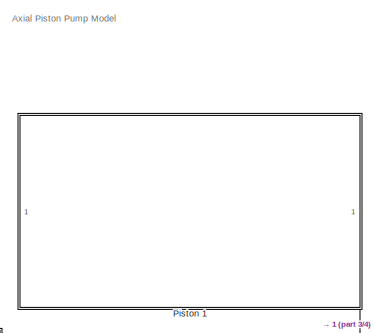
[diagram: root canvas - part 1/4, top right region]
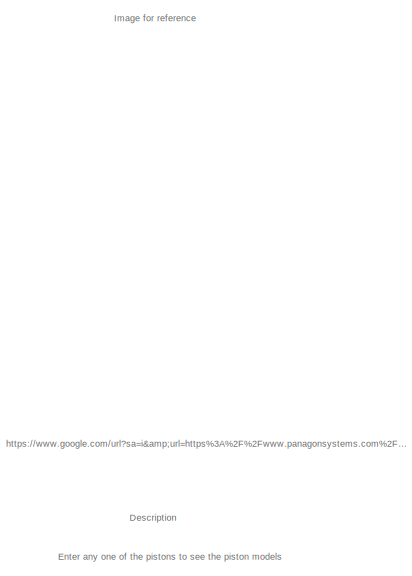
[diagram: root canvas - part 2/4, top left region]
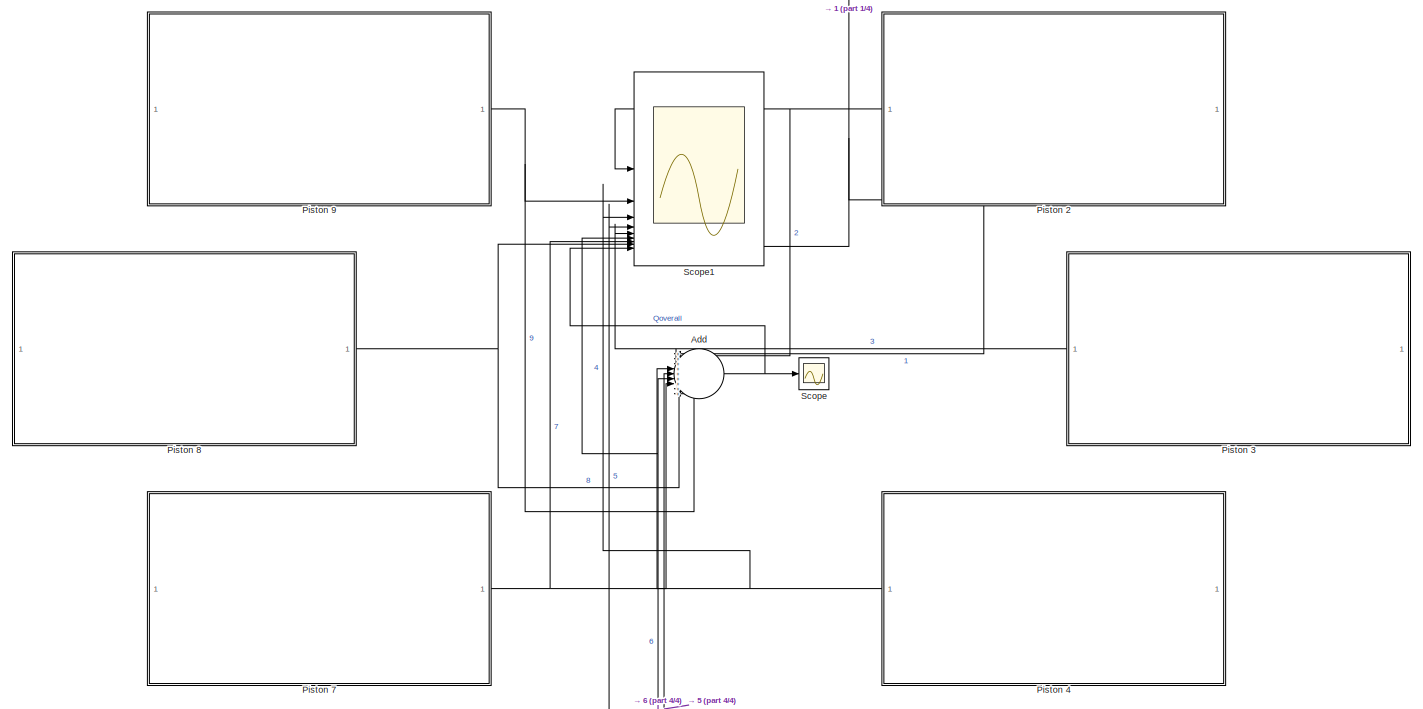
[diagram: root canvas - part 3/4, middle right region]
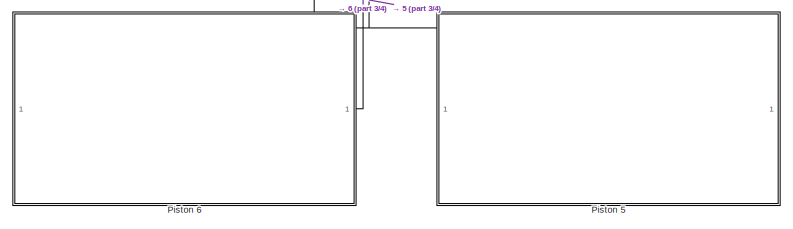
[diagram: root canvas - part 4/4, bottom right region]
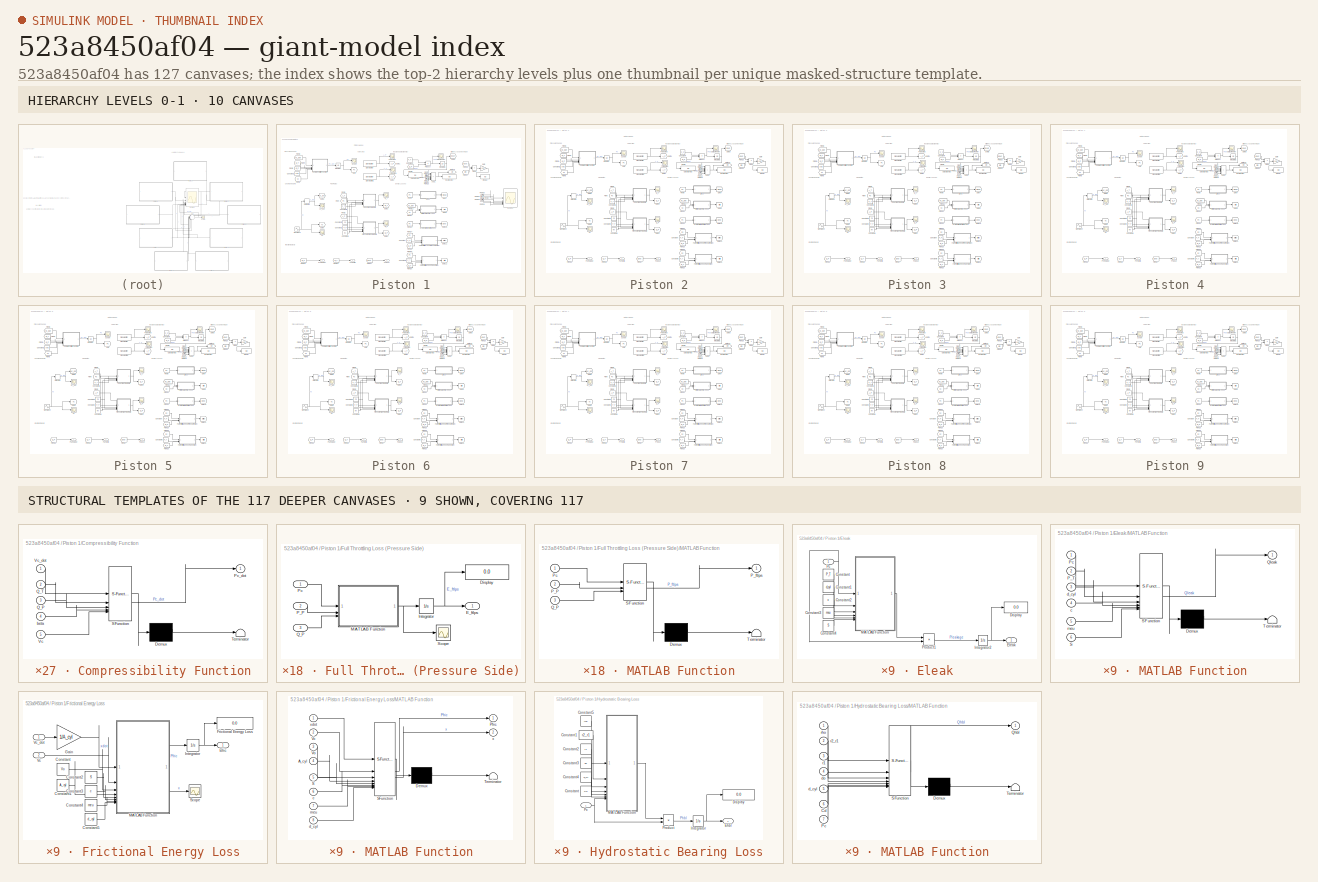
[diagram: thumbnail index - top-2 hierarchy levels (10 canvases) + 9 structural-template representatives of the remaining 117 canvases]
MODEL slx_523a8450af04
KIND model
CONFIG AbsTol = auto
CONFIG EnableMultiTasking = on
CONFIG FixedStep = 1e-8
CONFIG InitFcn = %% Outlet\n% Parameters        \nd_cyl = 8e-3;                                   % Diameter of each piston\nr_p = 20e-3;                                    % Piston pitch radius \nA_cyl = 0.25 * pi * d_cyl^2;                    % Area of each piston\nomega_rpm = 3600;                               % Rotational speed of pump\nomega = (2*pi/60) * omega_rpm;                  % Angular speed of pump\nbeta = ...<+1329ch>
CONFIG MaxStep = auto
CONFIG MinStep = auto
CONFIG RelTol = 1e-3
CONFIG SampleTimeConstraint = Unconstrained
CONFIG SolverName = FixedStepAuto
CONFIG StartTime = 0.0
CONFIG StopTime = t_cycle
BLOCK [Sum] Add
  Inputs = +++++++++
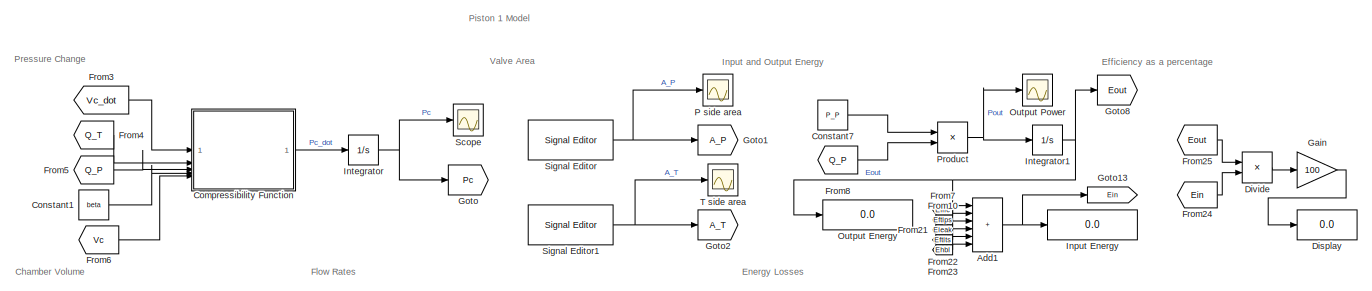
[diagram: Piston 1 - part 1/2, full width, top band]
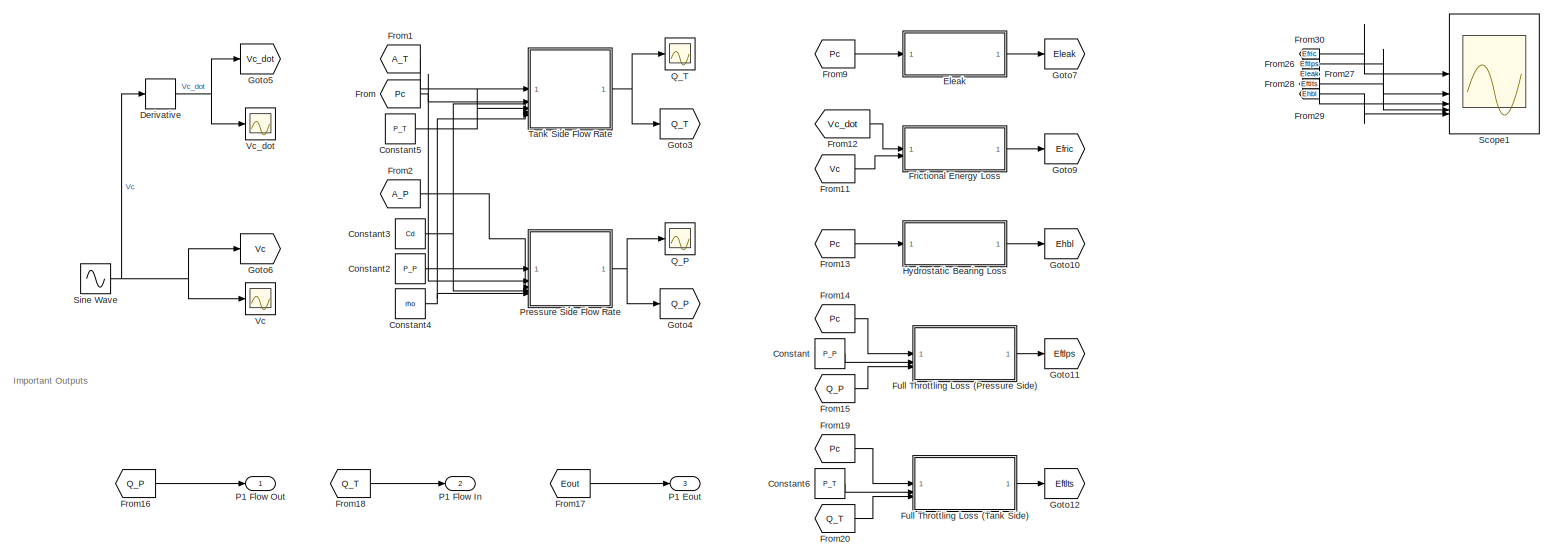
[diagram: Piston 1 - part 2/2, full width, bottom band]
BLOCK [SubSystem] Piston 1
  PortSchema = {"entries":[{"content":{"sides":[{"content":{},"type":"ConnectorPlacement.EquallySpacedRectSide","uuid":"63442bf7-0830-4237-9a0b-f9adcef68f77"},{"content":{"side":"RIGHT"},"type":"ConnectorPlacement.EquallySpacedRectSide","uuid":"c78b6823-6588-400d-8e0d-405a7015a902"},{"content":{"side":"TOP"},"type":"ConnectorPlacement.EquallySpacedRectSide","uuid":"cf447a47-df1d-44f3-9a90-4edf3edff747"},{"conten...<+340ch>
BLOCK [Sum] Piston 1/Add1
  IconShape = rectangular
  Inputs = ++++++
BLOCK [SubSystem] Piston 1/Compressibility Function
  ErrorFcn = Stateflow.Translate.translate
  PermitHierarchicalResolution = ExplicitOnly
  SFBlockType = MATLAB Function
  TreatAsAtomicUnit = on
BLOCK [Demux] Piston 1/Compressibility Function/ Demux 
  Outputs = 1
BLOCK [S-Function] Piston 1/Compressibility Function/ SFunction 
  EnableBusSupport = on
  FunctionName = sf_sfun
  PortCounts = [5 2]
  SFcnIsStateOwnerBlock = off
  SFunctionDeploymentMode = off
  Tag = Stateflow S-Function 2
BLOCK [Terminator] Piston 1/Compressibility Function/ Terminator 
BLOCK [Outport] Piston 1/Compressibility Function/Pc_dot
BLOCK [Inport] Piston 1/Compressibility Function/Q_P
  Port = 3
BLOCK [Inport] Piston 1/Compressibility Function/Q_T
  Port = 2
BLOCK [Inport] Piston 1/Compressibility Function/Vc
  Port = 5
BLOCK [Inport] Piston 1/Compressibility Function/Vc_dot
BLOCK [Inport] Piston 1/Compressibility Function/beta
  Port = 4
BLOCK [Constant] Piston 1/Constant
  Value = P_P
BLOCK [Constant] Piston 1/Constant1
  Value = beta
BLOCK [Constant] Piston 1/Constant2
  Value = P_P
BLOCK [Constant] Piston 1/Constant3
  Value = Cd
BLOCK [Constant] Piston 1/Constant4
  Value = rho
BLOCK [Constant] Piston 1/Constant5
  Value = P_T
BLOCK [Constant] Piston 1/Constant6
  Value = P_T
BLOCK [Constant] Piston 1/Constant7
  Value = P_P
BLOCK [Derivative] Piston 1/Derivative
BLOCK [Display] Piston 1/Display
  Decimation = 1
BLOCK [Product] Piston 1/Divide
  Inputs = */
BLOCK [SubSystem] Piston 1/Eleak
BLOCK [Constant] Piston 1/Eleak/Constant
  Value = P_T
BLOCK [Constant] Piston 1/Eleak/Constant1
  Value = d_cyl
BLOCK [Constant] Piston 1/Eleak/Constant2
  Value = c
BLOCK [Constant] Piston 1/Eleak/Constant3
  Value = meu
BLOCK [Constant] Piston 1/Eleak/Constant4
  Value = S
BLOCK [Display] Piston 1/Eleak/Display
  Decimation = 1
BLOCK [Outport] Piston 1/Eleak/Eleak
BLOCK [Integrator] Piston 1/Eleak/Integrator2
BLOCK [SubSystem] Piston 1/Eleak/MATLAB Function
  ErrorFcn = Stateflow.Translate.translate
  PermitHierarchicalResolution = ExplicitOnly
  SFBlockType = MATLAB Function
  TreatAsAtomicUnit = on
BLOCK [Demux] Piston 1/Eleak/MATLAB Function/ Demux 
  Outputs = 1
BLOCK [S-Function] Piston 1/Eleak/MATLAB Function/ SFunction 
  EnableBusSupport = on
  FunctionName = sf_sfun
  PortCounts = [6 2]
  SFcnIsStateOwnerBlock = off
  SFunctionDeploymentMode = off
  Tag = Stateflow S-Function 4
BLOCK [Terminator] Piston 1/Eleak/MATLAB Function/ Terminator 
BLOCK [Inport] Piston 1/Eleak/MATLAB Function/P_T
  Port = 2
BLOCK [Inport] Piston 1/Eleak/MATLAB Function/Pc
BLOCK [Outport] Piston 1/Eleak/MATLAB Function/Qleak
BLOCK [Inport] Piston 1/Eleak/MATLAB Function/S
  Port = 6
BLOCK [Inport] Piston 1/Eleak/MATLAB Function/c
  Port = 4
BLOCK [Inport] Piston 1/Eleak/MATLAB Function/d_cyl
  Port = 3
BLOCK [Inport] Piston 1/Eleak/MATLAB Function/meu
  Port = 5
BLOCK [Inport] Piston 1/Eleak/Pc
BLOCK [Product] Piston 1/Eleak/Product1
BLOCK [SubSystem] Piston 1/Frictional Energy Loss
BLOCK [Constant] Piston 1/Frictional Energy Loss/Constant
  Value = Vo
BLOCK [Constant] Piston 1/Frictional Energy Loss/Constant1
  Value = A_cyl
BLOCK [Constant] Piston 1/Frictional Energy Loss/Constant2
  Value = S
BLOCK [Constant] Piston 1/Frictional Energy Loss/Constant3
  Value = c
BLOCK [Constant] Piston 1/Frictional Energy Loss/Constant4
  Value = meu
BLOCK [Constant] Piston 1/Frictional Energy Loss/Constant5
  Value = d_cyl
BLOCK [Outport] Piston 1/Frictional Energy Loss/Efric
BLOCK [Display] Piston 1/Frictional Energy Loss/Frictional Energy Loss
  Decimation = 1
BLOCK [Gain] Piston 1/Frictional Energy Loss/Gain
  Gain = 1/A_cyl
BLOCK [Integrator] Piston 1/Frictional Energy Loss/Integrator
BLOCK [SubSystem] Piston 1/Frictional Energy Loss/MATLAB Function
  ErrorFcn = Stateflow.Translate.translate
  PermitHierarchicalResolution = ExplicitOnly
  SFBlockType = MATLAB Function
  TreatAsAtomicUnit = on
BLOCK [Demux] Piston 1/Frictional Energy Loss/MATLAB Function/ Demux 
  Outputs = 1
BLOCK [S-Function] Piston 1/Frictional Energy Loss/MATLAB Function/ SFunction 
  EnableBusSupport = on
  FunctionName = sf_sfun
  PortCounts = [8 3]
  SFcnIsStateOwnerBlock = off
  SFunctionDeploymentMode = off
  Tag = Stateflow S-Function 5
BLOCK [Terminator] Piston 1/Frictional Energy Loss/MATLAB Function/ Terminator 
BLOCK [Inport] Piston 1/Frictional Energy Loss/MATLAB Function/A_cyl
  Port = 4
BLOCK [Outport] Piston 1/Frictional Energy Loss/MATLAB Function/Pfric
BLOCK [Inport] Piston 1/Frictional Energy Loss/MATLAB Function/S
  Port = 5
BLOCK [Inport] Piston 1/Frictional Energy Loss/MATLAB Function/Vc
  Port = 2
BLOCK [Inport] Piston 1/Frictional Energy Loss/MATLAB Function/Vo
  Port = 3
BLOCK [Inport] Piston 1/Frictional Energy Loss/MATLAB Function/c
  Port = 6
BLOCK [Inport] Piston 1/Frictional Energy Loss/MATLAB Function/d_cyl
  Port = 8
BLOCK [Inport] Piston 1/Frictional Energy Loss/MATLAB Function/meu
  Port = 7
BLOCK [Outport] Piston 1/Frictional Energy Loss/MATLAB Function/x
  Port = 2
BLOCK [Inport] Piston 1/Frictional Energy Loss/MATLAB Function/xdot
BLOCK [Scope] Piston 1/Frictional Energy Loss/Scope
  Floating = off
  NumInputPorts = 1
  ScopeSpecificationString = Simulink.scopes.TimeScopeBlockCfg('CurrentConfiguration', extmgr.ConfigurationSet(extmgr.Configuration('Core','General UI',true),extmgr.Configuration('Core','Source UI',true),extmgr.Configuration('Sources','WiredSimulink',true,'DataLoggingVariableName','ScopeData1'),extmgr.Configuration('Visuals','Time Domain',true,'SerializedDisplays',{struct('MinYLimReal','-0.00187','MaxYLimReal','0.01687','YLab...<+1360ch>  <repeated x9 — deduplicated; at blocks: Scope>
BLOCK [Inport] Piston 1/Frictional Energy Loss/Vc
  Port = 2
BLOCK [Inport] Piston 1/Frictional Energy Loss/Vc_dot
BLOCK [From] Piston 1/From
  GotoTag = Pc
BLOCK [From] Piston 1/From1
  GotoTag = A_T
BLOCK [From] Piston 1/From10
  GotoTag = Eftlps
BLOCK [From] Piston 1/From11
  GotoTag = Vc
BLOCK [From] Piston 1/From12
  GotoTag = Vc_dot
BLOCK [From] Piston 1/From13
  GotoTag = Pc
BLOCK [From] Piston 1/From14
  GotoTag = Pc
BLOCK [From] Piston 1/From15
  GotoTag = Q_P
BLOCK [From] Piston 1/From16
  GotoTag = Q_P
BLOCK [From] Piston 1/From17
  GotoTag = Eout
BLOCK [From] Piston 1/From18
  GotoTag = Q_T
BLOCK [From] Piston 1/From19
  GotoTag = Pc
BLOCK [From] Piston 1/From2
  GotoTag = A_P
BLOCK [From] Piston 1/From20
  GotoTag = Q_T
BLOCK [From] Piston 1/From21
  GotoTag = Eleak
BLOCK [From] Piston 1/From22
  GotoTag = Eftlts
BLOCK [From] Piston 1/From23
  GotoTag = Ehbl
BLOCK [From] Piston 1/From24
  GotoTag = Ein
BLOCK [From] Piston 1/From25
  GotoTag = Eout
BLOCK [From] Piston 1/From26
  GotoTag = Eftlps
BLOCK [From] Piston 1/From27
  GotoTag = Eleak
BLOCK [From] Piston 1/From28
  GotoTag = Eftlts
BLOCK [From] Piston 1/From29
  GotoTag = Ehbl
BLOCK [From] Piston 1/From3
  GotoTag = Vc_dot
BLOCK [From] Piston 1/From30
  GotoTag = Efric
BLOCK [From] Piston 1/From4
  GotoTag = Q_T
BLOCK [From] Piston 1/From5
  GotoTag = Q_P
BLOCK [From] Piston 1/From6
  GotoTag = Vc
BLOCK [From] Piston 1/From7
  GotoTag = Efric
BLOCK [From] Piston 1/From8
  GotoTag = Q_P
BLOCK [From] Piston 1/From9
  GotoTag = Pc
BLOCK [SubSystem] Piston 1/Full Throttling Loss (Pressure Side)
BLOCK [Outport] Piston 1/Full Throttling Loss (Pressure Side)/ E_ftlps
BLOCK [Display] Piston 1/Full Throttling Loss (Pressure Side)/Display
  Decimation = 1
BLOCK [Integrator] Piston 1/Full Throttling Loss (Pressure Side)/Integrator
BLOCK [SubSystem] Piston 1/Full Throttling Loss (Pressure Side)/MATLAB Function
  ErrorFcn = Stateflow.Translate.translate
  PermitHierarchicalResolution = ExplicitOnly
  SFBlockType = MATLAB Function
  TreatAsAtomicUnit = on
BLOCK [Demux] Piston 1/Full Throttling Loss (Pressure Side)/MATLAB Function/ Demux 
  Outputs = 1
BLOCK [S-Function] Piston 1/Full Throttling Loss (Pressure Side)/MATLAB Function/ SFunction 
  EnableBusSupport = on
  FunctionName = sf_sfun
  PortCounts = [3 2]
  SFcnIsStateOwnerBlock = off
  SFunctionDeploymentMode = off
  Tag = Stateflow S-Function 7
BLOCK [Terminator] Piston 1/Full Throttling Loss (Pressure Side)/MATLAB Function/ Terminator 
BLOCK [Inport] Piston 1/Full Throttling Loss (Pressure Side)/MATLAB Function/P_P
  Port = 2
BLOCK [Outport] Piston 1/Full Throttling Loss (Pressure Side)/MATLAB Function/P_ftlps
BLOCK [Inport] Piston 1/Full Throttling Loss (Pressure Side)/MATLAB Function/Pc
BLOCK [Inport] Piston 1/Full Throttling Loss (Pressure Side)/MATLAB Function/Q_P
  Port = 3
BLOCK [Inport] Piston 1/Full Throttling Loss (Pressure Side)/P_P
  Port = 2
BLOCK [Inport] Piston 1/Full Throttling Loss (Pressure Side)/Pc
BLOCK [Inport] Piston 1/Full Throttling Loss (Pressure Side)/Q_P
  Port = 3
BLOCK [Scope] Piston 1/Full Throttling Loss (Pressure Side)/Scope
  Floating = off
  NumInputPorts = 1
  ScopeSpecificationString = Simulink.scopes.TimeScopeBlockCfg('CurrentConfiguration', extmgr.ConfigurationSet(extmgr.Configuration('Core','General UI',true),extmgr.Configuration('Core','Source UI',true),extmgr.Configuration('Sources','WiredSimulink',true,'DataLoggingVariableName','ScopeData1'),extmgr.Configuration('Visuals','Time Domain',true,'SerializedDisplays',{struct('MinYLimReal','-706.4352','MaxYLimReal','6357.91684','...<+1390ch>  <repeated x18 — deduplicated; at blocks: Scope>
BLOCK [SubSystem] Piston 1/Full Throttling Loss (Tank Side)
BLOCK [Outport] Piston 1/Full Throttling Loss (Tank Side)/ E_ftlts
BLOCK [Display] Piston 1/Full Throttling Loss (Tank Side)/Display
  Decimation = 1
BLOCK [Integrator] Piston 1/Full Throttling Loss (Tank Side)/Integrator
BLOCK [SubSystem] Piston 1/Full Throttling Loss (Tank Side)/MATLAB Function
  ErrorFcn = Stateflow.Translate.translate
  PermitHierarchicalResolution = ExplicitOnly
  SFBlockType = MATLAB Function
  TreatAsAtomicUnit = on
BLOCK [Demux] Piston 1/Full Throttling Loss (Tank Side)/MATLAB Function/ Demux 
  Outputs = 1
BLOCK [S-Function] Piston 1/Full Throttling Loss (Tank Side)/MATLAB Function/ SFunction 
  EnableBusSupport = on
  FunctionName = sf_sfun
  PortCounts = [3 2]
  SFcnIsStateOwnerBlock = off
  SFunctionDeploymentMode = off
  Tag = Stateflow S-Function 8
BLOCK [Terminator] Piston 1/Full Throttling Loss (Tank Side)/MATLAB Function/ Terminator 
BLOCK [Inport] Piston 1/Full Throttling Loss (Tank Side)/MATLAB Function/P_T
BLOCK [Outport] Piston 1/Full Throttling Loss (Tank Side)/MATLAB Function/P_ftlts
BLOCK [Inport] Piston 1/Full Throttling Loss (Tank Side)/MATLAB Function/Pc
  Port = 2
BLOCK [Inport] Piston 1/Full Throttling Loss (Tank Side)/MATLAB Function/Q_T
  Port = 3
BLOCK [Inport] Piston 1/Full Throttling Loss (Tank Side)/P_T
  Port = 2
BLOCK [Inport] Piston 1/Full Throttling Loss (Tank Side)/Pc
BLOCK [Inport] Piston 1/Full Throttling Loss (Tank Side)/Q_T
  Port = 3
BLOCK [Scope] Piston 1/Full Throttling Loss (Tank Side)/Scope
  Floating = off
  NumInputPorts = 1
BLOCK [Gain] Piston 1/Gain
  Gain = 100
BLOCK [Goto] Piston 1/Goto
  GotoTag = Pc
BLOCK [Goto] Piston 1/Goto1
  GotoTag = A_P
BLOCK [Goto] Piston 1/Goto10
  GotoTag = Ehbl
BLOCK [Goto] Piston 1/Goto11
  GotoTag = Eftlps
BLOCK [Goto] Piston 1/Goto12
  GotoTag = Eftlts
BLOCK [Goto] Piston 1/Goto13
  GotoTag = Ein
BLOCK [Goto] Piston 1/Goto2
  GotoTag = A_T
BLOCK [Goto] Piston 1/Goto3
  GotoTag = Q_T
BLOCK [Goto] Piston 1/Goto4
  GotoTag = Q_P
BLOCK [Goto] Piston 1/Goto5
  GotoTag = Vc_dot
BLOCK [Goto] Piston 1/Goto6
  GotoTag = Vc
BLOCK [Goto] Piston 1/Goto7
  GotoTag = Eleak
BLOCK [Goto] Piston 1/Goto8
  GotoTag = Eout
BLOCK [Goto] Piston 1/Goto9
  GotoTag = Efric
BLOCK [SubSystem] Piston 1/Hydrostatic Bearing Loss
BLOCK [Constant] Piston 1/Hydrostatic Bearing Loss/Constant
  Value = Cd
BLOCK [Constant] Piston 1/Hydrostatic Bearing Loss/Constant1
  Value = r2_r1
BLOCK [Constant] Piston 1/Hydrostatic Bearing Loss/Constant2
  Value = r1
BLOCK [Constant] Piston 1/Hydrostatic Bearing Loss/Constant3
  Value = do
BLOCK [Constant] Piston 1/Hydrostatic Bearing Loss/Constant4
  Value = d_cyl
BLOCK [Constant] Piston 1/Hydrostatic Bearing Loss/Constant5
  Value = rho
BLOCK [Display] Piston 1/Hydrostatic Bearing Loss/Display
  Decimation = 1
BLOCK [Outport] Piston 1/Hydrostatic Bearing Loss/Ehbl
BLOCK [Integrator] Piston 1/Hydrostatic Bearing Loss/Integrator
BLOCK [SubSystem] Piston 1/Hydrostatic Bearing Loss/MATLAB Function
  ErrorFcn = Stateflow.Translate.translate
  PermitHierarchicalResolution = ExplicitOnly
  SFBlockType = MATLAB Function
  TreatAsAtomicUnit = on
BLOCK [Demux] Piston 1/Hydrostatic Bearing Loss/MATLAB Function/ Demux 
  Outputs = 1
BLOCK [S-Function] Piston 1/Hydrostatic Bearing Loss/MATLAB Function/ SFunction 
  EnableBusSupport = on
  FunctionName = sf_sfun
  PortCounts = [7 2]
  SFcnIsStateOwnerBlock = off
  SFunctionDeploymentMode = off
  Tag = Stateflow S-Function 6
BLOCK [Terminator] Piston 1/Hydrostatic Bearing Loss/MATLAB Function/ Terminator 
BLOCK [Inport] Piston 1/Hydrostatic Bearing Loss/MATLAB Function/Cd
  Port = 6
BLOCK [Inport] Piston 1/Hydrostatic Bearing Loss/MATLAB Function/Pc
  Port = 7
BLOCK [Outport] Piston 1/Hydrostatic Bearing Loss/MATLAB Function/Qhbl
BLOCK [Inport] Piston 1/Hydrostatic Bearing Loss/MATLAB Function/d_cyl
  Port = 5
BLOCK [Inport] Piston 1/Hydrostatic Bearing Loss/MATLAB Function/do
  Port = 4
BLOCK [Inport] Piston 1/Hydrostatic Bearing Loss/MATLAB Function/r1
  Port = 3
BLOCK [Inport] Piston 1/Hydrostatic Bearing Loss/MATLAB Function/r2_r1
  Port = 2
BLOCK [Inport] Piston 1/Hydrostatic Bearing Loss/MATLAB Function/rho
BLOCK [Inport] Piston 1/Hydrostatic Bearing Loss/Pc
BLOCK [Product] Piston 1/Hydrostatic Bearing Loss/Product
BLOCK [Display] Piston 1/Input Energy
  Decimation = 1
BLOCK [Integrator] Piston 1/Integrator
  InitialCondition = -2.0291e6
  LowerSaturationLimit = 0
BLOCK [Integrator] Piston 1/Integrator1
BLOCK [Display] Piston 1/Output Energy
  Decimation = 1
BLOCK [Scope] Piston 1/Output Power
  Floating = off
  NumInputPorts = 1
  ScopeSpecificationString = Simulink.scopes.TimeScopeBlockCfg('CurrentConfiguration', extmgr.ConfigurationSet(extmgr.Configuration('Core','General UI',true),extmgr.Configuration('Core','Source UI',true),extmgr.Configuration('Sources','WiredSimulink',true,'DataLoggingVariableName','ScopeData1'),extmgr.Configuration('Visuals','Time Domain',true,'SerializedDisplays',{struct('MinYLimReal','-8608.44105','MaxYLimReal','4274.20459'...<+1412ch>
BLOCK [Scope] Piston 1/P side area
  Floating = off
  NumInputPorts = 1
  ScopeSpecificationString = Simulink.scopes.TimeScopeBlockCfg('CurrentConfiguration', extmgr.ConfigurationSet(extmgr.Configuration('Core','General UI',true,'FigureColor',[1 1 1]),extmgr.Configuration('Core','Source UI',true),extmgr.Configuration('Sources','WiredSimulink',true),extmgr.Configuration('Visuals','Time Domain',true,'SerializedDisplays',{struct('MinYLimReal','-0.000006','MaxYLimReal','0.000057','YLabelReal','','Min...<+1566ch>  <repeated x7 — deduplicated; at blocks: P side area>
BLOCK [Outport] Piston 1/P1 Eout
  Port = 3
BLOCK [Outport] Piston 1/P1 Flow In
  Port = 2
BLOCK [Outport] Piston 1/P1 Flow Out
BLOCK [SubSystem] Piston 1/Pressure Side Flow Rate
  ErrorFcn = Stateflow.Translate.translate
  PermitHierarchicalResolution = ExplicitOnly
  SFBlockType = MATLAB Function
  TreatAsAtomicUnit = on
BLOCK [Demux] Piston 1/Pressure Side Flow Rate/ Demux 
  Outputs = 1
BLOCK [S-Function] Piston 1/Pressure Side Flow Rate/ SFunction 
  EnableBusSupport = on
  FunctionName = sf_sfun
  PortCounts = [5 2]
  SFcnIsStateOwnerBlock = off
  SFunctionDeploymentMode = off
  Tag = Stateflow S-Function 3
BLOCK [Terminator] Piston 1/Pressure Side Flow Rate/ Terminator 
BLOCK [Inport] Piston 1/Pressure Side Flow Rate/A_P
BLOCK [Inport] Piston 1/Pressure Side Flow Rate/Cd
  Port = 4
BLOCK [Inport] Piston 1/Pressure Side Flow Rate/P_P
  Port = 3
BLOCK [Inport] Piston 1/Pressure Side Flow Rate/Pc
  Port = 2
BLOCK [Outport] Piston 1/Pressure Side Flow Rate/Q_P
BLOCK [Inport] Piston 1/Pressure Side Flow Rate/rho
  Port = 5
BLOCK [Product] Piston 1/Product
BLOCK [Scope] Piston 1/Q_P
  Floating = off
  NumInputPorts = 1
  ScopeSpecificationString = Simulink.scopes.TimeScopeBlockCfg('CurrentConfiguration', extmgr.ConfigurationSet(extmgr.Configuration('Core','General UI',true,'FigureColor',[1 1 1]),extmgr.Configuration('Core','Source UI',true),extmgr.Configuration('Sources','WiredSimulink',true,'DataLoggingVariableName','ScopeData4'),extmgr.Configuration('Visuals','Time Domain',true,'SerializedDisplays',{struct('MinYLimReal','-0.00061','MaxYLi...<+1573ch>
BLOCK [Scope] Piston 1/Q_T
  Floating = off
  NumInputPorts = 1
  ScopeSpecificationString = Simulink.scopes.TimeScopeBlockCfg('CurrentConfiguration', extmgr.ConfigurationSet(extmgr.Configuration('Core','General UI',true,'FigureColor',[1 1 1]),extmgr.Configuration('Core','Source UI',true),extmgr.Configuration('Sources','WiredSimulink',true,'DataLoggingVariableName','ScopeData3'),extmgr.Configuration('Visuals','Time Domain',true,'SerializedDisplays',{struct('MinYLimReal','-0.00044','MaxYLi...<+1569ch>
BLOCK [Scope] Piston 1/Scope
  Floating = off
  NumInputPorts = 1
  ScopeSpecificationString = Simulink.scopes.TimeScopeBlockCfg('CurrentConfiguration', extmgr.ConfigurationSet(extmgr.Configuration('Core','General UI',true,'FigureColor',[1 1 1]),extmgr.Configuration('Core','Source UI',true),extmgr.Configuration('Sources','WiredSimulink',true,'DataLoggingVariableName','ScopeData1'),extmgr.Configuration('Visuals','Time Domain',true,'SerializedDisplays',{struct('MinYLimReal','-2029142.80315','...<+1616ch>
BLOCK [Scope] Piston 1/Scope1
  Floating = off
  NumInputPorts = 5
  ScopeSpecificationString = Simulink.scopes.TimeScopeBlockCfg('CurrentConfiguration', extmgr.ConfigurationSet(extmgr.Configuration('Core','General UI',true),extmgr.Configuration('Core','Source UI',true),extmgr.Configuration('Sources','WiredSimulink',true,'DataLoggingVariableName','ScopeData1'),extmgr.Configuration('Visuals','Time Domain',true,'SerializedDisplays',{struct('MinYLimReal','-0.02544','MaxYLimReal','0.22895','YLab...<+1466ch>
BLOCK [Reference] Piston 1/Signal Editor  REF=SignalEditorBlockLib/Signal Editor
  LibrarySourceBlock = simulink/Sources/Signal Editor
  SourceBlock = SignalEditorBlockLib/Signal Editor
  SourceType = SignalEditor
  UserDataPersistent = on
BLOCK [Reference] Piston 1/Signal Editor1  REF=SignalEditorBlockLib/Signal Editor
  LibrarySourceBlock = simulink/Sources/Signal Editor
  SourceBlock = SignalEditorBlockLib/Signal Editor
  SourceType = SignalEditor
  UserDataPersistent = on
BLOCK [Sin] Piston 1/Sine Wave
  Amplitude = Vdisp/2
  Bias = Vo + (Vdisp/2)
  Frequency = omega
  Phase = pi/2
  SampleTime = 0
BLOCK [Scope] Piston 1/T side area
  Floating = off
  NumInputPorts = 1
  ScopeSpecificationString = Simulink.scopes.TimeScopeBlockCfg('CurrentConfiguration', extmgr.ConfigurationSet(extmgr.Configuration('Core','General UI',true,'FigureColor',[1 1 1]),extmgr.Configuration('Core','Source UI',true),extmgr.Configuration('Sources','WiredSimulink',true,'DataLoggingVariableName','ScopeData2'),extmgr.Configuration('Visuals','Time Domain',true,'SerializedDisplays',{struct('MinYLimReal','0.0000284','MaxYL...<+1567ch>
BLOCK [SubSystem] Piston 1/Tank Side Flow Rate
  ErrorFcn = Stateflow.Translate.translate
  PermitHierarchicalResolution = ExplicitOnly
  SFBlockType = MATLAB Function
  TreatAsAtomicUnit = on
BLOCK [Demux] Piston 1/Tank Side Flow Rate/ Demux 
  Outputs = 1
BLOCK [S-Function] Piston 1/Tank Side Flow Rate/ SFunction 
  EnableBusSupport = on
  FunctionName = sf_sfun
  PortCounts = [5 2]
  SFcnIsStateOwnerBlock = off
  SFunctionDeploymentMode = off
  Tag = Stateflow S-Function 1
BLOCK [Terminator] Piston 1/Tank Side Flow Rate/ Terminator 
BLOCK [Inport] Piston 1/Tank Side Flow Rate/A_T
BLOCK [Inport] Piston 1/Tank Side Flow Rate/Cd
  Port = 4
BLOCK [Inport] Piston 1/Tank Side Flow Rate/P_T
  Port = 3
BLOCK [Inport] Piston 1/Tank Side Flow Rate/Pc
  Port = 2
BLOCK [Outport] Piston 1/Tank Side Flow Rate/Q_T
BLOCK [Inport] Piston 1/Tank Side Flow Rate/rho
  Port = 5
BLOCK [Scope] Piston 1/Vc
  Floating = off
  NumInputPorts = 1
  ScopeSpecificationString = Simulink.scopes.TimeScopeBlockCfg('CurrentConfiguration', extmgr.ConfigurationSet(extmgr.Configuration('Core','General UI',true),extmgr.Configuration('Core','Source UI',true),extmgr.Configuration('Sources','WiredSimulink',true,'DataLoggingVariableName','ScopeData1'),extmgr.Configuration('Visuals','Time Domain',true,'SerializedDisplays',{struct('MinYLimReal','0.00000066','MaxYLimReal','0.0000016','...<+1406ch>  <repeated x9 — deduplicated; at blocks: Vc>
BLOCK [Scope] Piston 1/Vc_dot
  Floating = off
  NumInputPorts = 1
  ScopeSpecificationString = Simulink.scopes.TimeScopeBlockCfg('CurrentConfiguration', extmgr.ConfigurationSet(extmgr.Configuration('Core','General UI',true),extmgr.Configuration('Core','Source UI',true),extmgr.Configuration('Sources','WiredSimulink',true,'DataLoggingVariableName','ScopeData2'),extmgr.Configuration('Visuals','Time Domain',true,'SerializedDisplays',{struct('MinYLimReal','-0.00018','MaxYLimReal','0.00018','YLab...<+1392ch>  <repeated x9 — deduplicated; at blocks: Vc_dot>
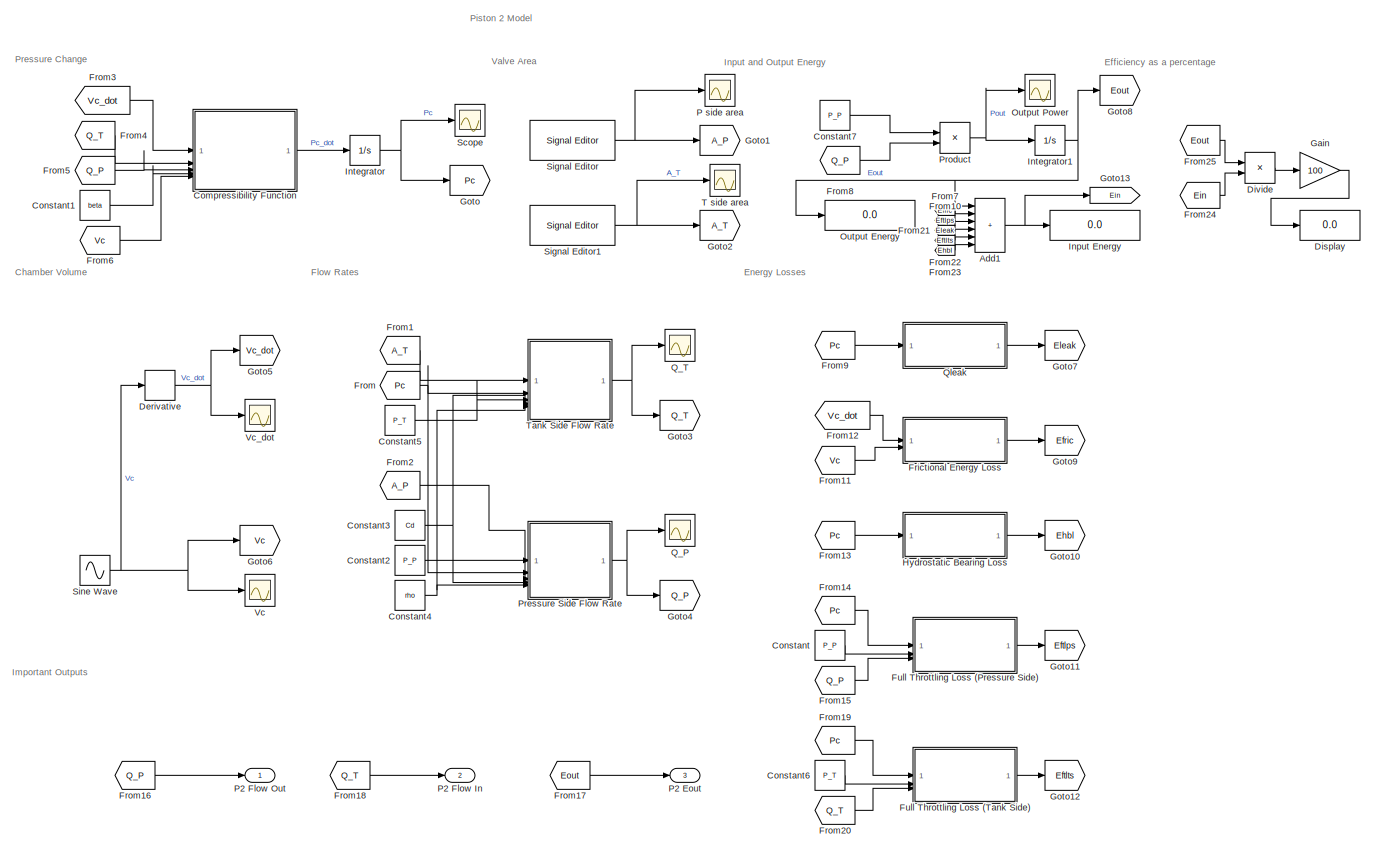
[diagram: Piston 2 - part 1/1, most of the canvas]
BLOCK [SubSystem] Piston 2
BLOCK [Sum] Piston 2/Add1
  IconShape = rectangular
  Inputs = ++++++
BLOCK [SubSystem] Piston 2/Compressibility Function
  ErrorFcn = Stateflow.Translate.translate
  PermitHierarchicalResolution = ExplicitOnly
  SFBlockType = MATLAB Function
  TreatAsAtomicUnit = on
BLOCK [Demux] Piston 2/Compressibility Function/ Demux 
  Outputs = 1
BLOCK [S-Function] Piston 2/Compressibility Function/ SFunction 
  EnableBusSupport = on
  FunctionName = sf_sfun
  PortCounts = [5 2]
  SFcnIsStateOwnerBlock = off
  SFunctionDeploymentMode = off
  Tag = Stateflow S-Function 9
BLOCK [Terminator] Piston 2/Compressibility Function/ Terminator 
BLOCK [Outport] Piston 2/Compressibility Function/Pc_dot
BLOCK [Inport] Piston 2/Compressibility Function/Q_P
  Port = 3
BLOCK [Inport] Piston 2/Compressibility Function/Q_T
  Port = 2
BLOCK [Inport] Piston 2/Compressibility Function/Vc
  Port = 5
BLOCK [Inport] Piston 2/Compressibility Function/Vc_dot
BLOCK [Inport] Piston 2/Compressibility Function/beta
  Port = 4
BLOCK [Constant] Piston 2/Constant
  Value = P_P
BLOCK [Constant] Piston 2/Constant1
  Value = beta
BLOCK [Constant] Piston 2/Constant2
  Value = P_P
BLOCK [Constant] Piston 2/Constant3
  Value = Cd
BLOCK [Constant] Piston 2/Constant4
  Value = rho
BLOCK [Constant] Piston 2/Constant5
  Value = P_T
BLOCK [Constant] Piston 2/Constant6
  Value = P_T
BLOCK [Constant] Piston 2/Constant7
  Value = P_P
BLOCK [Derivative] Piston 2/Derivative
BLOCK [Display] Piston 2/Display
  Decimation = 1
BLOCK [Product] Piston 2/Divide
  Inputs = */
BLOCK [SubSystem] Piston 2/Frictional Energy Loss
BLOCK [Constant] Piston 2/Frictional Energy Loss/Constant
  Value = Vo
BLOCK [Constant] Piston 2/Frictional Energy Loss/Constant1
  Value = A_cyl
BLOCK [Constant] Piston 2/Frictional Energy Loss/Constant2
  Value = S
BLOCK [Constant] Piston 2/Frictional Energy Loss/Constant3
  Value = c
BLOCK [Constant] Piston 2/Frictional Energy Loss/Constant4
  Value = meu
BLOCK [Constant] Piston 2/Frictional Energy Loss/Constant5
  Value = d_cyl
BLOCK [Outport] Piston 2/Frictional Energy Loss/Efric
BLOCK [Display] Piston 2/Frictional Energy Loss/Frictional Energy Loss
  Decimation = 1
BLOCK [Gain] Piston 2/Frictional Energy Loss/Gain
  Gain = 1/A_cyl
BLOCK [Integrator] Piston 2/Frictional Energy Loss/Integrator
BLOCK [SubSystem] Piston 2/Frictional Energy Loss/MATLAB Function
  ErrorFcn = Stateflow.Translate.translate
  PermitHierarchicalResolution = ExplicitOnly
  SFBlockType = MATLAB Function
  TreatAsAtomicUnit = on
BLOCK [Demux] Piston 2/Frictional Energy Loss/MATLAB Function/ Demux 
  Outputs = 1
BLOCK [S-Function] Piston 2/Frictional Energy Loss/MATLAB Function/ SFunction 
  EnableBusSupport = on
  FunctionName = sf_sfun
  PortCounts = [8 3]
  SFcnIsStateOwnerBlock = off
  SFunctionDeploymentMode = off
  Tag = Stateflow S-Function 10
BLOCK [Terminator] Piston 2/Frictional Energy Loss/MATLAB Function/ Terminator 
BLOCK [Inport] Piston 2/Frictional Energy Loss/MATLAB Function/A_cyl
  Port = 4
BLOCK [Outport] Piston 2/Frictional Energy Loss/MATLAB Function/Pfric
BLOCK [Inport] Piston 2/Frictional Energy Loss/MATLAB Function/S
  Port = 5
BLOCK [Inport] Piston 2/Frictional Energy Loss/MATLAB Function/Vc
  Port = 2
BLOCK [Inport] Piston 2/Frictional Energy Loss/MATLAB Function/Vo
  Port = 3
BLOCK [Inport] Piston 2/Frictional Energy Loss/MATLAB Function/c
  Port = 6
BLOCK [Inport] Piston 2/Frictional Energy Loss/MATLAB Function/d_cyl
  Port = 8
BLOCK [Inport] Piston 2/Frictional Energy Loss/MATLAB Function/meu
  Port = 7
BLOCK [Outport] Piston 2/Frictional Energy Loss/MATLAB Function/x
  Port = 2
BLOCK [Inport] Piston 2/Frictional Energy Loss/MATLAB Function/xdot
BLOCK [Scope] Piston 2/Frictional Energy Loss/Scope
  Floating = off
  NumInputPorts = 1
BLOCK [Inport] Piston 2/Frictional Energy Loss/Vc
  Port = 2
BLOCK [Inport] Piston 2/Frictional Energy Loss/Vc_dot
BLOCK [From] Piston 2/From
  GotoTag = Pc
BLOCK [From] Piston 2/From1
  GotoTag = A_T
BLOCK [From] Piston 2/From10
  GotoTag = Eftlps
BLOCK [From] Piston 2/From11
  GotoTag = Vc
BLOCK [From] Piston 2/From12
  GotoTag = Vc_dot
BLOCK [From] Piston 2/From13
  GotoTag = Pc
BLOCK [From] Piston 2/From14
  GotoTag = Pc
BLOCK [From] Piston 2/From15
  GotoTag = Q_P
BLOCK [From] Piston 2/From16
  GotoTag = Q_P
BLOCK [From] Piston 2/From17
  GotoTag = Eout
BLOCK [From] Piston 2/From18
  GotoTag = Q_T
BLOCK [From] Piston 2/From19
  GotoTag = Pc
BLOCK [From] Piston 2/From2
  GotoTag = A_P
BLOCK [From] Piston 2/From20
  GotoTag = Q_T
BLOCK [From] Piston 2/From21
  GotoTag = Eleak
BLOCK [From] Piston 2/From22
  GotoTag = Eftlts
BLOCK [From] Piston 2/From23
  GotoTag = Ehbl
BLOCK [From] Piston 2/From24
  GotoTag = Ein
BLOCK [From] Piston 2/From25
  GotoTag = Eout
BLOCK [From] Piston 2/From3
  GotoTag = Vc_dot
BLOCK [From] Piston 2/From4
  GotoTag = Q_T
BLOCK [From] Piston 2/From5
  GotoTag = Q_P
BLOCK [From] Piston 2/From6
  GotoTag = Vc
BLOCK [From] Piston 2/From7
  GotoTag = Efric
BLOCK [From] Piston 2/From8
  GotoTag = Q_P
BLOCK [From] Piston 2/From9
  GotoTag = Pc
BLOCK [SubSystem] Piston 2/Full Throttling Loss (Pressure Side)
BLOCK [Outport] Piston 2/Full Throttling Loss (Pressure Side)/ E_ftlps
BLOCK [Display] Piston 2/Full Throttling Loss (Pressure Side)/Display
  Decimation = 1
BLOCK [Integrator] Piston 2/Full Throttling Loss (Pressure Side)/Integrator
BLOCK [SubSystem] Piston 2/Full Throttling Loss (Pressure Side)/MATLAB Function
  ErrorFcn = Stateflow.Translate.translate
  PermitHierarchicalResolution = ExplicitOnly
  SFBlockType = MATLAB Function
  TreatAsAtomicUnit = on
BLOCK [Demux] Piston 2/Full Throttling Loss (Pressure Side)/MATLAB Function/ Demux 
  Outputs = 1
BLOCK [S-Function] Piston 2/Full Throttling Loss (Pressure Side)/MATLAB Function/ SFunction 
  EnableBusSupport = on
  FunctionName = sf_sfun
  PortCounts = [3 2]
  SFcnIsStateOwnerBlock = off
  SFunctionDeploymentMode = off
  Tag = Stateflow S-Function 11
BLOCK [Terminator] Piston 2/Full Throttling Loss (Pressure Side)/MATLAB Function/ Terminator 
BLOCK [Inport] Piston 2/Full Throttling Loss (Pressure Side)/MATLAB Function/P_P
  Port = 2
BLOCK [Outport] Piston 2/Full Throttling Loss (Pressure Side)/MATLAB Function/P_ftlps
BLOCK [Inport] Piston 2/Full Throttling Loss (Pressure Side)/MATLAB Function/Pc
BLOCK [Inport] Piston 2/Full Throttling Loss (Pressure Side)/MATLAB Function/Q_P
  Port = 3
BLOCK [Inport] Piston 2/Full Throttling Loss (Pressure Side)/P_P
  Port = 2
BLOCK [Inport] Piston 2/Full Throttling Loss (Pressure Side)/Pc
BLOCK [Inport] Piston 2/Full Throttling Loss (Pressure Side)/Q_P
  Port = 3
BLOCK [Scope] Piston 2/Full Throttling Loss (Pressure Side)/Scope
  Floating = off
  NumInputPorts = 1
BLOCK [SubSystem] Piston 2/Full Throttling Loss (Tank Side)
BLOCK [Outport] Piston 2/Full Throttling Loss (Tank Side)/ E_ftlts
BLOCK [Display] Piston 2/Full Throttling Loss (Tank Side)/Display
  Decimation = 1
BLOCK [Integrator] Piston 2/Full Throttling Loss (Tank Side)/Integrator
BLOCK [SubSystem] Piston 2/Full Throttling Loss (Tank Side)/MATLAB Function
  ErrorFcn = Stateflow.Translate.translate
  PermitHierarchicalResolution = ExplicitOnly
  SFBlockType = MATLAB Function
  TreatAsAtomicUnit = on
BLOCK [Demux] Piston 2/Full Throttling Loss (Tank Side)/MATLAB Function/ Demux 
  Outputs = 1
BLOCK [S-Function] Piston 2/Full Throttling Loss (Tank Side)/MATLAB Function/ SFunction 
  EnableBusSupport = on
  FunctionName = sf_sfun
  PortCounts = [3 2]
  SFcnIsStateOwnerBlock = off
  SFunctionDeploymentMode = off
  Tag = Stateflow S-Function 12
BLOCK [Terminator] Piston 2/Full Throttling Loss (Tank Side)/MATLAB Function/ Terminator 
BLOCK [Inport] Piston 2/Full Throttling Loss (Tank Side)/MATLAB Function/P_T
BLOCK [Outport] Piston 2/Full Throttling Loss (Tank Side)/MATLAB Function/P_ftlts
BLOCK [Inport] Piston 2/Full Throttling Loss (Tank Side)/MATLAB Function/Pc
  Port = 2
BLOCK [Inport] Piston 2/Full Throttling Loss (Tank Side)/MATLAB Function/Q_T
  Port = 3
BLOCK [Inport] Piston 2/Full Throttling Loss (Tank Side)/P_T
  Port = 2
BLOCK [Inport] Piston 2/Full Throttling Loss (Tank Side)/Pc
BLOCK [Inport] Piston 2/Full Throttling Loss (Tank Side)/Q_T
  Port = 3
BLOCK [Scope] Piston 2/Full Throttling Loss (Tank Side)/Scope
  Floating = off
  NumInputPorts = 1
BLOCK [Gain] Piston 2/Gain
  Gain = 100
BLOCK [Goto] Piston 2/Goto
  GotoTag = Pc
BLOCK [Goto] Piston 2/Goto1
  GotoTag = A_P
BLOCK [Goto] Piston 2/Goto10
  GotoTag = Ehbl
BLOCK [Goto] Piston 2/Goto11
  GotoTag = Eftlps
BLOCK [Goto] Piston 2/Goto12
  GotoTag = Eftlts
BLOCK [Goto] Piston 2/Goto13
  GotoTag = Ein
BLOCK [Goto] Piston 2/Goto2
  GotoTag = A_T
BLOCK [Goto] Piston 2/Goto3
  GotoTag = Q_T
BLOCK [Goto] Piston 2/Goto4
  GotoTag = Q_P
BLOCK [Goto] Piston 2/Goto5
  GotoTag = Vc_dot
BLOCK [Goto] Piston 2/Goto6
  GotoTag = Vc
BLOCK [Goto] Piston 2/Goto7
  GotoTag = Eleak
BLOCK [Goto] Piston 2/Goto8
  GotoTag = Eout
BLOCK [Goto] Piston 2/Goto9
  GotoTag = Efric
BLOCK [SubSystem] Piston 2/Hydrostatic Bearing Loss
BLOCK [Constant] Piston 2/Hydrostatic Bearing Loss/Constant
  Value = Cd
BLOCK [Constant] Piston 2/Hydrostatic Bearing Loss/Constant1
  Value = r2_r1
BLOCK [Constant] Piston 2/Hydrostatic Bearing Loss/Constant2
  Value = r1
BLOCK [Constant] Piston 2/Hydrostatic Bearing Loss/Constant3
  Value = do
BLOCK [Constant] Piston 2/Hydrostatic Bearing Loss/Constant4
  Value = d_cyl
BLOCK [Constant] Piston 2/Hydrostatic Bearing Loss/Constant5
  Value = rho
BLOCK [Display] Piston 2/Hydrostatic Bearing Loss/Display
  Decimation = 1
BLOCK [Outport] Piston 2/Hydrostatic Bearing Loss/Ehbl
BLOCK [Integrator] Piston 2/Hydrostatic Bearing Loss/Integrator
BLOCK [SubSystem] Piston 2/Hydrostatic Bearing Loss/MATLAB Function
  ErrorFcn = Stateflow.Translate.translate
  PermitHierarchicalResolution = ExplicitOnly
  SFBlockType = MATLAB Function
  TreatAsAtomicUnit = on
BLOCK [Demux] Piston 2/Hydrostatic Bearing Loss/MATLAB Function/ Demux 
  Outputs = 1
BLOCK [S-Function] Piston 2/Hydrostatic Bearing Loss/MATLAB Function/ SFunction 
  EnableBusSupport = on
  FunctionName = sf_sfun
  PortCounts = [7 2]
  SFcnIsStateOwnerBlock = off
  SFunctionDeploymentMode = off
  Tag = Stateflow S-Function 13
BLOCK [Terminator] Piston 2/Hydrostatic Bearing Loss/MATLAB Function/ Terminator 
BLOCK [Inport] Piston 2/Hydrostatic Bearing Loss/MATLAB Function/Cd
  Port = 6
BLOCK [Inport] Piston 2/Hydrostatic Bearing Loss/MATLAB Function/Pc
  Port = 7
BLOCK [Outport] Piston 2/Hydrostatic Bearing Loss/MATLAB Function/Qhbl
BLOCK [Inport] Piston 2/Hydrostatic Bearing Loss/MATLAB Function/d_cyl
  Port = 5
BLOCK [Inport] Piston 2/Hydrostatic Bearing Loss/MATLAB Function/do
  Port = 4
BLOCK [Inport] Piston 2/Hydrostatic Bearing Loss/MATLAB Function/r1
  Port = 3
BLOCK [Inport] Piston 2/Hydrostatic Bearing Loss/MATLAB Function/r2_r1
  Port = 2
BLOCK [Inport] Piston 2/Hydrostatic Bearing Loss/MATLAB Function/rho
BLOCK [Inport] Piston 2/Hydrostatic Bearing Loss/Pc
BLOCK [Product] Piston 2/Hydrostatic Bearing Loss/Product
BLOCK [Display] Piston 2/Input Energy
  Decimation = 1
BLOCK [Integrator] Piston 2/Integrator
  InitialCondition = P_T
BLOCK [Integrator] Piston 2/Integrator1
BLOCK [Display] Piston 2/Output Energy
  Decimation = 1
BLOCK [Scope] Piston 2/Output Power
  Floating = off
  NumInputPorts = 1
  ScopeSpecificationString = Simulink.scopes.TimeScopeBlockCfg('CurrentConfiguration', extmgr.ConfigurationSet(extmgr.Configuration('Core','General UI',true),extmgr.Configuration('Core','Source UI',true),extmgr.Configuration('Sources','WiredSimulink',true,'DataLoggingVariableName','ScopeData2'),extmgr.Configuration('Visuals','Time Domain',true,'SerializedDisplays',{struct('MinYLimReal','-8608.44105','MaxYLimReal','4274.20459'...<+1412ch>
BLOCK [Scope] Piston 2/P side area
  Floating = off
  NumInputPorts = 1
  ScopeSpecificationString = Simulink.scopes.TimeScopeBlockCfg('CurrentConfiguration', extmgr.ConfigurationSet(extmgr.Configuration('Core','General UI',true,'FigureColor',[1 1 1]),extmgr.Configuration('Core','Source UI',true),extmgr.Configuration('Sources','WiredSimulink',true),extmgr.Configuration('Visuals','Time Domain',true,'SerializedDisplays',{struct('MinYLimReal','-0.000006','MaxYLimReal','0.000057','YLabelReal','','Min...<+1576ch>
BLOCK [Outport] Piston 2/P2 Eout
  Port = 3
BLOCK [Outport] Piston 2/P2 Flow In
  Port = 2
BLOCK [Outport] Piston 2/P2 Flow Out
BLOCK [SubSystem] Piston 2/Pressure Side Flow Rate
  ErrorFcn = Stateflow.Translate.translate
  PermitHierarchicalResolution = ExplicitOnly
  SFBlockType = MATLAB Function
  TreatAsAtomicUnit = on
BLOCK [Demux] Piston 2/Pressure Side Flow Rate/ Demux 
  Outputs = 1
BLOCK [S-Function] Piston 2/Pressure Side Flow Rate/ SFunction 
  EnableBusSupport = on
  FunctionName = sf_sfun
  PortCounts = [5 2]
  SFcnIsStateOwnerBlock = off
  SFunctionDeploymentMode = off
  Tag = Stateflow S-Function 14
BLOCK [Terminator] Piston 2/Pressure Side Flow Rate/ Terminator 
BLOCK [Inport] Piston 2/Pressure Side Flow Rate/A_P
BLOCK [Inport] Piston 2/Pressure Side Flow Rate/Cd
  Port = 4
BLOCK [Inport] Piston 2/Pressure Side Flow Rate/P_P
  Port = 3
BLOCK [Inport] Piston 2/Pressure Side Flow Rate/Pc
  Port = 2
BLOCK [Outport] Piston 2/Pressure Side Flow Rate/Q_P
BLOCK [Inport] Piston 2/Pressure Side Flow Rate/rho
  Port = 5
BLOCK [Product] Piston 2/Product
BLOCK [Scope] Piston 2/Q_P
  Floating = off
  NumInputPorts = 1
  ScopeSpecificationString = Simulink.scopes.TimeScopeBlockCfg('CurrentConfiguration', extmgr.ConfigurationSet(extmgr.Configuration('Core','General UI',true),extmgr.Configuration('Core','Source UI',true),extmgr.Configuration('Sources','WiredSimulink',true,'DataLoggingVariableName','ScopeData4'),extmgr.Configuration('Visuals','Time Domain',true,'SerializedDisplays',{struct('MinYLimReal','-0.00026','MaxYLimReal','0.00033','YLab...<+1453ch>
BLOCK [Scope] Piston 2/Q_T
  Floating = off
  NumInputPorts = 1
  ScopeSpecificationString = Simulink.scopes.TimeScopeBlockCfg('CurrentConfiguration', extmgr.ConfigurationSet(extmgr.Configuration('Core','General UI',true),extmgr.Configuration('Core','Source UI',true),extmgr.Configuration('Sources','WiredSimulink',true,'DataLoggingVariableName','ScopeData3'),extmgr.Configuration('Visuals','Time Domain',true,'SerializedDisplays',{struct('MinYLimReal','-0.00044','MaxYLimReal','0.00021','YLab...<+1449ch>  <repeated x8 — deduplicated; at blocks: Q_T>
BLOCK [SubSystem] Piston 2/Qleak
BLOCK [Constant] Piston 2/Qleak/Constant
  Value = P_T
BLOCK [Constant] Piston 2/Qleak/Constant1
  Value = d_cyl
BLOCK [Constant] Piston 2/Qleak/Constant2
  Value = c
BLOCK [Constant] Piston 2/Qleak/Constant3
  Value = meu
BLOCK [Constant] Piston 2/Qleak/Constant4
  Value = S
BLOCK [Display] Piston 2/Qleak/Display
  Decimation = 1
BLOCK [Outport] Piston 2/Qleak/Eleak
BLOCK [Integrator] Piston 2/Qleak/Integrator2
BLOCK [SubSystem] Piston 2/Qleak/MATLAB Function
  ErrorFcn = Stateflow.Translate.translate
  PermitHierarchicalResolution = ExplicitOnly
  SFBlockType = MATLAB Function
  TreatAsAtomicUnit = on
BLOCK [Demux] Piston 2/Qleak/MATLAB Function/ Demux 
  Outputs = 1
BLOCK [S-Function] Piston 2/Qleak/MATLAB Function/ SFunction 
  EnableBusSupport = on
  FunctionName = sf_sfun
  PortCounts = [6 2]
  SFcnIsStateOwnerBlock = off
  SFunctionDeploymentMode = off
  Tag = Stateflow S-Function 15
BLOCK [Terminator] Piston 2/Qleak/MATLAB Function/ Terminator 
BLOCK [Inport] Piston 2/Qleak/MATLAB Function/P_T
  Port = 2
BLOCK [Inport] Piston 2/Qleak/MATLAB Function/Pc
BLOCK [Outport] Piston 2/Qleak/MATLAB Function/Qleak
BLOCK [Inport] Piston 2/Qleak/MATLAB Function/S
  Port = 6
BLOCK [Inport] Piston 2/Qleak/MATLAB Function/c
  Port = 4
BLOCK [Inport] Piston 2/Qleak/MATLAB Function/d_cyl
  Port = 3
BLOCK [Inport] Piston 2/Qleak/MATLAB Function/meu
  Port = 5
BLOCK [Inport] Piston 2/Qleak/Pc
BLOCK [Product] Piston 2/Qleak/Product1
BLOCK [Scope] Piston 2/Scope
  Floating = off
  NumInputPorts = 1
  ScopeSpecificationString = Simulink.scopes.TimeScopeBlockCfg('CurrentConfiguration', extmgr.ConfigurationSet(extmgr.Configuration('Core','General UI',true,'FigureColor',[1 1 1]),extmgr.Configuration('Core','Source UI',true),extmgr.Configuration('Sources','WiredSimulink',true,'DataLoggingVariableName','ScopeData1'),extmgr.Configuration('Visuals','Time Domain',true,'SerializedDisplays',{struct('MinYLimReal','-2029461.73441','...<+1600ch>
BLOCK [Reference] Piston 2/Signal Editor  REF=SignalEditorBlockLib/Signal Editor
  LibrarySourceBlock = simulink/Sources/Signal Editor
  SourceBlock = SignalEditorBlockLib/Signal Editor
  SourceType = SignalEditor
  UserDataPersistent = on
BLOCK [Reference] Piston 2/Signal Editor1  REF=SignalEditorBlockLib/Signal Editor
  LibrarySourceBlock = simulink/Sources/Signal Editor
  SourceBlock = SignalEditorBlockLib/Signal Editor
  SourceType = SignalEditor
  UserDataPersistent = on
BLOCK [Sin] Piston 2/Sine Wave
  Amplitude = Vdisp/2
  Bias = Vo + (Vdisp/2)
  Frequency = omega
  Phase = pi/2-(2*pi/9)
  SampleTime = 0
BLOCK [Scope] Piston 2/T side area
  Floating = off
  NumInputPorts = 1
  ScopeSpecificationString = Simulink.scopes.TimeScopeBlockCfg('CurrentConfiguration', extmgr.ConfigurationSet(extmgr.Configuration('Core','General UI',true,'FigureColor',[1 1 1]),extmgr.Configuration('Core','Source UI',true),extmgr.Configuration('Sources','WiredSimulink',true,'DataLoggingVariableName','ScopeData2'),extmgr.Configuration('Visuals','Time Domain',true,'SerializedDisplays',{struct('MinYLimReal','-0.000006','MaxYL...<+1561ch>  <repeated x8 — deduplicated; at blocks: T side area>
BLOCK [SubSystem] Piston 2/Tank Side Flow Rate
  ErrorFcn = Stateflow.Translate.translate
  PermitHierarchicalResolution = ExplicitOnly
  SFBlockType = MATLAB Function
  TreatAsAtomicUnit = on
BLOCK [Demux] Piston 2/Tank Side Flow Rate/ Demux 
  Outputs = 1
BLOCK [S-Function] Piston 2/Tank Side Flow Rate/ SFunction 
  EnableBusSupport = on
  FunctionName = sf_sfun
  PortCounts = [5 2]
  SFcnIsStateOwnerBlock = off
  SFunctionDeploymentMode = off
  Tag = Stateflow S-Function 16
BLOCK [Terminator] Piston 2/Tank Side Flow Rate/ Terminator 
BLOCK [Inport] Piston 2/Tank Side Flow Rate/A_T
BLOCK [Inport] Piston 2/Tank Side Flow Rate/Cd
  Port = 4
BLOCK [Inport] Piston 2/Tank Side Flow Rate/P_T
  Port = 3
BLOCK [Inport] Piston 2/Tank Side Flow Rate/Pc
  Port = 2
BLOCK [Outport] Piston 2/Tank Side Flow Rate/Q_T
BLOCK [Inport] Piston 2/Tank Side Flow Rate/rho
  Port = 5
BLOCK [Scope] Piston 2/Vc
  Floating = off
  NumInputPorts = 1
BLOCK [Scope] Piston 2/Vc_dot
  Floating = off
  NumInputPorts = 1
BLOCK [SubSystem] Piston 3
BLOCK [Sum] Piston 3/Add1
  IconShape = rectangular
  Inputs = ++++++
BLOCK [SubSystem] Piston 3/Compressibility Function
  ErrorFcn = Stateflow.Translate.translate
  PermitHierarchicalResolution = ExplicitOnly
  SFBlockType = MATLAB Function
  TreatAsAtomicUnit = on
BLOCK [Demux] Piston 3/Compressibility Function/ Demux 
  Outputs = 1
BLOCK [S-Function] Piston 3/Compressibility Function/ SFunction 
  EnableBusSupport = on
  FunctionName = sf_sfun
  PortCounts = [5 2]
  SFcnIsStateOwnerBlock = off
  SFunctionDeploymentMode = off
  Tag = Stateflow S-Function 17
BLOCK [Terminator] Piston 3/Compressibility Function/ Terminator 
BLOCK [Outport] Piston 3/Compressibility Function/Pc_dot
BLOCK [Inport] Piston 3/Compressibility Function/Q_P
  Port = 3
BLOCK [Inport] Piston 3/Compressibility Function/Q_T
  Port = 2
BLOCK [Inport] Piston 3/Compressibility Function/Vc
  Port = 5
BLOCK [Inport] Piston 3/Compressibility Function/Vc_dot
BLOCK [Inport] Piston 3/Compressibility Function/beta
  Port = 4
BLOCK [Constant] Piston 3/Constant
  Value = P_P
BLOCK [Constant] Piston 3/Constant1
  Value = beta
BLOCK [Constant] Piston 3/Constant2
  Value = P_P
BLOCK [Constant] Piston 3/Constant3
  Value = Cd
BLOCK [Constant] Piston 3/Constant4
  Value = rho
BLOCK [Constant] Piston 3/Constant5
  Value = P_T
BLOCK [Constant] Piston 3/Constant6
  Value = P_T
BLOCK [Constant] Piston 3/Constant7
  Value = P_P
BLOCK [Derivative] Piston 3/Derivative
BLOCK [Display] Piston 3/Display
  Decimation = 1
BLOCK [Product] Piston 3/Divide
  Inputs = */
BLOCK [SubSystem] Piston 3/Frictional Energy Loss
BLOCK [Constant] Piston 3/Frictional Energy Loss/Constant
  Value = Vo
BLOCK [Constant] Piston 3/Frictional Energy Loss/Constant1
  Value = A_cyl
BLOCK [Constant] Piston 3/Frictional Energy Loss/Constant2
  Value = S
BLOCK [Constant] Piston 3/Frictional Energy Loss/Constant3
  Value = c
BLOCK [Constant] Piston 3/Frictional Energy Loss/Constant4
  Value = meu
BLOCK [Constant] Piston 3/Frictional Energy Loss/Constant5
  Value = d_cyl
BLOCK [Outport] Piston 3/Frictional Energy Loss/Efric
BLOCK [Display] Piston 3/Frictional Energy Loss/Frictional Energy Loss
  Decimation = 1
BLOCK [Gain] Piston 3/Frictional Energy Loss/Gain
  Gain = 1/A_cyl
BLOCK [Integrator] Piston 3/Frictional Energy Loss/Integrator
BLOCK [SubSystem] Piston 3/Frictional Energy Loss/MATLAB Function
  ErrorFcn = Stateflow.Translate.translate
  PermitHierarchicalResolution = ExplicitOnly
  SFBlockType = MATLAB Function
  TreatAsAtomicUnit = on
BLOCK [Demux] Piston 3/Frictional Energy Loss/MATLAB Function/ Demux 
  Outputs = 1
BLOCK [S-Function] Piston 3/Frictional Energy Loss/MATLAB Function/ SFunction 
  EnableBusSupport = on
  FunctionName = sf_sfun
  PortCounts = [8 3]
  SFcnIsStateOwnerBlock = off
  SFunctionDeploymentMode = off
  Tag = Stateflow S-Function 18
BLOCK [Terminator] Piston 3/Frictional Energy Loss/MATLAB Function/ Terminator 
BLOCK [Inport] Piston 3/Frictional Energy Loss/MATLAB Function/A_cyl
  Port = 4
BLOCK [Outport] Piston 3/Frictional Energy Loss/MATLAB Function/Pfric
BLOCK [Inport] Piston 3/Frictional Energy Loss/MATLAB Function/S
  Port = 5
BLOCK [Inport] Piston 3/Frictional Energy Loss/MATLAB Function/Vc
  Port = 2
BLOCK [Inport] Piston 3/Frictional Energy Loss/MATLAB Function/Vo
  Port = 3
BLOCK [Inport] Piston 3/Frictional Energy Loss/MATLAB Function/c
  Port = 6
BLOCK [Inport] Piston 3/Frictional Energy Loss/MATLAB Function/d_cyl
  Port = 8
BLOCK [Inport] Piston 3/Frictional Energy Loss/MATLAB Function/meu
  Port = 7
BLOCK [Outport] Piston 3/Frictional Energy Loss/MATLAB Function/x
  Port = 2
BLOCK [Inport] Piston 3/Frictional Energy Loss/MATLAB Function/xdot
BLOCK [Scope] Piston 3/Frictional Energy Loss/Scope
  Floating = off
  NumInputPorts = 1
BLOCK [Inport] Piston 3/Frictional Energy Loss/Vc
  Port = 2
BLOCK [Inport] Piston 3/Frictional Energy Loss/Vc_dot
BLOCK [From] Piston 3/From
  GotoTag = Pc
BLOCK [From] Piston 3/From1
  GotoTag = A_T
BLOCK [From] Piston 3/From10
  GotoTag = Eftlps
BLOCK [From] Piston 3/From11
  GotoTag = Vc
BLOCK [From] Piston 3/From12
  GotoTag = Vc_dot
BLOCK [From] Piston 3/From13
  GotoTag = Pc
BLOCK [From] Piston 3/From14
  GotoTag = Pc
BLOCK [From] Piston 3/From15
  GotoTag = Q_P
BLOCK [From] Piston 3/From16
  GotoTag = Q_P
BLOCK [From] Piston 3/From17
  GotoTag = Eout
BLOCK [From] Piston 3/From18
  GotoTag = Q_T
BLOCK [From] Piston 3/From19
  GotoTag = Pc
BLOCK [From] Piston 3/From2
  GotoTag = A_P
BLOCK [From] Piston 3/From20
  GotoTag = Q_T
BLOCK [From] Piston 3/From21
  GotoTag = Eleak
BLOCK [From] Piston 3/From22
  GotoTag = Eftlts
BLOCK [From] Piston 3/From23
  GotoTag = Ehbl
BLOCK [From] Piston 3/From24
  GotoTag = Ein
BLOCK [From] Piston 3/From25
  GotoTag = Eout
BLOCK [From] Piston 3/From3
  GotoTag = Vc_dot
BLOCK [From] Piston 3/From4
  GotoTag = Q_T
BLOCK [From] Piston 3/From5
  GotoTag = Q_P
BLOCK [From] Piston 3/From6
  GotoTag = Vc
BLOCK [From] Piston 3/From7
  GotoTag = Efric
BLOCK [From] Piston 3/From8
  GotoTag = Q_P
BLOCK [From] Piston 3/From9
  GotoTag = Pc
BLOCK [SubSystem] Piston 3/Full Throttling Loss (Pressure Side)
BLOCK [Outport] Piston 3/Full Throttling Loss (Pressure Side)/ E_ftlps
BLOCK [Display] Piston 3/Full Throttling Loss (Pressure Side)/Display
  Decimation = 1
BLOCK [Integrator] Piston 3/Full Throttling Loss (Pressure Side)/Integrator
BLOCK [SubSystem] Piston 3/Full Throttling Loss (Pressure Side)/MATLAB Function
  ErrorFcn = Stateflow.Translate.translate
  PermitHierarchicalResolution = ExplicitOnly
  SFBlockType = MATLAB Function
  TreatAsAtomicUnit = on
BLOCK [Demux] Piston 3/Full Throttling Loss (Pressure Side)/MATLAB Function/ Demux 
  Outputs = 1
BLOCK [S-Function] Piston 3/Full Throttling Loss (Pressure Side)/MATLAB Function/ SFunction 
  EnableBusSupport = on
  FunctionName = sf_sfun
  PortCounts = [3 2]
  SFcnIsStateOwnerBlock = off
  SFunctionDeploymentMode = off
  Tag = Stateflow S-Function 19
BLOCK [Terminator] Piston 3/Full Throttling Loss (Pressure Side)/MATLAB Function/ Terminator 
BLOCK [Inport] Piston 3/Full Throttling Loss (Pressure Side)/MATLAB Function/P_P
  Port = 2
BLOCK [Outport] Piston 3/Full Throttling Loss (Pressure Side)/MATLAB Function/P_ftlps
BLOCK [Inport] Piston 3/Full Throttling Loss (Pressure Side)/MATLAB Function/Pc
BLOCK [Inport] Piston 3/Full Throttling Loss (Pressure Side)/MATLAB Function/Q_P
  Port = 3
BLOCK [Inport] Piston 3/Full Throttling Loss (Pressure Side)/P_P
  Port = 2
BLOCK [Inport] Piston 3/Full Throttling Loss (Pressure Side)/Pc
BLOCK [Inport] Piston 3/Full Throttling Loss (Pressure Side)/Q_P
  Port = 3
BLOCK [Scope] Piston 3/Full Throttling Loss (Pressure Side)/Scope
  Floating = off
  NumInputPorts = 1
BLOCK [SubSystem] Piston 3/Full Throttling Loss (Tank Side)
BLOCK [Outport] Piston 3/Full Throttling Loss (Tank Side)/ E_ftlts
BLOCK [Display] Piston 3/Full Throttling Loss (Tank Side)/Display
  Decimation = 1
BLOCK [Integrator] Piston 3/Full Throttling Loss (Tank Side)/Integrator
BLOCK [SubSystem] Piston 3/Full Throttling Loss (Tank Side)/MATLAB Function
  ErrorFcn = Stateflow.Translate.translate
  PermitHierarchicalResolution = ExplicitOnly
  SFBlockType = MATLAB Function
  TreatAsAtomicUnit = on
BLOCK [Demux] Piston 3/Full Throttling Loss (Tank Side)/MATLAB Function/ Demux 
  Outputs = 1
BLOCK [S-Function] Piston 3/Full Throttling Loss (Tank Side)/MATLAB Function/ SFunction 
  EnableBusSupport = on
  FunctionName = sf_sfun
  PortCounts = [3 2]
  SFcnIsStateOwnerBlock = off
  SFunctionDeploymentMode = off
  Tag = Stateflow S-Function 20
BLOCK [Terminator] Piston 3/Full Throttling Loss (Tank Side)/MATLAB Function/ Terminator 
BLOCK [Inport] Piston 3/Full Throttling Loss (Tank Side)/MATLAB Function/P_T
BLOCK [Outport] Piston 3/Full Throttling Loss (Tank Side)/MATLAB Function/P_ftlts
BLOCK [Inport] Piston 3/Full Throttling Loss (Tank Side)/MATLAB Function/Pc
  Port = 2
BLOCK [Inport] Piston 3/Full Throttling Loss (Tank Side)/MATLAB Function/Q_T
  Port = 3
BLOCK [Inport] Piston 3/Full Throttling Loss (Tank Side)/P_T
  Port = 2
BLOCK [Inport] Piston 3/Full Throttling Loss (Tank Side)/Pc
BLOCK [Inport] Piston 3/Full Throttling Loss (Tank Side)/Q_T
  Port = 3
BLOCK [Scope] Piston 3/Full Throttling Loss (Tank Side)/Scope
  Floating = off
  NumInputPorts = 1
BLOCK [Gain] Piston 3/Gain
  Gain = 100
BLOCK [Goto] Piston 3/Goto
  GotoTag = Pc
BLOCK [Goto] Piston 3/Goto1
  GotoTag = A_P
BLOCK [Goto] Piston 3/Goto10
  GotoTag = Ehbl
BLOCK [Goto] Piston 3/Goto11
  GotoTag = Eftlps
BLOCK [Goto] Piston 3/Goto12
  GotoTag = Eftlts
BLOCK [Goto] Piston 3/Goto13
  GotoTag = Ein
BLOCK [Goto] Piston 3/Goto2
  GotoTag = A_T
BLOCK [Goto] Piston 3/Goto3
  GotoTag = Q_T
BLOCK [Goto] Piston 3/Goto4
  GotoTag = Q_P
BLOCK [Goto] Piston 3/Goto5
  GotoTag = Vc_dot
BLOCK [Goto] Piston 3/Goto6
  GotoTag = Vc
BLOCK [Goto] Piston 3/Goto7
  GotoTag = Eleak
BLOCK [Goto] Piston 3/Goto8
  GotoTag = Eout
BLOCK [Goto] Piston 3/Goto9
  GotoTag = Efric
BLOCK [SubSystem] Piston 3/Hydrostatic Bearing Loss
BLOCK [Constant] Piston 3/Hydrostatic Bearing Loss/Constant
  Value = Cd
BLOCK [Constant] Piston 3/Hydrostatic Bearing Loss/Constant1
  Value = r2_r1
BLOCK [Constant] Piston 3/Hydrostatic Bearing Loss/Constant2
  Value = r1
BLOCK [Constant] Piston 3/Hydrostatic Bearing Loss/Constant3
  Value = do
BLOCK [Constant] Piston 3/Hydrostatic Bearing Loss/Constant4
  Value = d_cyl
BLOCK [Constant] Piston 3/Hydrostatic Bearing Loss/Constant5
  Value = rho
BLOCK [Display] Piston 3/Hydrostatic Bearing Loss/Display
  Decimation = 1
BLOCK [Outport] Piston 3/Hydrostatic Bearing Loss/Ehbl
BLOCK [Integrator] Piston 3/Hydrostatic Bearing Loss/Integrator
BLOCK [SubSystem] Piston 3/Hydrostatic Bearing Loss/MATLAB Function
  ErrorFcn = Stateflow.Translate.translate
  PermitHierarchicalResolution = ExplicitOnly
  SFBlockType = MATLAB Function
  TreatAsAtomicUnit = on
BLOCK [Demux] Piston 3/Hydrostatic Bearing Loss/MATLAB Function/ Demux 
  Outputs = 1
BLOCK [S-Function] Piston 3/Hydrostatic Bearing Loss/MATLAB Function/ SFunction 
  EnableBusSupport = on
  FunctionName = sf_sfun
  PortCounts = [7 2]
  SFcnIsStateOwnerBlock = off
  SFunctionDeploymentMode = off
  Tag = Stateflow S-Function 21
BLOCK [Terminator] Piston 3/Hydrostatic Bearing Loss/MATLAB Function/ Terminator 
BLOCK [Inport] Piston 3/Hydrostatic Bearing Loss/MATLAB Function/Cd
  Port = 6
BLOCK [Inport] Piston 3/Hydrostatic Bearing Loss/MATLAB Function/Pc
  Port = 7
BLOCK [Outport] Piston 3/Hydrostatic Bearing Loss/MATLAB Function/Qhbl
BLOCK [Inport] Piston 3/Hydrostatic Bearing Loss/MATLAB Function/d_cyl
  Port = 5
BLOCK [Inport] Piston 3/Hydrostatic Bearing Loss/MATLAB Function/do
  Port = 4
BLOCK [Inport] Piston 3/Hydrostatic Bearing Loss/MATLAB Function/r1
  Port = 3
BLOCK [Inport] Piston 3/Hydrostatic Bearing Loss/MATLAB Function/r2_r1
  Port = 2
BLOCK [Inport] Piston 3/Hydrostatic Bearing Loss/MATLAB Function/rho
BLOCK [Inport] Piston 3/Hydrostatic Bearing Loss/Pc
BLOCK [Product] Piston 3/Hydrostatic Bearing Loss/Product
BLOCK [Display] Piston 3/Input Energy
  Decimation = 1
BLOCK [Integrator] Piston 3/Integrator
  InitialCondition = P_T
BLOCK [Integrator] Piston 3/Integrator1
BLOCK [Display] Piston 3/Output Energy
  Decimation = 1
BLOCK [Scope] Piston 3/Output Power
  Floating = off
  NumInputPorts = 1
  ScopeSpecificationString = Simulink.scopes.TimeScopeBlockCfg('CurrentConfiguration', extmgr.ConfigurationSet(extmgr.Configuration('Core','General UI',true),extmgr.Configuration('Core','Source UI',true),extmgr.Configuration('Sources','WiredSimulink',true,'DataLoggingVariableName','ScopeData3'),extmgr.Configuration('Visuals','Time Domain',true,'SerializedDisplays',{struct('MinYLimReal','-8608.44105','MaxYLimReal','4274.20459'...<+1412ch>
BLOCK [Scope] Piston 3/P side area
  Floating = off
  NumInputPorts = 1
BLOCK [Outport] Piston 3/P3 Eout
  Port = 3
BLOCK [Outport] Piston 3/P3 Flow In
  Port = 2
BLOCK [Outport] Piston 3/P3 Flow Out
BLOCK [SubSystem] Piston 3/Pressure Side Flow Rate
  ErrorFcn = Stateflow.Translate.translate
  PermitHierarchicalResolution = ExplicitOnly
  SFBlockType = MATLAB Function
  TreatAsAtomicUnit = on
BLOCK [Demux] Piston 3/Pressure Side Flow Rate/ Demux 
  Outputs = 1
BLOCK [S-Function] Piston 3/Pressure Side Flow Rate/ SFunction 
  EnableBusSupport = on
  FunctionName = sf_sfun
  PortCounts = [5 2]
  SFcnIsStateOwnerBlock = off
  SFunctionDeploymentMode = off
  Tag = Stateflow S-Function 22
BLOCK [Terminator] Piston 3/Pressure Side Flow Rate/ Terminator 
BLOCK [Inport] Piston 3/Pressure Side Flow Rate/A_P
BLOCK [Inport] Piston 3/Pressure Side Flow Rate/Cd
  Port = 4
BLOCK [Inport] Piston 3/Pressure Side Flow Rate/P_P
  Port = 3
BLOCK [Inport] Piston 3/Pressure Side Flow Rate/Pc
  Port = 2
BLOCK [Outport] Piston 3/Pressure Side Flow Rate/Q_P
BLOCK [Inport] Piston 3/Pressure Side Flow Rate/rho
  Port = 5
BLOCK [Product] Piston 3/Product
BLOCK [Scope] Piston 3/Q_P
  Floating = off
  NumInputPorts = 1
  ScopeSpecificationString = Simulink.scopes.TimeScopeBlockCfg('CurrentConfiguration', extmgr.ConfigurationSet(extmgr.Configuration('Core','General UI',true),extmgr.Configuration('Core','Source UI',true),extmgr.Configuration('Sources','WiredSimulink',true,'DataLoggingVariableName','ScopeData4'),extmgr.Configuration('Visuals','Time Domain',true,'SerializedDisplays',{struct('MinYLimReal','-0.00026','MaxYLimReal','0.00033','YLab...<+1453ch>
BLOCK [Scope] Piston 3/Q_T
  Floating = off
  NumInputPorts = 1
BLOCK [SubSystem] Piston 3/Qleak
BLOCK [Constant] Piston 3/Qleak/Constant
  Value = P_T
BLOCK [Constant] Piston 3/Qleak/Constant1
  Value = d_cyl
BLOCK [Constant] Piston 3/Qleak/Constant2
  Value = c
BLOCK [Constant] Piston 3/Qleak/Constant3
  Value = meu
BLOCK [Constant] Piston 3/Qleak/Constant4
  Value = S
BLOCK [Display] Piston 3/Qleak/Display
  Decimation = 1
BLOCK [Outport] Piston 3/Qleak/Eleak
BLOCK [Integrator] Piston 3/Qleak/Integrator2
BLOCK [SubSystem] Piston 3/Qleak/MATLAB Function
  ErrorFcn = Stateflow.Translate.translate
  PermitHierarchicalResolution = ExplicitOnly
  SFBlockType = MATLAB Function
  TreatAsAtomicUnit = on
BLOCK [Demux] Piston 3/Qleak/MATLAB Function/ Demux 
  Outputs = 1
BLOCK [S-Function] Piston 3/Qleak/MATLAB Function/ SFunction 
  EnableBusSupport = on
  FunctionName = sf_sfun
  PortCounts = [6 2]
  SFcnIsStateOwnerBlock = off
  SFunctionDeploymentMode = off
  Tag = Stateflow S-Function 23
BLOCK [Terminator] Piston 3/Qleak/MATLAB Function/ Terminator 
BLOCK [Inport] Piston 3/Qleak/MATLAB Function/P_T
  Port = 2
BLOCK [Inport] Piston 3/Qleak/MATLAB Function/Pc
BLOCK [Outport] Piston 3/Qleak/MATLAB Function/Qleak
BLOCK [Inport] Piston 3/Qleak/MATLAB Function/S
  Port = 6
BLOCK [Inport] Piston 3/Qleak/MATLAB Function/c
  Port = 4
BLOCK [Inport] Piston 3/Qleak/MATLAB Function/d_cyl
  Port = 3
BLOCK [Inport] Piston 3/Qleak/MATLAB Function/meu
  Port = 5
BLOCK [Inport] Piston 3/Qleak/Pc
BLOCK [Product] Piston 3/Qleak/Product1
BLOCK [Scope] Piston 3/Scope
  Floating = off
  NumInputPorts = 1
  ScopeSpecificationString = Simulink.scopes.TimeScopeBlockCfg('CurrentConfiguration', extmgr.ConfigurationSet(extmgr.Configuration('Core','General UI',true,'FigureColor',[1 1 1]),extmgr.Configuration('Core','Source UI',true),extmgr.Configuration('Sources','WiredSimulink',true,'DataLoggingVariableName','ScopeData1'),extmgr.Configuration('Visuals','Time Domain',true,'SerializedDisplays',{struct('MinYLimReal','-5432823.13163','...<+1602ch>  <repeated x7 — deduplicated; at blocks: Scope>
BLOCK [Reference] Piston 3/Signal Editor  REF=SignalEditorBlockLib/Signal Editor
  LibrarySourceBlock = simulink/Sources/Signal Editor
  SourceBlock = SignalEditorBlockLib/Signal Editor
  SourceType = SignalEditor
  UserDataPersistent = on
BLOCK [Reference] Piston 3/Signal Editor1  REF=SignalEditorBlockLib/Signal Editor
  LibrarySourceBlock = simulink/Sources/Signal Editor
  SourceBlock = SignalEditorBlockLib/Signal Editor
  SourceType = SignalEditor
  UserDataPersistent = on
BLOCK [Sin] Piston 3/Sine Wave
  Amplitude = Vdisp/2
  Bias = Vo + (Vdisp/2)
  Frequency = omega
  Phase = pi/2-(4*pi/9)
  SampleTime = 0
BLOCK [Scope] Piston 3/T side area
  Floating = off
  NumInputPorts = 1
BLOCK [SubSystem] Piston 3/Tank Side Flow Rate
  ErrorFcn = Stateflow.Translate.translate
  PermitHierarchicalResolution = ExplicitOnly
  SFBlockType = MATLAB Function
  TreatAsAtomicUnit = on
BLOCK [Demux] Piston 3/Tank Side Flow Rate/ Demux 
  Outputs = 1
BLOCK [S-Function] Piston 3/Tank Side Flow Rate/ SFunction 
  EnableBusSupport = on
  FunctionName = sf_sfun
  PortCounts = [5 2]
  SFcnIsStateOwnerBlock = off
  SFunctionDeploymentMode = off
  Tag = Stateflow S-Function 24
BLOCK [Terminator] Piston 3/Tank Side Flow Rate/ Terminator 
BLOCK [Inport] Piston 3/Tank Side Flow Rate/A_T
BLOCK [Inport] Piston 3/Tank Side Flow Rate/Cd
  Port = 4
BLOCK [Inport] Piston 3/Tank Side Flow Rate/P_T
  Port = 3
BLOCK [Inport] Piston 3/Tank Side Flow Rate/Pc
  Port = 2
BLOCK [Outport] Piston 3/Tank Side Flow Rate/Q_T
BLOCK [Inport] Piston 3/Tank Side Flow Rate/rho
  Port = 5
BLOCK [Scope] Piston 3/Vc
  Floating = off
  NumInputPorts = 1
BLOCK [Scope] Piston 3/Vc_dot
  Floating = off
  NumInputPorts = 1
BLOCK [SubSystem] Piston 4
BLOCK [Sum] Piston 4/Add1
  IconShape = rectangular
  Inputs = ++++++
BLOCK [SubSystem] Piston 4/Compressibility Function
  ErrorFcn = Stateflow.Translate.translate
  PermitHierarchicalResolution = ExplicitOnly
  SFBlockType = MATLAB Function
  TreatAsAtomicUnit = on
BLOCK [Demux] Piston 4/Compressibility Function/ Demux 
  Outputs = 1
BLOCK [S-Function] Piston 4/Compressibility Function/ SFunction 
  EnableBusSupport = on
  FunctionName = sf_sfun
  PortCounts = [5 2]
  SFcnIsStateOwnerBlock = off
  SFunctionDeploymentMode = off
  Tag = Stateflow S-Function 25
BLOCK [Terminator] Piston 4/Compressibility Function/ Terminator 
BLOCK [Outport] Piston 4/Compressibility Function/Pc_dot
BLOCK [Inport] Piston 4/Compressibility Function/Q_P
  Port = 3
BLOCK [Inport] Piston 4/Compressibility Function/Q_T
  Port = 2
BLOCK [Inport] Piston 4/Compressibility Function/Vc
  Port = 5
BLOCK [Inport] Piston 4/Compressibility Function/Vc_dot
BLOCK [Inport] Piston 4/Compressibility Function/beta
  Port = 4
BLOCK [Constant] Piston 4/Constant
  Value = P_P
BLOCK [Constant] Piston 4/Constant1
  Value = beta
BLOCK [Constant] Piston 4/Constant2
  Value = P_P
BLOCK [Constant] Piston 4/Constant3
  Value = Cd
BLOCK [Constant] Piston 4/Constant4
  Value = rho
BLOCK [Constant] Piston 4/Constant5
  Value = P_T
BLOCK [Constant] Piston 4/Constant6
  Value = P_T
BLOCK [Constant] Piston 4/Constant7
  Value = P_P
BLOCK [Derivative] Piston 4/Derivative
BLOCK [Display] Piston 4/Display
  Decimation = 1
BLOCK [Product] Piston 4/Divide
  Inputs = */
BLOCK [SubSystem] Piston 4/Frictional Energy Loss
BLOCK [Constant] Piston 4/Frictional Energy Loss/Constant
  Value = Vo
BLOCK [Constant] Piston 4/Frictional Energy Loss/Constant1
  Value = A_cyl
BLOCK [Constant] Piston 4/Frictional Energy Loss/Constant2
  Value = S
BLOCK [Constant] Piston 4/Frictional Energy Loss/Constant3
  Value = c
BLOCK [Constant] Piston 4/Frictional Energy Loss/Constant4
  Value = meu
BLOCK [Constant] Piston 4/Frictional Energy Loss/Constant5
  Value = d_cyl
BLOCK [Outport] Piston 4/Frictional Energy Loss/Efric
BLOCK [Display] Piston 4/Frictional Energy Loss/Frictional Energy Loss
  Decimation = 1
BLOCK [Gain] Piston 4/Frictional Energy Loss/Gain
  Gain = 1/A_cyl
BLOCK [Integrator] Piston 4/Frictional Energy Loss/Integrator
BLOCK [SubSystem] Piston 4/Frictional Energy Loss/MATLAB Function
  ErrorFcn = Stateflow.Translate.translate
  PermitHierarchicalResolution = ExplicitOnly
  SFBlockType = MATLAB Function
  TreatAsAtomicUnit = on
BLOCK [Demux] Piston 4/Frictional Energy Loss/MATLAB Function/ Demux 
  Outputs = 1
BLOCK [S-Function] Piston 4/Frictional Energy Loss/MATLAB Function/ SFunction 
  EnableBusSupport = on
  FunctionName = sf_sfun
  PortCounts = [8 3]
  SFcnIsStateOwnerBlock = off
  SFunctionDeploymentMode = off
  Tag = Stateflow S-Function 26
BLOCK [Terminator] Piston 4/Frictional Energy Loss/MATLAB Function/ Terminator 
BLOCK [Inport] Piston 4/Frictional Energy Loss/MATLAB Function/A_cyl
  Port = 4
BLOCK [Outport] Piston 4/Frictional Energy Loss/MATLAB Function/Pfric
BLOCK [Inport] Piston 4/Frictional Energy Loss/MATLAB Function/S
  Port = 5
BLOCK [Inport] Piston 4/Frictional Energy Loss/MATLAB Function/Vc
  Port = 2
BLOCK [Inport] Piston 4/Frictional Energy Loss/MATLAB Function/Vo
  Port = 3
BLOCK [Inport] Piston 4/Frictional Energy Loss/MATLAB Function/c
  Port = 6
BLOCK [Inport] Piston 4/Frictional Energy Loss/MATLAB Function/d_cyl
  Port = 8
BLOCK [Inport] Piston 4/Frictional Energy Loss/MATLAB Function/meu
  Port = 7
BLOCK [Outport] Piston 4/Frictional Energy Loss/MATLAB Function/x
  Port = 2
BLOCK [Inport] Piston 4/Frictional Energy Loss/MATLAB Function/xdot
BLOCK [Scope] Piston 4/Frictional Energy Loss/Scope
  Floating = off
  NumInputPorts = 1
BLOCK [Inport] Piston 4/Frictional Energy Loss/Vc
  Port = 2
BLOCK [Inport] Piston 4/Frictional Energy Loss/Vc_dot
BLOCK [From] Piston 4/From
  GotoTag = Pc
BLOCK [From] Piston 4/From1
  GotoTag = A_T
BLOCK [From] Piston 4/From10
  GotoTag = Eftlps
BLOCK [From] Piston 4/From11
  GotoTag = Vc
BLOCK [From] Piston 4/From12
  GotoTag = Vc_dot
BLOCK [From] Piston 4/From13
  GotoTag = Pc
BLOCK [From] Piston 4/From14
  GotoTag = Pc
BLOCK [From] Piston 4/From15
  GotoTag = Q_P
BLOCK [From] Piston 4/From16
  GotoTag = Q_P
BLOCK [From] Piston 4/From17
  GotoTag = Eout
BLOCK [From] Piston 4/From18
  GotoTag = Q_T
BLOCK [From] Piston 4/From19
  GotoTag = Pc
BLOCK [From] Piston 4/From2
  GotoTag = A_P
BLOCK [From] Piston 4/From20
  GotoTag = Q_T
BLOCK [From] Piston 4/From21
  GotoTag = Eleak
BLOCK [From] Piston 4/From22
  GotoTag = Eftlts
BLOCK [From] Piston 4/From23
  GotoTag = Ehbl
BLOCK [From] Piston 4/From24
  GotoTag = Ein
BLOCK [From] Piston 4/From25
  GotoTag = Eout
BLOCK [From] Piston 4/From3
  GotoTag = Vc_dot
BLOCK [From] Piston 4/From4
  GotoTag = Q_T
BLOCK [From] Piston 4/From5
  GotoTag = Q_P
BLOCK [From] Piston 4/From6
  GotoTag = Vc
BLOCK [From] Piston 4/From7
  GotoTag = Efric
BLOCK [From] Piston 4/From8
  GotoTag = Q_P
BLOCK [From] Piston 4/From9
  GotoTag = Pc
BLOCK [SubSystem] Piston 4/Full Throttling Loss (Pressure Side)
BLOCK [Outport] Piston 4/Full Throttling Loss (Pressure Side)/ E_ftlps
BLOCK [Display] Piston 4/Full Throttling Loss (Pressure Side)/Display
  Decimation = 1
BLOCK [Integrator] Piston 4/Full Throttling Loss (Pressure Side)/Integrator
BLOCK [SubSystem] Piston 4/Full Throttling Loss (Pressure Side)/MATLAB Function
  ErrorFcn = Stateflow.Translate.translate
  PermitHierarchicalResolution = ExplicitOnly
  SFBlockType = MATLAB Function
  TreatAsAtomicUnit = on
BLOCK [Demux] Piston 4/Full Throttling Loss (Pressure Side)/MATLAB Function/ Demux 
  Outputs = 1
BLOCK [S-Function] Piston 4/Full Throttling Loss (Pressure Side)/MATLAB Function/ SFunction 
  EnableBusSupport = on
  FunctionName = sf_sfun
  PortCounts = [3 2]
  SFcnIsStateOwnerBlock = off
  SFunctionDeploymentMode = off
  Tag = Stateflow S-Function 27
BLOCK [Terminator] Piston 4/Full Throttling Loss (Pressure Side)/MATLAB Function/ Terminator 
BLOCK [Inport] Piston 4/Full Throttling Loss (Pressure Side)/MATLAB Function/P_P
  Port = 2
BLOCK [Outport] Piston 4/Full Throttling Loss (Pressure Side)/MATLAB Function/P_ftlps
BLOCK [Inport] Piston 4/Full Throttling Loss (Pressure Side)/MATLAB Function/Pc
BLOCK [Inport] Piston 4/Full Throttling Loss (Pressure Side)/MATLAB Function/Q_P
  Port = 3
BLOCK [Inport] Piston 4/Full Throttling Loss (Pressure Side)/P_P
  Port = 2
BLOCK [Inport] Piston 4/Full Throttling Loss (Pressure Side)/Pc
BLOCK [Inport] Piston 4/Full Throttling Loss (Pressure Side)/Q_P
  Port = 3
BLOCK [Scope] Piston 4/Full Throttling Loss (Pressure Side)/Scope
  Floating = off
  NumInputPorts = 1
BLOCK [SubSystem] Piston 4/Full Throttling Loss (Tank Side)
BLOCK [Outport] Piston 4/Full Throttling Loss (Tank Side)/ E_ftlts
BLOCK [Display] Piston 4/Full Throttling Loss (Tank Side)/Display
  Decimation = 1
BLOCK [Integrator] Piston 4/Full Throttling Loss (Tank Side)/Integrator
BLOCK [SubSystem] Piston 4/Full Throttling Loss (Tank Side)/MATLAB Function
  ErrorFcn = Stateflow.Translate.translate
  PermitHierarchicalResolution = ExplicitOnly
  SFBlockType = MATLAB Function
  TreatAsAtomicUnit = on
BLOCK [Demux] Piston 4/Full Throttling Loss (Tank Side)/MATLAB Function/ Demux 
  Outputs = 1
BLOCK [S-Function] Piston 4/Full Throttling Loss (Tank Side)/MATLAB Function/ SFunction 
  EnableBusSupport = on
  FunctionName = sf_sfun
  PortCounts = [3 2]
  SFcnIsStateOwnerBlock = off
  SFunctionDeploymentMode = off
  Tag = Stateflow S-Function 28
BLOCK [Terminator] Piston 4/Full Throttling Loss (Tank Side)/MATLAB Function/ Terminator 
BLOCK [Inport] Piston 4/Full Throttling Loss (Tank Side)/MATLAB Function/P_T
BLOCK [Outport] Piston 4/Full Throttling Loss (Tank Side)/MATLAB Function/P_ftlts
BLOCK [Inport] Piston 4/Full Throttling Loss (Tank Side)/MATLAB Function/Pc
  Port = 2
BLOCK [Inport] Piston 4/Full Throttling Loss (Tank Side)/MATLAB Function/Q_T
  Port = 3
BLOCK [Inport] Piston 4/Full Throttling Loss (Tank Side)/P_T
  Port = 2
BLOCK [Inport] Piston 4/Full Throttling Loss (Tank Side)/Pc
BLOCK [Inport] Piston 4/Full Throttling Loss (Tank Side)/Q_T
  Port = 3
BLOCK [Scope] Piston 4/Full Throttling Loss (Tank Side)/Scope
  Floating = off
  NumInputPorts = 1
BLOCK [Gain] Piston 4/Gain
  Gain = 100
BLOCK [Goto] Piston 4/Goto
  GotoTag = Pc
BLOCK [Goto] Piston 4/Goto1
  GotoTag = A_P
BLOCK [Goto] Piston 4/Goto10
  GotoTag = Ehbl
BLOCK [Goto] Piston 4/Goto11
  GotoTag = Eftlps
BLOCK [Goto] Piston 4/Goto12
  GotoTag = Eftlts
BLOCK [Goto] Piston 4/Goto13
  GotoTag = Ein
BLOCK [Goto] Piston 4/Goto2
  GotoTag = A_T
BLOCK [Goto] Piston 4/Goto3
  GotoTag = Q_T
BLOCK [Goto] Piston 4/Goto4
  GotoTag = Q_P
BLOCK [Goto] Piston 4/Goto5
  GotoTag = Vc_dot
BLOCK [Goto] Piston 4/Goto6
  GotoTag = Vc
BLOCK [Goto] Piston 4/Goto7
  GotoTag = Eleak
BLOCK [Goto] Piston 4/Goto8
  GotoTag = Eout
BLOCK [Goto] Piston 4/Goto9
  GotoTag = Efric
BLOCK [SubSystem] Piston 4/Hydrostatic Bearing Loss
BLOCK [Constant] Piston 4/Hydrostatic Bearing Loss/Constant
  Value = Cd
BLOCK [Constant] Piston 4/Hydrostatic Bearing Loss/Constant1
  Value = r2_r1
BLOCK [Constant] Piston 4/Hydrostatic Bearing Loss/Constant2
  Value = r1
BLOCK [Constant] Piston 4/Hydrostatic Bearing Loss/Constant3
  Value = do
BLOCK [Constant] Piston 4/Hydrostatic Bearing Loss/Constant4
  Value = d_cyl
BLOCK [Constant] Piston 4/Hydrostatic Bearing Loss/Constant5
  Value = rho
BLOCK [Display] Piston 4/Hydrostatic Bearing Loss/Display
  Decimation = 1
BLOCK [Outport] Piston 4/Hydrostatic Bearing Loss/Ehbl
BLOCK [Integrator] Piston 4/Hydrostatic Bearing Loss/Integrator
BLOCK [SubSystem] Piston 4/Hydrostatic Bearing Loss/MATLAB Function
  ErrorFcn = Stateflow.Translate.translate
  PermitHierarchicalResolution = ExplicitOnly
  SFBlockType = MATLAB Function
  TreatAsAtomicUnit = on
BLOCK [Demux] Piston 4/Hydrostatic Bearing Loss/MATLAB Function/ Demux 
  Outputs = 1
BLOCK [S-Function] Piston 4/Hydrostatic Bearing Loss/MATLAB Function/ SFunction 
  EnableBusSupport = on
  FunctionName = sf_sfun
  PortCounts = [7 2]
  SFcnIsStateOwnerBlock = off
  SFunctionDeploymentMode = off
  Tag = Stateflow S-Function 29
BLOCK [Terminator] Piston 4/Hydrostatic Bearing Loss/MATLAB Function/ Terminator 
BLOCK [Inport] Piston 4/Hydrostatic Bearing Loss/MATLAB Function/Cd
  Port = 6
BLOCK [Inport] Piston 4/Hydrostatic Bearing Loss/MATLAB Function/Pc
  Port = 7
BLOCK [Outport] Piston 4/Hydrostatic Bearing Loss/MATLAB Function/Qhbl
BLOCK [Inport] Piston 4/Hydrostatic Bearing Loss/MATLAB Function/d_cyl
  Port = 5
BLOCK [Inport] Piston 4/Hydrostatic Bearing Loss/MATLAB Function/do
  Port = 4
BLOCK [Inport] Piston 4/Hydrostatic Bearing Loss/MATLAB Function/r1
  Port = 3
BLOCK [Inport] Piston 4/Hydrostatic Bearing Loss/MATLAB Function/r2_r1
  Port = 2
BLOCK [Inport] Piston 4/Hydrostatic Bearing Loss/MATLAB Function/rho
BLOCK [Inport] Piston 4/Hydrostatic Bearing Loss/Pc
BLOCK [Product] Piston 4/Hydrostatic Bearing Loss/Product
BLOCK [Display] Piston 4/Input Energy
  Decimation = 1
BLOCK [Integrator] Piston 4/Integrator
  InitialCondition = P_T
BLOCK [Integrator] Piston 4/Integrator1
BLOCK [Display] Piston 4/Output Energy
  Decimation = 1
BLOCK [Scope] Piston 4/Output Power
  Floating = off
  NumInputPorts = 1
  ScopeSpecificationString = Simulink.scopes.TimeScopeBlockCfg('CurrentConfiguration', extmgr.ConfigurationSet(extmgr.Configuration('Core','General UI',true),extmgr.Configuration('Core','Source UI',true),extmgr.Configuration('Sources','WiredSimulink',true,'DataLoggingVariableName','ScopeData4'),extmgr.Configuration('Visuals','Time Domain',true,'SerializedDisplays',{struct('MinYLimReal','-8608.44105','MaxYLimReal','4274.20459'...<+1412ch>
BLOCK [Scope] Piston 4/P side area
  Floating = off
  NumInputPorts = 1
BLOCK [Outport] Piston 4/P4 Eout
  Port = 3
BLOCK [Outport] Piston 4/P4 Flow In
  Port = 2
BLOCK [Outport] Piston 4/P4 Flow Out
BLOCK [SubSystem] Piston 4/Pressure Side Flow Rate
  ErrorFcn = Stateflow.Translate.translate
  PermitHierarchicalResolution = ExplicitOnly
  SFBlockType = MATLAB Function
  TreatAsAtomicUnit = on
BLOCK [Demux] Piston 4/Pressure Side Flow Rate/ Demux 
  Outputs = 1
BLOCK [S-Function] Piston 4/Pressure Side Flow Rate/ SFunction 
  EnableBusSupport = on
  FunctionName = sf_sfun
  PortCounts = [5 2]
  SFcnIsStateOwnerBlock = off
  SFunctionDeploymentMode = off
  Tag = Stateflow S-Function 30
BLOCK [Terminator] Piston 4/Pressure Side Flow Rate/ Terminator 
BLOCK [Inport] Piston 4/Pressure Side Flow Rate/A_P
BLOCK [Inport] Piston 4/Pressure Side Flow Rate/Cd
  Port = 4
BLOCK [Inport] Piston 4/Pressure Side Flow Rate/P_P
  Port = 3
BLOCK [Inport] Piston 4/Pressure Side Flow Rate/Pc
  Port = 2
BLOCK [Outport] Piston 4/Pressure Side Flow Rate/Q_P
BLOCK [Inport] Piston 4/Pressure Side Flow Rate/rho
  Port = 5
BLOCK [Product] Piston 4/Product
BLOCK [Scope] Piston 4/Q_P
  Floating = off
  NumInputPorts = 1
  ScopeSpecificationString = Simulink.scopes.TimeScopeBlockCfg('CurrentConfiguration', extmgr.ConfigurationSet(extmgr.Configuration('Core','General UI',true),extmgr.Configuration('Core','Source UI',true),extmgr.Configuration('Sources','WiredSimulink',true,'DataLoggingVariableName','ScopeData4'),extmgr.Configuration('Visuals','Time Domain',true,'SerializedDisplays',{struct('MinYLimReal','-0.00011','MaxYLimReal','0.00015','YLab...<+1453ch>
BLOCK [Scope] Piston 4/Q_T
  Floating = off
  NumInputPorts = 1
BLOCK [SubSystem] Piston 4/Qleak
BLOCK [Constant] Piston 4/Qleak/Constant
  Value = P_T
BLOCK [Constant] Piston 4/Qleak/Constant1
  Value = d_cyl
BLOCK [Constant] Piston 4/Qleak/Constant2
  Value = c
BLOCK [Constant] Piston 4/Qleak/Constant3
  Value = meu
BLOCK [Constant] Piston 4/Qleak/Constant4
  Value = S
BLOCK [Display] Piston 4/Qleak/Display
  Decimation = 1
BLOCK [Outport] Piston 4/Qleak/Eleak
BLOCK [Integrator] Piston 4/Qleak/Integrator2
BLOCK [SubSystem] Piston 4/Qleak/MATLAB Function
  ErrorFcn = Stateflow.Translate.translate
  PermitHierarchicalResolution = ExplicitOnly
  SFBlockType = MATLAB Function
  TreatAsAtomicUnit = on
BLOCK [Demux] Piston 4/Qleak/MATLAB Function/ Demux 
  Outputs = 1
BLOCK [S-Function] Piston 4/Qleak/MATLAB Function/ SFunction 
  EnableBusSupport = on
  FunctionName = sf_sfun
  PortCounts = [6 2]
  SFcnIsStateOwnerBlock = off
  SFunctionDeploymentMode = off
  Tag = Stateflow S-Function 31
BLOCK [Terminator] Piston 4/Qleak/MATLAB Function/ Terminator 
BLOCK [Inport] Piston 4/Qleak/MATLAB Function/P_T
  Port = 2
BLOCK [Inport] Piston 4/Qleak/MATLAB Function/Pc
BLOCK [Outport] Piston 4/Qleak/MATLAB Function/Qleak
BLOCK [Inport] Piston 4/Qleak/MATLAB Function/S
  Port = 6
BLOCK [Inport] Piston 4/Qleak/MATLAB Function/c
  Port = 4
BLOCK [Inport] Piston 4/Qleak/MATLAB Function/d_cyl
  Port = 3
BLOCK [Inport] Piston 4/Qleak/MATLAB Function/meu
  Port = 5
BLOCK [Inport] Piston 4/Qleak/Pc
BLOCK [Product] Piston 4/Qleak/Product1
BLOCK [Scope] Piston 4/Scope
  Floating = off
  NumInputPorts = 1
BLOCK [Reference] Piston 4/Signal Editor  REF=SignalEditorBlockLib/Signal Editor
  LibrarySourceBlock = simulink/Sources/Signal Editor
  SourceBlock = SignalEditorBlockLib/Signal Editor
  SourceType = SignalEditor
  UserDataPersistent = on
BLOCK [Reference] Piston 4/Signal Editor1  REF=SignalEditorBlockLib/Signal Editor
  LibrarySourceBlock = simulink/Sources/Signal Editor
  SourceBlock = SignalEditorBlockLib/Signal Editor
  SourceType = SignalEditor
  UserDataPersistent = on
BLOCK [Sin] Piston 4/Sine Wave
  Amplitude = Vdisp/2
  Bias = Vo + (Vdisp/2)
  Frequency = omega
  Phase = pi/2-(6*pi/9)
  SampleTime = 0
BLOCK [Scope] Piston 4/T side area
  Floating = off
  NumInputPorts = 1
BLOCK [SubSystem] Piston 4/Tank Side Flow Rate
  ErrorFcn = Stateflow.Translate.translate
  PermitHierarchicalResolution = ExplicitOnly
  SFBlockType = MATLAB Function
  TreatAsAtomicUnit = on
BLOCK [Demux] Piston 4/Tank Side Flow Rate/ Demux 
  Outputs = 1
BLOCK [S-Function] Piston 4/Tank Side Flow Rate/ SFunction 
  EnableBusSupport = on
  FunctionName = sf_sfun
  PortCounts = [5 2]
  SFcnIsStateOwnerBlock = off
  SFunctionDeploymentMode = off
  Tag = Stateflow S-Function 32
BLOCK [Terminator] Piston 4/Tank Side Flow Rate/ Terminator 
BLOCK [Inport] Piston 4/Tank Side Flow Rate/A_T
BLOCK [Inport] Piston 4/Tank Side Flow Rate/Cd
  Port = 4
BLOCK [Inport] Piston 4/Tank Side Flow Rate/P_T
  Port = 3
BLOCK [Inport] Piston 4/Tank Side Flow Rate/Pc
  Port = 2
BLOCK [Outport] Piston 4/Tank Side Flow Rate/Q_T
BLOCK [Inport] Piston 4/Tank Side Flow Rate/rho
  Port = 5
BLOCK [Scope] Piston 4/Vc
  Floating = off
  NumInputPorts = 1
BLOCK [Scope] Piston 4/Vc_dot
  Floating = off
  NumInputPorts = 1
BLOCK [SubSystem] Piston 5
BLOCK [Sum] Piston 5/Add1
  IconShape = rectangular
  Inputs = ++++++
BLOCK [SubSystem] Piston 5/Compressibility Function
  ErrorFcn = Stateflow.Translate.translate
  PermitHierarchicalResolution = ExplicitOnly
  SFBlockType = MATLAB Function
  TreatAsAtomicUnit = on
BLOCK [Demux] Piston 5/Compressibility Function/ Demux 
  Outputs = 1
BLOCK [S-Function] Piston 5/Compressibility Function/ SFunction 
  EnableBusSupport = on
  FunctionName = sf_sfun
  PortCounts = [5 2]
  SFcnIsStateOwnerBlock = off
  SFunctionDeploymentMode = off
  Tag = Stateflow S-Function 33
BLOCK [Terminator] Piston 5/Compressibility Function/ Terminator 
BLOCK [Outport] Piston 5/Compressibility Function/Pc_dot
BLOCK [Inport] Piston 5/Compressibility Function/Q_P
  Port = 3
BLOCK [Inport] Piston 5/Compressibility Function/Q_T
  Port = 2
BLOCK [Inport] Piston 5/Compressibility Function/Vc
  Port = 5
BLOCK [Inport] Piston 5/Compressibility Function/Vc_dot
BLOCK [Inport] Piston 5/Compressibility Function/beta
  Port = 4
BLOCK [Constant] Piston 5/Constant
  Value = P_P
BLOCK [Constant] Piston 5/Constant1
  Value = beta
BLOCK [Constant] Piston 5/Constant2
  Value = P_P
BLOCK [Constant] Piston 5/Constant3
  Value = Cd
BLOCK [Constant] Piston 5/Constant4
  Value = rho
BLOCK [Constant] Piston 5/Constant5
  Value = P_T
BLOCK [Constant] Piston 5/Constant6
  Value = P_T
BLOCK [Constant] Piston 5/Constant7
  Value = P_P
BLOCK [Derivative] Piston 5/Derivative
BLOCK [Display] Piston 5/Display
  Decimation = 1
BLOCK [Product] Piston 5/Divide
  Inputs = */
BLOCK [SubSystem] Piston 5/Frictional Energy Loss
BLOCK [Constant] Piston 5/Frictional Energy Loss/Constant
  Value = Vo
BLOCK [Constant] Piston 5/Frictional Energy Loss/Constant1
  Value = A_cyl
BLOCK [Constant] Piston 5/Frictional Energy Loss/Constant2
  Value = S
BLOCK [Constant] Piston 5/Frictional Energy Loss/Constant3
  Value = c
BLOCK [Constant] Piston 5/Frictional Energy Loss/Constant4
  Value = meu
BLOCK [Constant] Piston 5/Frictional Energy Loss/Constant5
  Value = d_cyl
BLOCK [Outport] Piston 5/Frictional Energy Loss/Efric
BLOCK [Display] Piston 5/Frictional Energy Loss/Frictional Energy Loss
  Decimation = 1
BLOCK [Gain] Piston 5/Frictional Energy Loss/Gain
  Gain = 1/A_cyl
BLOCK [Integrator] Piston 5/Frictional Energy Loss/Integrator
BLOCK [SubSystem] Piston 5/Frictional Energy Loss/MATLAB Function
  ErrorFcn = Stateflow.Translate.translate
  PermitHierarchicalResolution = ExplicitOnly
  SFBlockType = MATLAB Function
  TreatAsAtomicUnit = on
BLOCK [Demux] Piston 5/Frictional Energy Loss/MATLAB Function/ Demux 
  Outputs = 1
BLOCK [S-Function] Piston 5/Frictional Energy Loss/MATLAB Function/ SFunction 
  EnableBusSupport = on
  FunctionName = sf_sfun
  PortCounts = [8 3]
  SFcnIsStateOwnerBlock = off
  SFunctionDeploymentMode = off
  Tag = Stateflow S-Function 34
BLOCK [Terminator] Piston 5/Frictional Energy Loss/MATLAB Function/ Terminator 
BLOCK [Inport] Piston 5/Frictional Energy Loss/MATLAB Function/A_cyl
  Port = 4
BLOCK [Outport] Piston 5/Frictional Energy Loss/MATLAB Function/Pfric
BLOCK [Inport] Piston 5/Frictional Energy Loss/MATLAB Function/S
  Port = 5
BLOCK [Inport] Piston 5/Frictional Energy Loss/MATLAB Function/Vc
  Port = 2
BLOCK [Inport] Piston 5/Frictional Energy Loss/MATLAB Function/Vo
  Port = 3
BLOCK [Inport] Piston 5/Frictional Energy Loss/MATLAB Function/c
  Port = 6
BLOCK [Inport] Piston 5/Frictional Energy Loss/MATLAB Function/d_cyl
  Port = 8
BLOCK [Inport] Piston 5/Frictional Energy Loss/MATLAB Function/meu
  Port = 7
BLOCK [Outport] Piston 5/Frictional Energy Loss/MATLAB Function/x
  Port = 2
BLOCK [Inport] Piston 5/Frictional Energy Loss/MATLAB Function/xdot
BLOCK [Scope] Piston 5/Frictional Energy Loss/Scope
  Floating = off
  NumInputPorts = 1
BLOCK [Inport] Piston 5/Frictional Energy Loss/Vc
  Port = 2
BLOCK [Inport] Piston 5/Frictional Energy Loss/Vc_dot
BLOCK [From] Piston 5/From
  GotoTag = Pc
BLOCK [From] Piston 5/From1
  GotoTag = A_T
BLOCK [From] Piston 5/From10
  GotoTag = Eftlps
BLOCK [From] Piston 5/From11
  GotoTag = Vc
BLOCK [From] Piston 5/From12
  GotoTag = Vc_dot
BLOCK [From] Piston 5/From13
  GotoTag = Pc
BLOCK [From] Piston 5/From14
  GotoTag = Pc
BLOCK [From] Piston 5/From15
  GotoTag = Q_P
BLOCK [From] Piston 5/From16
  GotoTag = Q_P
BLOCK [From] Piston 5/From17
  GotoTag = Eout
BLOCK [From] Piston 5/From18
  GotoTag = Q_T
BLOCK [From] Piston 5/From19
  GotoTag = Pc
BLOCK [From] Piston 5/From2
  GotoTag = A_P
BLOCK [From] Piston 5/From20
  GotoTag = Q_T
BLOCK [From] Piston 5/From21
  GotoTag = Eleak
BLOCK [From] Piston 5/From22
  GotoTag = Eftlts
BLOCK [From] Piston 5/From23
  GotoTag = Ehbl
BLOCK [From] Piston 5/From24
  GotoTag = Ein
BLOCK [From] Piston 5/From25
  GotoTag = Eout
BLOCK [From] Piston 5/From3
  GotoTag = Vc_dot
BLOCK [From] Piston 5/From4
  GotoTag = Q_T
BLOCK [From] Piston 5/From5
  GotoTag = Q_P
BLOCK [From] Piston 5/From6
  GotoTag = Vc
BLOCK [From] Piston 5/From7
  GotoTag = Efric
BLOCK [From] Piston 5/From8
  GotoTag = Q_P
BLOCK [From] Piston 5/From9
  GotoTag = Pc
BLOCK [SubSystem] Piston 5/Full Throttling Loss (Pressure Side)
BLOCK [Outport] Piston 5/Full Throttling Loss (Pressure Side)/ E_ftlps
BLOCK [Display] Piston 5/Full Throttling Loss (Pressure Side)/Display
  Decimation = 1
BLOCK [Integrator] Piston 5/Full Throttling Loss (Pressure Side)/Integrator
BLOCK [SubSystem] Piston 5/Full Throttling Loss (Pressure Side)/MATLAB Function
  ErrorFcn = Stateflow.Translate.translate
  PermitHierarchicalResolution = ExplicitOnly
  SFBlockType = MATLAB Function
  TreatAsAtomicUnit = on
BLOCK [Demux] Piston 5/Full Throttling Loss (Pressure Side)/MATLAB Function/ Demux 
  Outputs = 1
BLOCK [S-Function] Piston 5/Full Throttling Loss (Pressure Side)/MATLAB Function/ SFunction 
  EnableBusSupport = on
  FunctionName = sf_sfun
  PortCounts = [3 2]
  SFcnIsStateOwnerBlock = off
  SFunctionDeploymentMode = off
  Tag = Stateflow S-Function 35
BLOCK [Terminator] Piston 5/Full Throttling Loss (Pressure Side)/MATLAB Function/ Terminator 
BLOCK [Inport] Piston 5/Full Throttling Loss (Pressure Side)/MATLAB Function/P_P
  Port = 2
BLOCK [Outport] Piston 5/Full Throttling Loss (Pressure Side)/MATLAB Function/P_ftlps
BLOCK [Inport] Piston 5/Full Throttling Loss (Pressure Side)/MATLAB Function/Pc
BLOCK [Inport] Piston 5/Full Throttling Loss (Pressure Side)/MATLAB Function/Q_P
  Port = 3
BLOCK [Inport] Piston 5/Full Throttling Loss (Pressure Side)/P_P
  Port = 2
BLOCK [Inport] Piston 5/Full Throttling Loss (Pressure Side)/Pc
BLOCK [Inport] Piston 5/Full Throttling Loss (Pressure Side)/Q_P
  Port = 3
BLOCK [Scope] Piston 5/Full Throttling Loss (Pressure Side)/Scope
  Floating = off
  NumInputPorts = 1
BLOCK [SubSystem] Piston 5/Full Throttling Loss (Tank Side)
BLOCK [Outport] Piston 5/Full Throttling Loss (Tank Side)/ E_ftlts
BLOCK [Display] Piston 5/Full Throttling Loss (Tank Side)/Display
  Decimation = 1
BLOCK [Integrator] Piston 5/Full Throttling Loss (Tank Side)/Integrator
BLOCK [SubSystem] Piston 5/Full Throttling Loss (Tank Side)/MATLAB Function
  ErrorFcn = Stateflow.Translate.translate
  PermitHierarchicalResolution = ExplicitOnly
  SFBlockType = MATLAB Function
  TreatAsAtomicUnit = on
BLOCK [Demux] Piston 5/Full Throttling Loss (Tank Side)/MATLAB Function/ Demux 
  Outputs = 1
BLOCK [S-Function] Piston 5/Full Throttling Loss (Tank Side)/MATLAB Function/ SFunction 
  EnableBusSupport = on
  FunctionName = sf_sfun
  PortCounts = [3 2]
  SFcnIsStateOwnerBlock = off
  SFunctionDeploymentMode = off
  Tag = Stateflow S-Function 36
BLOCK [Terminator] Piston 5/Full Throttling Loss (Tank Side)/MATLAB Function/ Terminator 
BLOCK [Inport] Piston 5/Full Throttling Loss (Tank Side)/MATLAB Function/P_T
BLOCK [Outport] Piston 5/Full Throttling Loss (Tank Side)/MATLAB Function/P_ftlts
BLOCK [Inport] Piston 5/Full Throttling Loss (Tank Side)/MATLAB Function/Pc
  Port = 2
BLOCK [Inport] Piston 5/Full Throttling Loss (Tank Side)/MATLAB Function/Q_T
  Port = 3
BLOCK [Inport] Piston 5/Full Throttling Loss (Tank Side)/P_T
  Port = 2
BLOCK [Inport] Piston 5/Full Throttling Loss (Tank Side)/Pc
BLOCK [Inport] Piston 5/Full Throttling Loss (Tank Side)/Q_T
  Port = 3
BLOCK [Scope] Piston 5/Full Throttling Loss (Tank Side)/Scope
  Floating = off
  NumInputPorts = 1
BLOCK [Gain] Piston 5/Gain
  Gain = 100
BLOCK [Goto] Piston 5/Goto
  GotoTag = Pc
BLOCK [Goto] Piston 5/Goto1
  GotoTag = A_P
BLOCK [Goto] Piston 5/Goto10
  GotoTag = Ehbl
BLOCK [Goto] Piston 5/Goto11
  GotoTag = Eftlps
BLOCK [Goto] Piston 5/Goto12
  GotoTag = Eftlts
BLOCK [Goto] Piston 5/Goto13
  GotoTag = Ein
BLOCK [Goto] Piston 5/Goto2
  GotoTag = A_T
BLOCK [Goto] Piston 5/Goto3
  GotoTag = Q_T
BLOCK [Goto] Piston 5/Goto4
  GotoTag = Q_P
BLOCK [Goto] Piston 5/Goto5
  GotoTag = Vc_dot
BLOCK [Goto] Piston 5/Goto6
  GotoTag = Vc
BLOCK [Goto] Piston 5/Goto7
  GotoTag = Eleak
BLOCK [Goto] Piston 5/Goto8
  GotoTag = Eout
BLOCK [Goto] Piston 5/Goto9
  GotoTag = Efric
BLOCK [SubSystem] Piston 5/Hydrostatic Bearing Loss
BLOCK [Constant] Piston 5/Hydrostatic Bearing Loss/Constant
  Value = Cd
BLOCK [Constant] Piston 5/Hydrostatic Bearing Loss/Constant1
  Value = r2_r1
BLOCK [Constant] Piston 5/Hydrostatic Bearing Loss/Constant2
  Value = r1
BLOCK [Constant] Piston 5/Hydrostatic Bearing Loss/Constant3
  Value = do
BLOCK [Constant] Piston 5/Hydrostatic Bearing Loss/Constant4
  Value = d_cyl
BLOCK [Constant] Piston 5/Hydrostatic Bearing Loss/Constant5
  Value = rho
BLOCK [Display] Piston 5/Hydrostatic Bearing Loss/Display
  Decimation = 1
BLOCK [Outport] Piston 5/Hydrostatic Bearing Loss/Ehbl
BLOCK [Integrator] Piston 5/Hydrostatic Bearing Loss/Integrator
BLOCK [SubSystem] Piston 5/Hydrostatic Bearing Loss/MATLAB Function
  ErrorFcn = Stateflow.Translate.translate
  PermitHierarchicalResolution = ExplicitOnly
  SFBlockType = MATLAB Function
  TreatAsAtomicUnit = on
BLOCK [Demux] Piston 5/Hydrostatic Bearing Loss/MATLAB Function/ Demux 
  Outputs = 1
BLOCK [S-Function] Piston 5/Hydrostatic Bearing Loss/MATLAB Function/ SFunction 
  EnableBusSupport = on
  FunctionName = sf_sfun
  PortCounts = [7 2]
  SFcnIsStateOwnerBlock = off
  SFunctionDeploymentMode = off
  Tag = Stateflow S-Function 37
BLOCK [Terminator] Piston 5/Hydrostatic Bearing Loss/MATLAB Function/ Terminator 
BLOCK [Inport] Piston 5/Hydrostatic Bearing Loss/MATLAB Function/Cd
  Port = 6
BLOCK [Inport] Piston 5/Hydrostatic Bearing Loss/MATLAB Function/Pc
  Port = 7
BLOCK [Outport] Piston 5/Hydrostatic Bearing Loss/MATLAB Function/Qhbl
BLOCK [Inport] Piston 5/Hydrostatic Bearing Loss/MATLAB Function/d_cyl
  Port = 5
BLOCK [Inport] Piston 5/Hydrostatic Bearing Loss/MATLAB Function/do
  Port = 4
BLOCK [Inport] Piston 5/Hydrostatic Bearing Loss/MATLAB Function/r1
  Port = 3
BLOCK [Inport] Piston 5/Hydrostatic Bearing Loss/MATLAB Function/r2_r1
  Port = 2
BLOCK [Inport] Piston 5/Hydrostatic Bearing Loss/MATLAB Function/rho
BLOCK [Inport] Piston 5/Hydrostatic Bearing Loss/Pc
BLOCK [Product] Piston 5/Hydrostatic Bearing Loss/Product
BLOCK [Display] Piston 5/Input Energy
  Decimation = 1
BLOCK [Integrator] Piston 5/Integrator
  InitialCondition = P_T
BLOCK [Integrator] Piston 5/Integrator1
BLOCK [Display] Piston 5/Output Energy
  Decimation = 1
BLOCK [Scope] Piston 5/Output Power
  Floating = off
  NumInputPorts = 1
  ScopeSpecificationString = Simulink.scopes.TimeScopeBlockCfg('CurrentConfiguration', extmgr.ConfigurationSet(extmgr.Configuration('Core','General UI',true),extmgr.Configuration('Core','Source UI',true),extmgr.Configuration('Sources','WiredSimulink',true,'DataLoggingVariableName','ScopeData5'),extmgr.Configuration('Visuals','Time Domain',true,'SerializedDisplays',{struct('MinYLimReal','-8608.44105','MaxYLimReal','4274.20459'...<+1412ch>
BLOCK [Scope] Piston 5/P side area
  Floating = off
  NumInputPorts = 1
BLOCK [Outport] Piston 5/P5 Eout
  Port = 3
BLOCK [Outport] Piston 5/P5 Flow In
  Port = 2
BLOCK [Outport] Piston 5/P5 Flow Out
BLOCK [SubSystem] Piston 5/Pressure Side Flow Rate
  ErrorFcn = Stateflow.Translate.translate
  PermitHierarchicalResolution = ExplicitOnly
  SFBlockType = MATLAB Function
  TreatAsAtomicUnit = on
BLOCK [Demux] Piston 5/Pressure Side Flow Rate/ Demux 
  Outputs = 1
BLOCK [S-Function] Piston 5/Pressure Side Flow Rate/ SFunction 
  EnableBusSupport = on
  FunctionName = sf_sfun
  PortCounts = [5 2]
  SFcnIsStateOwnerBlock = off
  SFunctionDeploymentMode = off
  Tag = Stateflow S-Function 38
BLOCK [Terminator] Piston 5/Pressure Side Flow Rate/ Terminator 
BLOCK [Inport] Piston 5/Pressure Side Flow Rate/A_P
BLOCK [Inport] Piston 5/Pressure Side Flow Rate/Cd
  Port = 4
BLOCK [Inport] Piston 5/Pressure Side Flow Rate/P_P
  Port = 3
BLOCK [Inport] Piston 5/Pressure Side Flow Rate/Pc
  Port = 2
BLOCK [Outport] Piston 5/Pressure Side Flow Rate/Q_P
BLOCK [Inport] Piston 5/Pressure Side Flow Rate/rho
  Port = 5
BLOCK [Product] Piston 5/Product
BLOCK [Scope] Piston 5/Q_P
  Floating = off
  NumInputPorts = 1
  ScopeSpecificationString = Simulink.scopes.TimeScopeBlockCfg('CurrentConfiguration', extmgr.ConfigurationSet(extmgr.Configuration('Core','General UI',true),extmgr.Configuration('Core','Source UI',true),extmgr.Configuration('Sources','WiredSimulink',true,'DataLoggingVariableName','ScopeData4'),extmgr.Configuration('Visuals','Time Domain',true,'SerializedDisplays',{struct('MinYLimReal','-0.02003','MaxYLimReal','0.03022','YLab...<+1453ch>
BLOCK [Scope] Piston 5/Q_T
  Floating = off
  NumInputPorts = 1
BLOCK [SubSystem] Piston 5/Qleak
BLOCK [Constant] Piston 5/Qleak/Constant
  Value = P_T
BLOCK [Constant] Piston 5/Qleak/Constant1
  Value = d_cyl
BLOCK [Constant] Piston 5/Qleak/Constant2
  Value = c
BLOCK [Constant] Piston 5/Qleak/Constant3
  Value = meu
BLOCK [Constant] Piston 5/Qleak/Constant4
  Value = S
BLOCK [Display] Piston 5/Qleak/Display
  Decimation = 1
BLOCK [Outport] Piston 5/Qleak/Eleak
BLOCK [Integrator] Piston 5/Qleak/Integrator2
BLOCK [SubSystem] Piston 5/Qleak/MATLAB Function
  ErrorFcn = Stateflow.Translate.translate
  PermitHierarchicalResolution = ExplicitOnly
  SFBlockType = MATLAB Function
  TreatAsAtomicUnit = on
BLOCK [Demux] Piston 5/Qleak/MATLAB Function/ Demux 
  Outputs = 1
BLOCK [S-Function] Piston 5/Qleak/MATLAB Function/ SFunction 
  EnableBusSupport = on
  FunctionName = sf_sfun
  PortCounts = [6 2]
  SFcnIsStateOwnerBlock = off
  SFunctionDeploymentMode = off
  Tag = Stateflow S-Function 39
BLOCK [Terminator] Piston 5/Qleak/MATLAB Function/ Terminator 
BLOCK [Inport] Piston 5/Qleak/MATLAB Function/P_T
  Port = 2
BLOCK [Inport] Piston 5/Qleak/MATLAB Function/Pc
BLOCK [Outport] Piston 5/Qleak/MATLAB Function/Qleak
BLOCK [Inport] Piston 5/Qleak/MATLAB Function/S
  Port = 6
BLOCK [Inport] Piston 5/Qleak/MATLAB Function/c
  Port = 4
BLOCK [Inport] Piston 5/Qleak/MATLAB Function/d_cyl
  Port = 3
BLOCK [Inport] Piston 5/Qleak/MATLAB Function/meu
  Port = 5
BLOCK [Inport] Piston 5/Qleak/Pc
BLOCK [Product] Piston 5/Qleak/Product1
BLOCK [Scope] Piston 5/Scope
  Floating = off
  NumInputPorts = 1
BLOCK [Reference] Piston 5/Signal Editor  REF=SignalEditorBlockLib/Signal Editor
  LibrarySourceBlock = simulink/Sources/Signal Editor
  SourceBlock = SignalEditorBlockLib/Signal Editor
  SourceType = SignalEditor
  UserDataPersistent = on
BLOCK [Reference] Piston 5/Signal Editor1  REF=SignalEditorBlockLib/Signal Editor
  LibrarySourceBlock = simulink/Sources/Signal Editor
  SourceBlock = SignalEditorBlockLib/Signal Editor
  SourceType = SignalEditor
  UserDataPersistent = on
BLOCK [Sin] Piston 5/Sine Wave
  Amplitude = Vdisp/2
  Bias = Vo + (Vdisp/2)
  Frequency = omega
  Phase = pi/2-(8*pi/9)
  SampleTime = 0
BLOCK [Scope] Piston 5/T side area
  Floating = off
  NumInputPorts = 1
BLOCK [SubSystem] Piston 5/Tank Side Flow Rate
  ErrorFcn = Stateflow.Translate.translate
  PermitHierarchicalResolution = ExplicitOnly
  SFBlockType = MATLAB Function
  TreatAsAtomicUnit = on
BLOCK [Demux] Piston 5/Tank Side Flow Rate/ Demux 
  Outputs = 1
BLOCK [S-Function] Piston 5/Tank Side Flow Rate/ SFunction 
  EnableBusSupport = on
  FunctionName = sf_sfun
  PortCounts = [5 2]
  SFcnIsStateOwnerBlock = off
  SFunctionDeploymentMode = off
  Tag = Stateflow S-Function 40
BLOCK [Terminator] Piston 5/Tank Side Flow Rate/ Terminator 
BLOCK [Inport] Piston 5/Tank Side Flow Rate/A_T
BLOCK [Inport] Piston 5/Tank Side Flow Rate/Cd
  Port = 4
BLOCK [Inport] Piston 5/Tank Side Flow Rate/P_T
  Port = 3
BLOCK [Inport] Piston 5/Tank Side Flow Rate/Pc
  Port = 2
BLOCK [Outport] Piston 5/Tank Side Flow Rate/Q_T
BLOCK [Inport] Piston 5/Tank Side Flow Rate/rho
  Port = 5
BLOCK [Scope] Piston 5/Vc
  Floating = off
  NumInputPorts = 1
BLOCK [Scope] Piston 5/Vc_dot
  Floating = off
  NumInputPorts = 1
BLOCK [SubSystem] Piston 6
BLOCK [Sum] Piston 6/Add1
  IconShape = rectangular
  Inputs = ++++++
BLOCK [SubSystem] Piston 6/Compressibility Function
  ErrorFcn = Stateflow.Translate.translate
  PermitHierarchicalResolution = ExplicitOnly
  SFBlockType = MATLAB Function
  TreatAsAtomicUnit = on
BLOCK [Demux] Piston 6/Compressibility Function/ Demux 
  Outputs = 1
BLOCK [S-Function] Piston 6/Compressibility Function/ SFunction 
  EnableBusSupport = on
  FunctionName = sf_sfun
  PortCounts = [5 2]
  SFcnIsStateOwnerBlock = off
  SFunctionDeploymentMode = off
  Tag = Stateflow S-Function 41
BLOCK [Terminator] Piston 6/Compressibility Function/ Terminator 
BLOCK [Outport] Piston 6/Compressibility Function/Pc_dot
BLOCK [Inport] Piston 6/Compressibility Function/Q_P
  Port = 3
BLOCK [Inport] Piston 6/Compressibility Function/Q_T
  Port = 2
BLOCK [Inport] Piston 6/Compressibility Function/Vc
  Port = 5
BLOCK [Inport] Piston 6/Compressibility Function/Vc_dot
BLOCK [Inport] Piston 6/Compressibility Function/beta
  Port = 4
BLOCK [Constant] Piston 6/Constant
  Value = P_P
BLOCK [Constant] Piston 6/Constant1
  Value = beta
BLOCK [Constant] Piston 6/Constant2
  Value = P_P
BLOCK [Constant] Piston 6/Constant3
  Value = Cd
BLOCK [Constant] Piston 6/Constant4
  Value = rho
BLOCK [Constant] Piston 6/Constant5
  Value = P_T
BLOCK [Constant] Piston 6/Constant6
  Value = P_T
BLOCK [Constant] Piston 6/Constant7
  Value = P_P
BLOCK [Derivative] Piston 6/Derivative
BLOCK [Display] Piston 6/Display
  Decimation = 1
BLOCK [Product] Piston 6/Divide
  Inputs = */
BLOCK [SubSystem] Piston 6/Frictional Energy Loss
BLOCK [Constant] Piston 6/Frictional Energy Loss/Constant
  Value = Vo
BLOCK [Constant] Piston 6/Frictional Energy Loss/Constant1
  Value = A_cyl
BLOCK [Constant] Piston 6/Frictional Energy Loss/Constant2
  Value = S
BLOCK [Constant] Piston 6/Frictional Energy Loss/Constant3
  Value = c
BLOCK [Constant] Piston 6/Frictional Energy Loss/Constant4
  Value = meu
BLOCK [Constant] Piston 6/Frictional Energy Loss/Constant5
  Value = d_cyl
BLOCK [Outport] Piston 6/Frictional Energy Loss/Efric
BLOCK [Display] Piston 6/Frictional Energy Loss/Frictional Energy Loss
  Decimation = 1
BLOCK [Gain] Piston 6/Frictional Energy Loss/Gain
  Gain = 1/A_cyl
BLOCK [Integrator] Piston 6/Frictional Energy Loss/Integrator
BLOCK [SubSystem] Piston 6/Frictional Energy Loss/MATLAB Function
  ErrorFcn = Stateflow.Translate.translate
  PermitHierarchicalResolution = ExplicitOnly
  SFBlockType = MATLAB Function
  TreatAsAtomicUnit = on
BLOCK [Demux] Piston 6/Frictional Energy Loss/MATLAB Function/ Demux 
  Outputs = 1
BLOCK [S-Function] Piston 6/Frictional Energy Loss/MATLAB Function/ SFunction 
  EnableBusSupport = on
  FunctionName = sf_sfun
  PortCounts = [8 3]
  SFcnIsStateOwnerBlock = off
  SFunctionDeploymentMode = off
  Tag = Stateflow S-Function 42
BLOCK [Terminator] Piston 6/Frictional Energy Loss/MATLAB Function/ Terminator 
BLOCK [Inport] Piston 6/Frictional Energy Loss/MATLAB Function/A_cyl
  Port = 4
BLOCK [Outport] Piston 6/Frictional Energy Loss/MATLAB Function/Pfric
BLOCK [Inport] Piston 6/Frictional Energy Loss/MATLAB Function/S
  Port = 5
BLOCK [Inport] Piston 6/Frictional Energy Loss/MATLAB Function/Vc
  Port = 2
BLOCK [Inport] Piston 6/Frictional Energy Loss/MATLAB Function/Vo
  Port = 3
BLOCK [Inport] Piston 6/Frictional Energy Loss/MATLAB Function/c
  Port = 6
BLOCK [Inport] Piston 6/Frictional Energy Loss/MATLAB Function/d_cyl
  Port = 8
BLOCK [Inport] Piston 6/Frictional Energy Loss/MATLAB Function/meu
  Port = 7
BLOCK [Outport] Piston 6/Frictional Energy Loss/MATLAB Function/x
  Port = 2
BLOCK [Inport] Piston 6/Frictional Energy Loss/MATLAB Function/xdot
BLOCK [Scope] Piston 6/Frictional Energy Loss/Scope
  Floating = off
  NumInputPorts = 1
BLOCK [Inport] Piston 6/Frictional Energy Loss/Vc
  Port = 2
BLOCK [Inport] Piston 6/Frictional Energy Loss/Vc_dot
BLOCK [From] Piston 6/From
  GotoTag = Pc
BLOCK [From] Piston 6/From1
  GotoTag = A_T
BLOCK [From] Piston 6/From10
  GotoTag = Eftlps
BLOCK [From] Piston 6/From11
  GotoTag = Vc
BLOCK [From] Piston 6/From12
  GotoTag = Vc_dot
BLOCK [From] Piston 6/From13
  GotoTag = Pc
BLOCK [From] Piston 6/From14
  GotoTag = Pc
BLOCK [From] Piston 6/From15
  GotoTag = Q_P
BLOCK [From] Piston 6/From16
  GotoTag = Q_P
BLOCK [From] Piston 6/From17
  GotoTag = Eout
BLOCK [From] Piston 6/From18
  GotoTag = Q_T
BLOCK [From] Piston 6/From19
  GotoTag = Pc
BLOCK [From] Piston 6/From2
  GotoTag = A_P
BLOCK [From] Piston 6/From20
  GotoTag = Q_T
BLOCK [From] Piston 6/From21
  GotoTag = Eleak
BLOCK [From] Piston 6/From22
  GotoTag = Eftlts
BLOCK [From] Piston 6/From23
  GotoTag = Ehbl
BLOCK [From] Piston 6/From24
  GotoTag = Ein
BLOCK [From] Piston 6/From25
  GotoTag = Eout
BLOCK [From] Piston 6/From3
  GotoTag = Vc_dot
BLOCK [From] Piston 6/From4
  GotoTag = Q_T
BLOCK [From] Piston 6/From5
  GotoTag = Q_P
BLOCK [From] Piston 6/From6
  GotoTag = Vc
BLOCK [From] Piston 6/From7
  GotoTag = Efric
BLOCK [From] Piston 6/From8
  GotoTag = Q_P
BLOCK [From] Piston 6/From9
  GotoTag = Pc
BLOCK [SubSystem] Piston 6/Full Throttling Loss (Pressure Side)
BLOCK [Outport] Piston 6/Full Throttling Loss (Pressure Side)/ E_ftlps
BLOCK [Display] Piston 6/Full Throttling Loss (Pressure Side)/Display
  Decimation = 1
BLOCK [Integrator] Piston 6/Full Throttling Loss (Pressure Side)/Integrator
BLOCK [SubSystem] Piston 6/Full Throttling Loss (Pressure Side)/MATLAB Function
  ErrorFcn = Stateflow.Translate.translate
  PermitHierarchicalResolution = ExplicitOnly
  SFBlockType = MATLAB Function
  TreatAsAtomicUnit = on
BLOCK [Demux] Piston 6/Full Throttling Loss (Pressure Side)/MATLAB Function/ Demux 
  Outputs = 1
BLOCK [S-Function] Piston 6/Full Throttling Loss (Pressure Side)/MATLAB Function/ SFunction 
  EnableBusSupport = on
  FunctionName = sf_sfun
  PortCounts = [3 2]
  SFcnIsStateOwnerBlock = off
  SFunctionDeploymentMode = off
  Tag = Stateflow S-Function 43
BLOCK [Terminator] Piston 6/Full Throttling Loss (Pressure Side)/MATLAB Function/ Terminator 
BLOCK [Inport] Piston 6/Full Throttling Loss (Pressure Side)/MATLAB Function/P_P
  Port = 2
BLOCK [Outport] Piston 6/Full Throttling Loss (Pressure Side)/MATLAB Function/P_ftlps
BLOCK [Inport] Piston 6/Full Throttling Loss (Pressure Side)/MATLAB Function/Pc
BLOCK [Inport] Piston 6/Full Throttling Loss (Pressure Side)/MATLAB Function/Q_P
  Port = 3
BLOCK [Inport] Piston 6/Full Throttling Loss (Pressure Side)/P_P
  Port = 2
BLOCK [Inport] Piston 6/Full Throttling Loss (Pressure Side)/Pc
BLOCK [Inport] Piston 6/Full Throttling Loss (Pressure Side)/Q_P
  Port = 3
BLOCK [Scope] Piston 6/Full Throttling Loss (Pressure Side)/Scope
  Floating = off
  NumInputPorts = 1
BLOCK [SubSystem] Piston 6/Full Throttling Loss (Tank Side)
BLOCK [Outport] Piston 6/Full Throttling Loss (Tank Side)/ E_ftlts
BLOCK [Display] Piston 6/Full Throttling Loss (Tank Side)/Display
  Decimation = 1
BLOCK [Integrator] Piston 6/Full Throttling Loss (Tank Side)/Integrator
BLOCK [SubSystem] Piston 6/Full Throttling Loss (Tank Side)/MATLAB Function
  ErrorFcn = Stateflow.Translate.translate
  PermitHierarchicalResolution = ExplicitOnly
  SFBlockType = MATLAB Function
  TreatAsAtomicUnit = on
BLOCK [Demux] Piston 6/Full Throttling Loss (Tank Side)/MATLAB Function/ Demux 
  Outputs = 1
BLOCK [S-Function] Piston 6/Full Throttling Loss (Tank Side)/MATLAB Function/ SFunction 
  EnableBusSupport = on
  FunctionName = sf_sfun
  PortCounts = [3 2]
  SFcnIsStateOwnerBlock = off
  SFunctionDeploymentMode = off
  Tag = Stateflow S-Function 44
BLOCK [Terminator] Piston 6/Full Throttling Loss (Tank Side)/MATLAB Function/ Terminator 
BLOCK [Inport] Piston 6/Full Throttling Loss (Tank Side)/MATLAB Function/P_T
BLOCK [Outport] Piston 6/Full Throttling Loss (Tank Side)/MATLAB Function/P_ftlts
BLOCK [Inport] Piston 6/Full Throttling Loss (Tank Side)/MATLAB Function/Pc
  Port = 2
BLOCK [Inport] Piston 6/Full Throttling Loss (Tank Side)/MATLAB Function/Q_T
  Port = 3
BLOCK [Inport] Piston 6/Full Throttling Loss (Tank Side)/P_T
  Port = 2
BLOCK [Inport] Piston 6/Full Throttling Loss (Tank Side)/Pc
BLOCK [Inport] Piston 6/Full Throttling Loss (Tank Side)/Q_T
  Port = 3
BLOCK [Scope] Piston 6/Full Throttling Loss (Tank Side)/Scope
  Floating = off
  NumInputPorts = 1
BLOCK [Gain] Piston 6/Gain
  Gain = 100
BLOCK [Goto] Piston 6/Goto
  GotoTag = Pc
BLOCK [Goto] Piston 6/Goto1
  GotoTag = A_P
BLOCK [Goto] Piston 6/Goto10
  GotoTag = Ehbl
BLOCK [Goto] Piston 6/Goto11
  GotoTag = Eftlps
BLOCK [Goto] Piston 6/Goto12
  GotoTag = Eftlts
BLOCK [Goto] Piston 6/Goto13
  GotoTag = Ein
BLOCK [Goto] Piston 6/Goto2
  GotoTag = A_T
BLOCK [Goto] Piston 6/Goto3
  GotoTag = Q_T
BLOCK [Goto] Piston 6/Goto4
  GotoTag = Q_P
BLOCK [Goto] Piston 6/Goto5
  GotoTag = Vc_dot
BLOCK [Goto] Piston 6/Goto6
  GotoTag = Vc
BLOCK [Goto] Piston 6/Goto7
  GotoTag = Eleak
BLOCK [Goto] Piston 6/Goto8
  GotoTag = Eout
BLOCK [Goto] Piston 6/Goto9
  GotoTag = Efric
BLOCK [SubSystem] Piston 6/Hydrostatic Bearing Loss
BLOCK [Constant] Piston 6/Hydrostatic Bearing Loss/Constant
  Value = Cd
BLOCK [Constant] Piston 6/Hydrostatic Bearing Loss/Constant1
  Value = r2_r1
BLOCK [Constant] Piston 6/Hydrostatic Bearing Loss/Constant2
  Value = r1
BLOCK [Constant] Piston 6/Hydrostatic Bearing Loss/Constant3
  Value = do
BLOCK [Constant] Piston 6/Hydrostatic Bearing Loss/Constant4
  Value = d_cyl
BLOCK [Constant] Piston 6/Hydrostatic Bearing Loss/Constant5
  Value = rho
BLOCK [Display] Piston 6/Hydrostatic Bearing Loss/Display
  Decimation = 1
BLOCK [Outport] Piston 6/Hydrostatic Bearing Loss/Ehbl
BLOCK [Integrator] Piston 6/Hydrostatic Bearing Loss/Integrator
BLOCK [SubSystem] Piston 6/Hydrostatic Bearing Loss/MATLAB Function
  ErrorFcn = Stateflow.Translate.translate
  PermitHierarchicalResolution = ExplicitOnly
  SFBlockType = MATLAB Function
  TreatAsAtomicUnit = on
BLOCK [Demux] Piston 6/Hydrostatic Bearing Loss/MATLAB Function/ Demux 
  Outputs = 1
BLOCK [S-Function] Piston 6/Hydrostatic Bearing Loss/MATLAB Function/ SFunction 
  EnableBusSupport = on
  FunctionName = sf_sfun
  PortCounts = [7 2]
  SFcnIsStateOwnerBlock = off
  SFunctionDeploymentMode = off
  Tag = Stateflow S-Function 45
BLOCK [Terminator] Piston 6/Hydrostatic Bearing Loss/MATLAB Function/ Terminator 
BLOCK [Inport] Piston 6/Hydrostatic Bearing Loss/MATLAB Function/Cd
  Port = 6
BLOCK [Inport] Piston 6/Hydrostatic Bearing Loss/MATLAB Function/Pc
  Port = 7
BLOCK [Outport] Piston 6/Hydrostatic Bearing Loss/MATLAB Function/Qhbl
BLOCK [Inport] Piston 6/Hydrostatic Bearing Loss/MATLAB Function/d_cyl
  Port = 5
BLOCK [Inport] Piston 6/Hydrostatic Bearing Loss/MATLAB Function/do
  Port = 4
BLOCK [Inport] Piston 6/Hydrostatic Bearing Loss/MATLAB Function/r1
  Port = 3
BLOCK [Inport] Piston 6/Hydrostatic Bearing Loss/MATLAB Function/r2_r1
  Port = 2
BLOCK [Inport] Piston 6/Hydrostatic Bearing Loss/MATLAB Function/rho
BLOCK [Inport] Piston 6/Hydrostatic Bearing Loss/Pc
BLOCK [Product] Piston 6/Hydrostatic Bearing Loss/Product
BLOCK [Display] Piston 6/Input Energy
  Decimation = 1
BLOCK [Integrator] Piston 6/Integrator
  InitialCondition = P_T
BLOCK [Integrator] Piston 6/Integrator1
BLOCK [Display] Piston 6/Output Energy
  Decimation = 1
BLOCK [Scope] Piston 6/Output Power
  Floating = off
  NumInputPorts = 1
  ScopeSpecificationString = Simulink.scopes.TimeScopeBlockCfg('CurrentConfiguration', extmgr.ConfigurationSet(extmgr.Configuration('Core','General UI',true),extmgr.Configuration('Core','Source UI',true),extmgr.Configuration('Sources','WiredSimulink',true,'DataLoggingVariableName','ScopeData6'),extmgr.Configuration('Visuals','Time Domain',true,'SerializedDisplays',{struct('MinYLimReal','-8608.44105','MaxYLimReal','4274.20459'...<+1412ch>
BLOCK [Scope] Piston 6/P side area
  Floating = off
  NumInputPorts = 1
BLOCK [Outport] Piston 6/P6 Eout
  Port = 3
BLOCK [Outport] Piston 6/P6 Flow In
  Port = 2
BLOCK [Outport] Piston 6/P6 Flow Out
BLOCK [SubSystem] Piston 6/Pressure Side Flow Rate
  ErrorFcn = Stateflow.Translate.translate
  PermitHierarchicalResolution = ExplicitOnly
  SFBlockType = MATLAB Function
  TreatAsAtomicUnit = on
BLOCK [Demux] Piston 6/Pressure Side Flow Rate/ Demux 
  Outputs = 1
BLOCK [S-Function] Piston 6/Pressure Side Flow Rate/ SFunction 
  EnableBusSupport = on
  FunctionName = sf_sfun
  PortCounts = [5 2]
  SFcnIsStateOwnerBlock = off
  SFunctionDeploymentMode = off
  Tag = Stateflow S-Function 46
BLOCK [Terminator] Piston 6/Pressure Side Flow Rate/ Terminator 
BLOCK [Inport] Piston 6/Pressure Side Flow Rate/A_P
BLOCK [Inport] Piston 6/Pressure Side Flow Rate/Cd
  Port = 4
BLOCK [Inport] Piston 6/Pressure Side Flow Rate/P_P
  Port = 3
BLOCK [Inport] Piston 6/Pressure Side Flow Rate/Pc
  Port = 2
BLOCK [Outport] Piston 6/Pressure Side Flow Rate/Q_P
BLOCK [Inport] Piston 6/Pressure Side Flow Rate/rho
  Port = 5
BLOCK [Product] Piston 6/Product
BLOCK [Scope] Piston 6/Q_P
  Floating = off
  NumInputPorts = 1
  ScopeSpecificationString = Simulink.scopes.TimeScopeBlockCfg('CurrentConfiguration', extmgr.ConfigurationSet(extmgr.Configuration('Core','General UI',true),extmgr.Configuration('Core','Source UI',true),extmgr.Configuration('Sources','WiredSimulink',true,'DataLoggingVariableName','ScopeData4'),extmgr.Configuration('Visuals','Time Domain',true,'SerializedDisplays',{struct('MinYLimReal','-0.00744','MaxYLimReal','0.00088','YLab...<+1453ch>  <repeated x4 — deduplicated; at blocks: Q_P>
BLOCK [Scope] Piston 6/Q_T
  Floating = off
  NumInputPorts = 1
BLOCK [SubSystem] Piston 6/Qleak
BLOCK [Constant] Piston 6/Qleak/Constant
  Value = P_T
BLOCK [Constant] Piston 6/Qleak/Constant1
  Value = d_cyl
BLOCK [Constant] Piston 6/Qleak/Constant2
  Value = c
BLOCK [Constant] Piston 6/Qleak/Constant3
  Value = meu
BLOCK [Constant] Piston 6/Qleak/Constant4
  Value = S
BLOCK [Display] Piston 6/Qleak/Display
  Decimation = 1
BLOCK [Outport] Piston 6/Qleak/Eleak
BLOCK [Integrator] Piston 6/Qleak/Integrator2
BLOCK [SubSystem] Piston 6/Qleak/MATLAB Function
  ErrorFcn = Stateflow.Translate.translate
  PermitHierarchicalResolution = ExplicitOnly
  SFBlockType = MATLAB Function
  TreatAsAtomicUnit = on
BLOCK [Demux] Piston 6/Qleak/MATLAB Function/ Demux 
  Outputs = 1
BLOCK [S-Function] Piston 6/Qleak/MATLAB Function/ SFunction 
  EnableBusSupport = on
  FunctionName = sf_sfun
  PortCounts = [6 2]
  SFcnIsStateOwnerBlock = off
  SFunctionDeploymentMode = off
  Tag = Stateflow S-Function 47
BLOCK [Terminator] Piston 6/Qleak/MATLAB Function/ Terminator 
BLOCK [Inport] Piston 6/Qleak/MATLAB Function/P_T
  Port = 2
BLOCK [Inport] Piston 6/Qleak/MATLAB Function/Pc
BLOCK [Outport] Piston 6/Qleak/MATLAB Function/Qleak
BLOCK [Inport] Piston 6/Qleak/MATLAB Function/S
  Port = 6
BLOCK [Inport] Piston 6/Qleak/MATLAB Function/c
  Port = 4
BLOCK [Inport] Piston 6/Qleak/MATLAB Function/d_cyl
  Port = 3
BLOCK [Inport] Piston 6/Qleak/MATLAB Function/meu
  Port = 5
BLOCK [Inport] Piston 6/Qleak/Pc
BLOCK [Product] Piston 6/Qleak/Product1
BLOCK [Scope] Piston 6/Scope
  Floating = off
  NumInputPorts = 1
BLOCK [Reference] Piston 6/Signal Editor  REF=SignalEditorBlockLib/Signal Editor
  LibrarySourceBlock = simulink/Sources/Signal Editor
  SourceBlock = SignalEditorBlockLib/Signal Editor
  SourceType = SignalEditor
  UserDataPersistent = on
BLOCK [Reference] Piston 6/Signal Editor1  REF=SignalEditorBlockLib/Signal Editor
  LibrarySourceBlock = simulink/Sources/Signal Editor
  SourceBlock = SignalEditorBlockLib/Signal Editor
  SourceType = SignalEditor
  UserDataPersistent = on
BLOCK [Sin] Piston 6/Sine Wave
  Amplitude = Vdisp/2
  Bias = Vo + (Vdisp/2)
  Frequency = omega
  Phase = pi/2-(10*pi/9)
  SampleTime = 0
BLOCK [Scope] Piston 6/T side area
  Floating = off
  NumInputPorts = 1
BLOCK [SubSystem] Piston 6/Tank Side Flow Rate
  ErrorFcn = Stateflow.Translate.translate
  PermitHierarchicalResolution = ExplicitOnly
  SFBlockType = MATLAB Function
  TreatAsAtomicUnit = on
BLOCK [Demux] Piston 6/Tank Side Flow Rate/ Demux 
  Outputs = 1
BLOCK [S-Function] Piston 6/Tank Side Flow Rate/ SFunction 
  EnableBusSupport = on
  FunctionName = sf_sfun
  PortCounts = [5 2]
  SFcnIsStateOwnerBlock = off
  SFunctionDeploymentMode = off
  Tag = Stateflow S-Function 48
BLOCK [Terminator] Piston 6/Tank Side Flow Rate/ Terminator 
BLOCK [Inport] Piston 6/Tank Side Flow Rate/A_T
BLOCK [Inport] Piston 6/Tank Side Flow Rate/Cd
  Port = 4
BLOCK [Inport] Piston 6/Tank Side Flow Rate/P_T
  Port = 3
BLOCK [Inport] Piston 6/Tank Side Flow Rate/Pc
  Port = 2
BLOCK [Outport] Piston 6/Tank Side Flow Rate/Q_T
BLOCK [Inport] Piston 6/Tank Side Flow Rate/rho
  Port = 5
BLOCK [Scope] Piston 6/Vc
  Floating = off
  NumInputPorts = 1
BLOCK [Scope] Piston 6/Vc_dot
  Floating = off
  NumInputPorts = 1
BLOCK [SubSystem] Piston 7
BLOCK [Sum] Piston 7/Add1
  IconShape = rectangular
  Inputs = ++++++
BLOCK [SubSystem] Piston 7/Compressibility Function
  ErrorFcn = Stateflow.Translate.translate
  PermitHierarchicalResolution = ExplicitOnly
  SFBlockType = MATLAB Function
  TreatAsAtomicUnit = on
BLOCK [Demux] Piston 7/Compressibility Function/ Demux 
  Outputs = 1
BLOCK [S-Function] Piston 7/Compressibility Function/ SFunction 
  EnableBusSupport = on
  FunctionName = sf_sfun
  PortCounts = [5 2]
  SFcnIsStateOwnerBlock = off
  SFunctionDeploymentMode = off
  Tag = Stateflow S-Function 49
BLOCK [Terminator] Piston 7/Compressibility Function/ Terminator 
BLOCK [Outport] Piston 7/Compressibility Function/Pc_dot
BLOCK [Inport] Piston 7/Compressibility Function/Q_P
  Port = 3
BLOCK [Inport] Piston 7/Compressibility Function/Q_T
  Port = 2
BLOCK [Inport] Piston 7/Compressibility Function/Vc
  Port = 5
BLOCK [Inport] Piston 7/Compressibility Function/Vc_dot
BLOCK [Inport] Piston 7/Compressibility Function/beta
  Port = 4
BLOCK [Constant] Piston 7/Constant
  Value = P_P
BLOCK [Constant] Piston 7/Constant1
  Value = beta
BLOCK [Constant] Piston 7/Constant2
  Value = P_P
BLOCK [Constant] Piston 7/Constant3
  Value = Cd
BLOCK [Constant] Piston 7/Constant4
  Value = rho
BLOCK [Constant] Piston 7/Constant5
  Value = P_T
BLOCK [Constant] Piston 7/Constant6
  Value = P_T
BLOCK [Constant] Piston 7/Constant7
  Value = P_P
BLOCK [Derivative] Piston 7/Derivative
BLOCK [Display] Piston 7/Display
  Decimation = 1
BLOCK [Product] Piston 7/Divide
  Inputs = */
BLOCK [SubSystem] Piston 7/Frictional Energy Loss
BLOCK [Constant] Piston 7/Frictional Energy Loss/Constant
  Value = Vo
BLOCK [Constant] Piston 7/Frictional Energy Loss/Constant1
  Value = A_cyl
BLOCK [Constant] Piston 7/Frictional Energy Loss/Constant2
  Value = S
BLOCK [Constant] Piston 7/Frictional Energy Loss/Constant3
  Value = c
BLOCK [Constant] Piston 7/Frictional Energy Loss/Constant4
  Value = meu
BLOCK [Constant] Piston 7/Frictional Energy Loss/Constant5
  Value = d_cyl
BLOCK [Outport] Piston 7/Frictional Energy Loss/Efric
BLOCK [Display] Piston 7/Frictional Energy Loss/Frictional Energy Loss
  Decimation = 1
BLOCK [Gain] Piston 7/Frictional Energy Loss/Gain
  Gain = 1/A_cyl
BLOCK [Integrator] Piston 7/Frictional Energy Loss/Integrator
BLOCK [SubSystem] Piston 7/Frictional Energy Loss/MATLAB Function
  ErrorFcn = Stateflow.Translate.translate
  PermitHierarchicalResolution = ExplicitOnly
  SFBlockType = MATLAB Function
  TreatAsAtomicUnit = on
BLOCK [Demux] Piston 7/Frictional Energy Loss/MATLAB Function/ Demux 
  Outputs = 1
BLOCK [S-Function] Piston 7/Frictional Energy Loss/MATLAB Function/ SFunction 
  EnableBusSupport = on
  FunctionName = sf_sfun
  PortCounts = [8 3]
  SFcnIsStateOwnerBlock = off
  SFunctionDeploymentMode = off
  Tag = Stateflow S-Function 50
BLOCK [Terminator] Piston 7/Frictional Energy Loss/MATLAB Function/ Terminator 
BLOCK [Inport] Piston 7/Frictional Energy Loss/MATLAB Function/A_cyl
  Port = 4
BLOCK [Outport] Piston 7/Frictional Energy Loss/MATLAB Function/Pfric
BLOCK [Inport] Piston 7/Frictional Energy Loss/MATLAB Function/S
  Port = 5
BLOCK [Inport] Piston 7/Frictional Energy Loss/MATLAB Function/Vc
  Port = 2
BLOCK [Inport] Piston 7/Frictional Energy Loss/MATLAB Function/Vo
  Port = 3
BLOCK [Inport] Piston 7/Frictional Energy Loss/MATLAB Function/c
  Port = 6
BLOCK [Inport] Piston 7/Frictional Energy Loss/MATLAB Function/d_cyl
  Port = 8
BLOCK [Inport] Piston 7/Frictional Energy Loss/MATLAB Function/meu
  Port = 7
BLOCK [Outport] Piston 7/Frictional Energy Loss/MATLAB Function/x
  Port = 2
BLOCK [Inport] Piston 7/Frictional Energy Loss/MATLAB Function/xdot
BLOCK [Scope] Piston 7/Frictional Energy Loss/Scope
  Floating = off
  NumInputPorts = 1
BLOCK [Inport] Piston 7/Frictional Energy Loss/Vc
  Port = 2
BLOCK [Inport] Piston 7/Frictional Energy Loss/Vc_dot
BLOCK [From] Piston 7/From
  GotoTag = Pc
BLOCK [From] Piston 7/From1
  GotoTag = A_T
BLOCK [From] Piston 7/From10
  GotoTag = Eftlps
BLOCK [From] Piston 7/From11
  GotoTag = Vc
BLOCK [From] Piston 7/From12
  GotoTag = Vc_dot
BLOCK [From] Piston 7/From13
  GotoTag = Pc
BLOCK [From] Piston 7/From14
  GotoTag = Pc
BLOCK [From] Piston 7/From15
  GotoTag = Q_P
BLOCK [From] Piston 7/From16
  GotoTag = Q_P
BLOCK [From] Piston 7/From17
  GotoTag = Eout
BLOCK [From] Piston 7/From18
  GotoTag = Q_T
BLOCK [From] Piston 7/From19
  GotoTag = Pc
BLOCK [From] Piston 7/From2
  GotoTag = A_P
BLOCK [From] Piston 7/From20
  GotoTag = Q_T
BLOCK [From] Piston 7/From21
  GotoTag = Eleak
BLOCK [From] Piston 7/From22
  GotoTag = Eftlts
BLOCK [From] Piston 7/From23
  GotoTag = Ehbl
BLOCK [From] Piston 7/From24
  GotoTag = Ein
BLOCK [From] Piston 7/From25
  GotoTag = Eout
BLOCK [From] Piston 7/From3
  GotoTag = Vc_dot
BLOCK [From] Piston 7/From4
  GotoTag = Q_T
BLOCK [From] Piston 7/From5
  GotoTag = Q_P
BLOCK [From] Piston 7/From6
  GotoTag = Vc
BLOCK [From] Piston 7/From7
  GotoTag = Efric
BLOCK [From] Piston 7/From8
  GotoTag = Q_P
BLOCK [From] Piston 7/From9
  GotoTag = Pc
BLOCK [SubSystem] Piston 7/Full Throttling Loss (Pressure Side)
BLOCK [Outport] Piston 7/Full Throttling Loss (Pressure Side)/ E_ftlps
BLOCK [Display] Piston 7/Full Throttling Loss (Pressure Side)/Display
  Decimation = 1
BLOCK [Integrator] Piston 7/Full Throttling Loss (Pressure Side)/Integrator
BLOCK [SubSystem] Piston 7/Full Throttling Loss (Pressure Side)/MATLAB Function
  ErrorFcn = Stateflow.Translate.translate
  PermitHierarchicalResolution = ExplicitOnly
  SFBlockType = MATLAB Function
  TreatAsAtomicUnit = on
BLOCK [Demux] Piston 7/Full Throttling Loss (Pressure Side)/MATLAB Function/ Demux 
  Outputs = 1
BLOCK [S-Function] Piston 7/Full Throttling Loss (Pressure Side)/MATLAB Function/ SFunction 
  EnableBusSupport = on
  FunctionName = sf_sfun
  PortCounts = [3 2]
  SFcnIsStateOwnerBlock = off
  SFunctionDeploymentMode = off
  Tag = Stateflow S-Function 51
BLOCK [Terminator] Piston 7/Full Throttling Loss (Pressure Side)/MATLAB Function/ Terminator 
BLOCK [Inport] Piston 7/Full Throttling Loss (Pressure Side)/MATLAB Function/P_P
  Port = 2
BLOCK [Outport] Piston 7/Full Throttling Loss (Pressure Side)/MATLAB Function/P_ftlps
BLOCK [Inport] Piston 7/Full Throttling Loss (Pressure Side)/MATLAB Function/Pc
BLOCK [Inport] Piston 7/Full Throttling Loss (Pressure Side)/MATLAB Function/Q_P
  Port = 3
BLOCK [Inport] Piston 7/Full Throttling Loss (Pressure Side)/P_P
  Port = 2
BLOCK [Inport] Piston 7/Full Throttling Loss (Pressure Side)/Pc
BLOCK [Inport] Piston 7/Full Throttling Loss (Pressure Side)/Q_P
  Port = 3
BLOCK [Scope] Piston 7/Full Throttling Loss (Pressure Side)/Scope
  Floating = off
  NumInputPorts = 1
BLOCK [SubSystem] Piston 7/Full Throttling Loss (Tank Side)
BLOCK [Outport] Piston 7/Full Throttling Loss (Tank Side)/ E_ftlts
BLOCK [Display] Piston 7/Full Throttling Loss (Tank Side)/Display
  Decimation = 1
BLOCK [Integrator] Piston 7/Full Throttling Loss (Tank Side)/Integrator
BLOCK [SubSystem] Piston 7/Full Throttling Loss (Tank Side)/MATLAB Function
  ErrorFcn = Stateflow.Translate.translate
  PermitHierarchicalResolution = ExplicitOnly
  SFBlockType = MATLAB Function
  TreatAsAtomicUnit = on
BLOCK [Demux] Piston 7/Full Throttling Loss (Tank Side)/MATLAB Function/ Demux 
  Outputs = 1
BLOCK [S-Function] Piston 7/Full Throttling Loss (Tank Side)/MATLAB Function/ SFunction 
  EnableBusSupport = on
  FunctionName = sf_sfun
  PortCounts = [3 2]
  SFcnIsStateOwnerBlock = off
  SFunctionDeploymentMode = off
  Tag = Stateflow S-Function 52
BLOCK [Terminator] Piston 7/Full Throttling Loss (Tank Side)/MATLAB Function/ Terminator 
BLOCK [Inport] Piston 7/Full Throttling Loss (Tank Side)/MATLAB Function/P_T
BLOCK [Outport] Piston 7/Full Throttling Loss (Tank Side)/MATLAB Function/P_ftlts
BLOCK [Inport] Piston 7/Full Throttling Loss (Tank Side)/MATLAB Function/Pc
  Port = 2
BLOCK [Inport] Piston 7/Full Throttling Loss (Tank Side)/MATLAB Function/Q_T
  Port = 3
BLOCK [Inport] Piston 7/Full Throttling Loss (Tank Side)/P_T
  Port = 2
BLOCK [Inport] Piston 7/Full Throttling Loss (Tank Side)/Pc
BLOCK [Inport] Piston 7/Full Throttling Loss (Tank Side)/Q_T
  Port = 3
BLOCK [Scope] Piston 7/Full Throttling Loss (Tank Side)/Scope
  Floating = off
  NumInputPorts = 1
BLOCK [Gain] Piston 7/Gain
  Gain = 100
BLOCK [Goto] Piston 7/Goto
  GotoTag = Pc
BLOCK [Goto] Piston 7/Goto1
  GotoTag = A_P
BLOCK [Goto] Piston 7/Goto10
  GotoTag = Ehbl
BLOCK [Goto] Piston 7/Goto11
  GotoTag = Eftlps
BLOCK [Goto] Piston 7/Goto12
  GotoTag = Eftlts
BLOCK [Goto] Piston 7/Goto13
  GotoTag = Ein
BLOCK [Goto] Piston 7/Goto2
  GotoTag = A_T
BLOCK [Goto] Piston 7/Goto3
  GotoTag = Q_T
BLOCK [Goto] Piston 7/Goto4
  GotoTag = Q_P
BLOCK [Goto] Piston 7/Goto5
  GotoTag = Vc_dot
BLOCK [Goto] Piston 7/Goto6
  GotoTag = Vc
BLOCK [Goto] Piston 7/Goto7
  GotoTag = Eleak
BLOCK [Goto] Piston 7/Goto8
  GotoTag = Eout
BLOCK [Goto] Piston 7/Goto9
  GotoTag = Efric
BLOCK [SubSystem] Piston 7/Hydrostatic Bearing Loss
BLOCK [Constant] Piston 7/Hydrostatic Bearing Loss/Constant
  Value = Cd
BLOCK [Constant] Piston 7/Hydrostatic Bearing Loss/Constant1
  Value = r2_r1
BLOCK [Constant] Piston 7/Hydrostatic Bearing Loss/Constant2
  Value = r1
BLOCK [Constant] Piston 7/Hydrostatic Bearing Loss/Constant3
  Value = do
BLOCK [Constant] Piston 7/Hydrostatic Bearing Loss/Constant4
  Value = d_cyl
BLOCK [Constant] Piston 7/Hydrostatic Bearing Loss/Constant5
  Value = rho
BLOCK [Display] Piston 7/Hydrostatic Bearing Loss/Display
  Decimation = 1
BLOCK [Outport] Piston 7/Hydrostatic Bearing Loss/Ehbl
BLOCK [Integrator] Piston 7/Hydrostatic Bearing Loss/Integrator
BLOCK [SubSystem] Piston 7/Hydrostatic Bearing Loss/MATLAB Function
  ErrorFcn = Stateflow.Translate.translate
  PermitHierarchicalResolution = ExplicitOnly
  SFBlockType = MATLAB Function
  TreatAsAtomicUnit = on
BLOCK [Demux] Piston 7/Hydrostatic Bearing Loss/MATLAB Function/ Demux 
  Outputs = 1
BLOCK [S-Function] Piston 7/Hydrostatic Bearing Loss/MATLAB Function/ SFunction 
  EnableBusSupport = on
  FunctionName = sf_sfun
  PortCounts = [7 2]
  SFcnIsStateOwnerBlock = off
  SFunctionDeploymentMode = off
  Tag = Stateflow S-Function 53
BLOCK [Terminator] Piston 7/Hydrostatic Bearing Loss/MATLAB Function/ Terminator 
BLOCK [Inport] Piston 7/Hydrostatic Bearing Loss/MATLAB Function/Cd
  Port = 6
BLOCK [Inport] Piston 7/Hydrostatic Bearing Loss/MATLAB Function/Pc
  Port = 7
BLOCK [Outport] Piston 7/Hydrostatic Bearing Loss/MATLAB Function/Qhbl
BLOCK [Inport] Piston 7/Hydrostatic Bearing Loss/MATLAB Function/d_cyl
  Port = 5
BLOCK [Inport] Piston 7/Hydrostatic Bearing Loss/MATLAB Function/do
  Port = 4
BLOCK [Inport] Piston 7/Hydrostatic Bearing Loss/MATLAB Function/r1
  Port = 3
BLOCK [Inport] Piston 7/Hydrostatic Bearing Loss/MATLAB Function/r2_r1
  Port = 2
BLOCK [Inport] Piston 7/Hydrostatic Bearing Loss/MATLAB Function/rho
BLOCK [Inport] Piston 7/Hydrostatic Bearing Loss/Pc
BLOCK [Product] Piston 7/Hydrostatic Bearing Loss/Product
BLOCK [Display] Piston 7/Input Energy
  Decimation = 1
BLOCK [Integrator] Piston 7/Integrator
  InitialCondition = P_T
BLOCK [Integrator] Piston 7/Integrator1
BLOCK [Display] Piston 7/Output Energy
  Decimation = 1
BLOCK [Scope] Piston 7/Output Power
  Floating = off
  NumInputPorts = 1
  ScopeSpecificationString = Simulink.scopes.TimeScopeBlockCfg('CurrentConfiguration', extmgr.ConfigurationSet(extmgr.Configuration('Core','General UI',true),extmgr.Configuration('Core','Source UI',true),extmgr.Configuration('Sources','WiredSimulink',true,'DataLoggingVariableName','ScopeData7'),extmgr.Configuration('Visuals','Time Domain',true,'SerializedDisplays',{struct('MinYLimReal','-8608.44105','MaxYLimReal','4274.20459'...<+1412ch>
BLOCK [Scope] Piston 7/P side area
  Floating = off
  NumInputPorts = 1
BLOCK [Outport] Piston 7/P7 Eout
  Port = 3
BLOCK [Outport] Piston 7/P7 Flow In
  Port = 2
BLOCK [Outport] Piston 7/P7 Flow Out
BLOCK [SubSystem] Piston 7/Pressure Side Flow Rate
  ErrorFcn = Stateflow.Translate.translate
  PermitHierarchicalResolution = ExplicitOnly
  SFBlockType = MATLAB Function
  TreatAsAtomicUnit = on
BLOCK [Demux] Piston 7/Pressure Side Flow Rate/ Demux 
  Outputs = 1
BLOCK [S-Function] Piston 7/Pressure Side Flow Rate/ SFunction 
  EnableBusSupport = on
  FunctionName = sf_sfun
  PortCounts = [5 2]
  SFcnIsStateOwnerBlock = off
  SFunctionDeploymentMode = off
  Tag = Stateflow S-Function 54
BLOCK [Terminator] Piston 7/Pressure Side Flow Rate/ Terminator 
BLOCK [Inport] Piston 7/Pressure Side Flow Rate/A_P
BLOCK [Inport] Piston 7/Pressure Side Flow Rate/Cd
  Port = 4
BLOCK [Inport] Piston 7/Pressure Side Flow Rate/P_P
  Port = 3
BLOCK [Inport] Piston 7/Pressure Side Flow Rate/Pc
  Port = 2
BLOCK [Outport] Piston 7/Pressure Side Flow Rate/Q_P
BLOCK [Inport] Piston 7/Pressure Side Flow Rate/rho
  Port = 5
BLOCK [Product] Piston 7/Product
BLOCK [Scope] Piston 7/Q_P
  Floating = off
  NumInputPorts = 1
BLOCK [Scope] Piston 7/Q_T
  Floating = off
  NumInputPorts = 1
BLOCK [SubSystem] Piston 7/Qleak
BLOCK [Constant] Piston 7/Qleak/Constant
  Value = P_T
BLOCK [Constant] Piston 7/Qleak/Constant1
  Value = d_cyl
BLOCK [Constant] Piston 7/Qleak/Constant2
  Value = c
BLOCK [Constant] Piston 7/Qleak/Constant3
  Value = meu
BLOCK [Constant] Piston 7/Qleak/Constant4
  Value = S
BLOCK [Display] Piston 7/Qleak/Display
  Decimation = 1
BLOCK [Outport] Piston 7/Qleak/Eleak
BLOCK [Integrator] Piston 7/Qleak/Integrator2
BLOCK [SubSystem] Piston 7/Qleak/MATLAB Function
  ErrorFcn = Stateflow.Translate.translate
  PermitHierarchicalResolution = ExplicitOnly
  SFBlockType = MATLAB Function
  TreatAsAtomicUnit = on
BLOCK [Demux] Piston 7/Qleak/MATLAB Function/ Demux 
  Outputs = 1
BLOCK [S-Function] Piston 7/Qleak/MATLAB Function/ SFunction 
  EnableBusSupport = on
  FunctionName = sf_sfun
  PortCounts = [6 2]
  SFcnIsStateOwnerBlock = off
  SFunctionDeploymentMode = off
  Tag = Stateflow S-Function 55
BLOCK [Terminator] Piston 7/Qleak/MATLAB Function/ Terminator 
BLOCK [Inport] Piston 7/Qleak/MATLAB Function/P_T
  Port = 2
BLOCK [Inport] Piston 7/Qleak/MATLAB Function/Pc
BLOCK [Outport] Piston 7/Qleak/MATLAB Function/Qleak
BLOCK [Inport] Piston 7/Qleak/MATLAB Function/S
  Port = 6
BLOCK [Inport] Piston 7/Qleak/MATLAB Function/c
  Port = 4
BLOCK [Inport] Piston 7/Qleak/MATLAB Function/d_cyl
  Port = 3
BLOCK [Inport] Piston 7/Qleak/MATLAB Function/meu
  Port = 5
BLOCK [Inport] Piston 7/Qleak/Pc
BLOCK [Product] Piston 7/Qleak/Product1
BLOCK [Scope] Piston 7/Scope
  Floating = off
  NumInputPorts = 1
BLOCK [Reference] Piston 7/Signal Editor  REF=SignalEditorBlockLib/Signal Editor
  LibrarySourceBlock = simulink/Sources/Signal Editor
  SourceBlock = SignalEditorBlockLib/Signal Editor
  SourceType = SignalEditor
  UserDataPersistent = on
BLOCK [Reference] Piston 7/Signal Editor1  REF=SignalEditorBlockLib/Signal Editor
  LibrarySourceBlock = simulink/Sources/Signal Editor
  SourceBlock = SignalEditorBlockLib/Signal Editor
  SourceType = SignalEditor
  UserDataPersistent = on
BLOCK [Sin] Piston 7/Sine Wave
  Amplitude = Vdisp/2
  Bias = Vo + (Vdisp/2)
  Frequency = omega
  Phase = pi/2-(12*pi/9)
  SampleTime = 0
BLOCK [Scope] Piston 7/T side area
  Floating = off
  NumInputPorts = 1
BLOCK [SubSystem] Piston 7/Tank Side Flow Rate
  ErrorFcn = Stateflow.Translate.translate
  PermitHierarchicalResolution = ExplicitOnly
  SFBlockType = MATLAB Function
  TreatAsAtomicUnit = on
BLOCK [Demux] Piston 7/Tank Side Flow Rate/ Demux 
  Outputs = 1
BLOCK [S-Function] Piston 7/Tank Side Flow Rate/ SFunction 
  EnableBusSupport = on
  FunctionName = sf_sfun
  PortCounts = [5 2]
  SFcnIsStateOwnerBlock = off
  SFunctionDeploymentMode = off
  Tag = Stateflow S-Function 56
BLOCK [Terminator] Piston 7/Tank Side Flow Rate/ Terminator 
BLOCK [Inport] Piston 7/Tank Side Flow Rate/A_T
BLOCK [Inport] Piston 7/Tank Side Flow Rate/Cd
  Port = 4
BLOCK [Inport] Piston 7/Tank Side Flow Rate/P_T
  Port = 3
BLOCK [Inport] Piston 7/Tank Side Flow Rate/Pc
  Port = 2
BLOCK [Outport] Piston 7/Tank Side Flow Rate/Q_T
BLOCK [Inport] Piston 7/Tank Side Flow Rate/rho
  Port = 5
BLOCK [Scope] Piston 7/Vc
  Floating = off
  NumInputPorts = 1
BLOCK [Scope] Piston 7/Vc_dot
  Floating = off
  NumInputPorts = 1
BLOCK [SubSystem] Piston 8
BLOCK [Sum] Piston 8/Add1
  IconShape = rectangular
  Inputs = ++++++
BLOCK [SubSystem] Piston 8/Compressibility Function
  ErrorFcn = Stateflow.Translate.translate
  PermitHierarchicalResolution = ExplicitOnly
  SFBlockType = MATLAB Function
  TreatAsAtomicUnit = on
BLOCK [Demux] Piston 8/Compressibility Function/ Demux 
  Outputs = 1
BLOCK [S-Function] Piston 8/Compressibility Function/ SFunction 
  EnableBusSupport = on
  FunctionName = sf_sfun
  PortCounts = [5 2]
  SFcnIsStateOwnerBlock = off
  SFunctionDeploymentMode = off
  Tag = Stateflow S-Function 57
BLOCK [Terminator] Piston 8/Compressibility Function/ Terminator 
BLOCK [Outport] Piston 8/Compressibility Function/Pc_dot
BLOCK [Inport] Piston 8/Compressibility Function/Q_P
  Port = 3
BLOCK [Inport] Piston 8/Compressibility Function/Q_T
  Port = 2
BLOCK [Inport] Piston 8/Compressibility Function/Vc
  Port = 5
BLOCK [Inport] Piston 8/Compressibility Function/Vc_dot
BLOCK [Inport] Piston 8/Compressibility Function/beta
  Port = 4
BLOCK [Constant] Piston 8/Constant
  Value = P_P
BLOCK [Constant] Piston 8/Constant1
  Value = beta
BLOCK [Constant] Piston 8/Constant2
  Value = P_P
BLOCK [Constant] Piston 8/Constant3
  Value = Cd
BLOCK [Constant] Piston 8/Constant4
  Value = rho
BLOCK [Constant] Piston 8/Constant5
  Value = P_T
BLOCK [Constant] Piston 8/Constant6
  Value = P_T
BLOCK [Constant] Piston 8/Constant7
  Value = P_P
BLOCK [Derivative] Piston 8/Derivative
BLOCK [Display] Piston 8/Display
  Decimation = 1
BLOCK [Product] Piston 8/Divide
  Inputs = */
BLOCK [SubSystem] Piston 8/Frictional Energy Loss
BLOCK [Constant] Piston 8/Frictional Energy Loss/Constant
  Value = Vo
BLOCK [Constant] Piston 8/Frictional Energy Loss/Constant1
  Value = A_cyl
BLOCK [Constant] Piston 8/Frictional Energy Loss/Constant2
  Value = S
BLOCK [Constant] Piston 8/Frictional Energy Loss/Constant3
  Value = c
BLOCK [Constant] Piston 8/Frictional Energy Loss/Constant4
  Value = meu
BLOCK [Constant] Piston 8/Frictional Energy Loss/Constant5
  Value = d_cyl
BLOCK [Outport] Piston 8/Frictional Energy Loss/Efric
BLOCK [Display] Piston 8/Frictional Energy Loss/Frictional Energy Loss
  Decimation = 1
BLOCK [Gain] Piston 8/Frictional Energy Loss/Gain
  Gain = 1/A_cyl
BLOCK [Integrator] Piston 8/Frictional Energy Loss/Integrator
BLOCK [SubSystem] Piston 8/Frictional Energy Loss/MATLAB Function
  ErrorFcn = Stateflow.Translate.translate
  PermitHierarchicalResolution = ExplicitOnly
  SFBlockType = MATLAB Function
  TreatAsAtomicUnit = on
BLOCK [Demux] Piston 8/Frictional Energy Loss/MATLAB Function/ Demux 
  Outputs = 1
BLOCK [S-Function] Piston 8/Frictional Energy Loss/MATLAB Function/ SFunction 
  EnableBusSupport = on
  FunctionName = sf_sfun
  PortCounts = [8 3]
  SFcnIsStateOwnerBlock = off
  SFunctionDeploymentMode = off
  Tag = Stateflow S-Function 58
BLOCK [Terminator] Piston 8/Frictional Energy Loss/MATLAB Function/ Terminator 
BLOCK [Inport] Piston 8/Frictional Energy Loss/MATLAB Function/A_cyl
  Port = 4
BLOCK [Outport] Piston 8/Frictional Energy Loss/MATLAB Function/Pfric
BLOCK [Inport] Piston 8/Frictional Energy Loss/MATLAB Function/S
  Port = 5
BLOCK [Inport] Piston 8/Frictional Energy Loss/MATLAB Function/Vc
  Port = 2
BLOCK [Inport] Piston 8/Frictional Energy Loss/MATLAB Function/Vo
  Port = 3
BLOCK [Inport] Piston 8/Frictional Energy Loss/MATLAB Function/c
  Port = 6
BLOCK [Inport] Piston 8/Frictional Energy Loss/MATLAB Function/d_cyl
  Port = 8
BLOCK [Inport] Piston 8/Frictional Energy Loss/MATLAB Function/meu
  Port = 7
BLOCK [Outport] Piston 8/Frictional Energy Loss/MATLAB Function/x
  Port = 2
BLOCK [Inport] Piston 8/Frictional Energy Loss/MATLAB Function/xdot
BLOCK [Scope] Piston 8/Frictional Energy Loss/Scope
  Floating = off
  NumInputPorts = 1
BLOCK [Inport] Piston 8/Frictional Energy Loss/Vc
  Port = 2
BLOCK [Inport] Piston 8/Frictional Energy Loss/Vc_dot
BLOCK [From] Piston 8/From
  GotoTag = Pc
BLOCK [From] Piston 8/From1
  GotoTag = A_T
BLOCK [From] Piston 8/From10
  GotoTag = Eftlps
BLOCK [From] Piston 8/From11
  GotoTag = Vc
BLOCK [From] Piston 8/From12
  GotoTag = Vc_dot
BLOCK [From] Piston 8/From13
  GotoTag = Pc
BLOCK [From] Piston 8/From14
  GotoTag = Pc
BLOCK [From] Piston 8/From15
  GotoTag = Q_P
BLOCK [From] Piston 8/From16
  GotoTag = Q_P
BLOCK [From] Piston 8/From17
  GotoTag = Eout
BLOCK [From] Piston 8/From18
  GotoTag = Q_T
BLOCK [From] Piston 8/From19
  GotoTag = Pc
BLOCK [From] Piston 8/From2
  GotoTag = A_P
BLOCK [From] Piston 8/From20
  GotoTag = Q_T
BLOCK [From] Piston 8/From21
  GotoTag = Eleak
BLOCK [From] Piston 8/From22
  GotoTag = Eftlts
BLOCK [From] Piston 8/From23
  GotoTag = Ehbl
BLOCK [From] Piston 8/From24
  GotoTag = Ein
BLOCK [From] Piston 8/From25
  GotoTag = Eout
BLOCK [From] Piston 8/From3
  GotoTag = Vc_dot
BLOCK [From] Piston 8/From4
  GotoTag = Q_T
BLOCK [From] Piston 8/From5
  GotoTag = Q_P
BLOCK [From] Piston 8/From6
  GotoTag = Vc
BLOCK [From] Piston 8/From7
  GotoTag = Efric
BLOCK [From] Piston 8/From8
  GotoTag = Q_P
BLOCK [From] Piston 8/From9
  GotoTag = Pc
BLOCK [SubSystem] Piston 8/Full Throttling Loss (Pressure Side)
BLOCK [Outport] Piston 8/Full Throttling Loss (Pressure Side)/ E_ftlps
BLOCK [Display] Piston 8/Full Throttling Loss (Pressure Side)/Display
  Decimation = 1
BLOCK [Integrator] Piston 8/Full Throttling Loss (Pressure Side)/Integrator
BLOCK [SubSystem] Piston 8/Full Throttling Loss (Pressure Side)/MATLAB Function
  ErrorFcn = Stateflow.Translate.translate
  PermitHierarchicalResolution = ExplicitOnly
  SFBlockType = MATLAB Function
  TreatAsAtomicUnit = on
BLOCK [Demux] Piston 8/Full Throttling Loss (Pressure Side)/MATLAB Function/ Demux 
  Outputs = 1
BLOCK [S-Function] Piston 8/Full Throttling Loss (Pressure Side)/MATLAB Function/ SFunction 
  EnableBusSupport = on
  FunctionName = sf_sfun
  PortCounts = [3 2]
  SFcnIsStateOwnerBlock = off
  SFunctionDeploymentMode = off
  Tag = Stateflow S-Function 59
BLOCK [Terminator] Piston 8/Full Throttling Loss (Pressure Side)/MATLAB Function/ Terminator 
BLOCK [Inport] Piston 8/Full Throttling Loss (Pressure Side)/MATLAB Function/P_P
  Port = 2
BLOCK [Outport] Piston 8/Full Throttling Loss (Pressure Side)/MATLAB Function/P_ftlps
BLOCK [Inport] Piston 8/Full Throttling Loss (Pressure Side)/MATLAB Function/Pc
BLOCK [Inport] Piston 8/Full Throttling Loss (Pressure Side)/MATLAB Function/Q_P
  Port = 3
BLOCK [Inport] Piston 8/Full Throttling Loss (Pressure Side)/P_P
  Port = 2
BLOCK [Inport] Piston 8/Full Throttling Loss (Pressure Side)/Pc
BLOCK [Inport] Piston 8/Full Throttling Loss (Pressure Side)/Q_P
  Port = 3
BLOCK [Scope] Piston 8/Full Throttling Loss (Pressure Side)/Scope
  Floating = off
  NumInputPorts = 1
BLOCK [SubSystem] Piston 8/Full Throttling Loss (Tank Side)
BLOCK [Outport] Piston 8/Full Throttling Loss (Tank Side)/ E_ftlts
BLOCK [Display] Piston 8/Full Throttling Loss (Tank Side)/Display
  Decimation = 1
BLOCK [Integrator] Piston 8/Full Throttling Loss (Tank Side)/Integrator
BLOCK [SubSystem] Piston 8/Full Throttling Loss (Tank Side)/MATLAB Function
  ErrorFcn = Stateflow.Translate.translate
  PermitHierarchicalResolution = ExplicitOnly
  SFBlockType = MATLAB Function
  TreatAsAtomicUnit = on
BLOCK [Demux] Piston 8/Full Throttling Loss (Tank Side)/MATLAB Function/ Demux 
  Outputs = 1
BLOCK [S-Function] Piston 8/Full Throttling Loss (Tank Side)/MATLAB Function/ SFunction 
  EnableBusSupport = on
  FunctionName = sf_sfun
  PortCounts = [3 2]
  SFcnIsStateOwnerBlock = off
  SFunctionDeploymentMode = off
  Tag = Stateflow S-Function 60
BLOCK [Terminator] Piston 8/Full Throttling Loss (Tank Side)/MATLAB Function/ Terminator 
BLOCK [Inport] Piston 8/Full Throttling Loss (Tank Side)/MATLAB Function/P_T
BLOCK [Outport] Piston 8/Full Throttling Loss (Tank Side)/MATLAB Function/P_ftlts
BLOCK [Inport] Piston 8/Full Throttling Loss (Tank Side)/MATLAB Function/Pc
  Port = 2
BLOCK [Inport] Piston 8/Full Throttling Loss (Tank Side)/MATLAB Function/Q_T
  Port = 3
BLOCK [Inport] Piston 8/Full Throttling Loss (Tank Side)/P_T
  Port = 2
BLOCK [Inport] Piston 8/Full Throttling Loss (Tank Side)/Pc
BLOCK [Inport] Piston 8/Full Throttling Loss (Tank Side)/Q_T
  Port = 3
BLOCK [Scope] Piston 8/Full Throttling Loss (Tank Side)/Scope
  Floating = off
  NumInputPorts = 1
BLOCK [Gain] Piston 8/Gain
  Gain = 100
BLOCK [Goto] Piston 8/Goto
  GotoTag = Pc
BLOCK [Goto] Piston 8/Goto1
  GotoTag = A_P
BLOCK [Goto] Piston 8/Goto10
  GotoTag = Ehbl
BLOCK [Goto] Piston 8/Goto11
  GotoTag = Eftlps
BLOCK [Goto] Piston 8/Goto12
  GotoTag = Eftlts
BLOCK [Goto] Piston 8/Goto13
  GotoTag = Ein
BLOCK [Goto] Piston 8/Goto2
  GotoTag = A_T
BLOCK [Goto] Piston 8/Goto3
  GotoTag = Q_T
BLOCK [Goto] Piston 8/Goto4
  GotoTag = Q_P
BLOCK [Goto] Piston 8/Goto5
  GotoTag = Vc_dot
BLOCK [Goto] Piston 8/Goto6
  GotoTag = Vc
BLOCK [Goto] Piston 8/Goto7
  GotoTag = Eleak
BLOCK [Goto] Piston 8/Goto8
  GotoTag = Eout
BLOCK [Goto] Piston 8/Goto9
  GotoTag = Efric
BLOCK [SubSystem] Piston 8/Hydrostatic Bearing Loss
BLOCK [Constant] Piston 8/Hydrostatic Bearing Loss/Constant
  Value = Cd
BLOCK [Constant] Piston 8/Hydrostatic Bearing Loss/Constant1
  Value = r2_r1
BLOCK [Constant] Piston 8/Hydrostatic Bearing Loss/Constant2
  Value = r1
BLOCK [Constant] Piston 8/Hydrostatic Bearing Loss/Constant3
  Value = do
BLOCK [Constant] Piston 8/Hydrostatic Bearing Loss/Constant4
  Value = d_cyl
BLOCK [Constant] Piston 8/Hydrostatic Bearing Loss/Constant5
  Value = rho
BLOCK [Display] Piston 8/Hydrostatic Bearing Loss/Display
  Decimation = 1
BLOCK [Outport] Piston 8/Hydrostatic Bearing Loss/Ehbl
BLOCK [Integrator] Piston 8/Hydrostatic Bearing Loss/Integrator
BLOCK [SubSystem] Piston 8/Hydrostatic Bearing Loss/MATLAB Function
  ErrorFcn = Stateflow.Translate.translate
  PermitHierarchicalResolution = ExplicitOnly
  SFBlockType = MATLAB Function
  TreatAsAtomicUnit = on
BLOCK [Demux] Piston 8/Hydrostatic Bearing Loss/MATLAB Function/ Demux 
  Outputs = 1
BLOCK [S-Function] Piston 8/Hydrostatic Bearing Loss/MATLAB Function/ SFunction 
  EnableBusSupport = on
  FunctionName = sf_sfun
  PortCounts = [7 2]
  SFcnIsStateOwnerBlock = off
  SFunctionDeploymentMode = off
  Tag = Stateflow S-Function 61
BLOCK [Terminator] Piston 8/Hydrostatic Bearing Loss/MATLAB Function/ Terminator 
BLOCK [Inport] Piston 8/Hydrostatic Bearing Loss/MATLAB Function/Cd
  Port = 6
BLOCK [Inport] Piston 8/Hydrostatic Bearing Loss/MATLAB Function/Pc
  Port = 7
BLOCK [Outport] Piston 8/Hydrostatic Bearing Loss/MATLAB Function/Qhbl
BLOCK [Inport] Piston 8/Hydrostatic Bearing Loss/MATLAB Function/d_cyl
  Port = 5
BLOCK [Inport] Piston 8/Hydrostatic Bearing Loss/MATLAB Function/do
  Port = 4
BLOCK [Inport] Piston 8/Hydrostatic Bearing Loss/MATLAB Function/r1
  Port = 3
BLOCK [Inport] Piston 8/Hydrostatic Bearing Loss/MATLAB Function/r2_r1
  Port = 2
BLOCK [Inport] Piston 8/Hydrostatic Bearing Loss/MATLAB Function/rho
BLOCK [Inport] Piston 8/Hydrostatic Bearing Loss/Pc
BLOCK [Product] Piston 8/Hydrostatic Bearing Loss/Product
BLOCK [Display] Piston 8/Input Energy
  Decimation = 1
BLOCK [Integrator] Piston 8/Integrator
  InitialCondition = P_T
BLOCK [Integrator] Piston 8/Integrator1
BLOCK [Display] Piston 8/Output Energy
  Decimation = 1
BLOCK [Scope] Piston 8/Output Power
  Floating = off
  NumInputPorts = 1
  ScopeSpecificationString = Simulink.scopes.TimeScopeBlockCfg('CurrentConfiguration', extmgr.ConfigurationSet(extmgr.Configuration('Core','General UI',true),extmgr.Configuration('Core','Source UI',true),extmgr.Configuration('Sources','WiredSimulink',true,'DataLoggingVariableName','ScopeData8'),extmgr.Configuration('Visuals','Time Domain',true,'SerializedDisplays',{struct('MinYLimReal','-8608.44105','MaxYLimReal','4274.20459'...<+1412ch>
BLOCK [Scope] Piston 8/P side area
  Floating = off
  NumInputPorts = 1
BLOCK [Outport] Piston 8/P8 Eout
  Port = 3
BLOCK [Outport] Piston 8/P8 Flow In
  Port = 2
BLOCK [Outport] Piston 8/P8 Flow Out
BLOCK [SubSystem] Piston 8/Pressure Side Flow Rate
  ErrorFcn = Stateflow.Translate.translate
  PermitHierarchicalResolution = ExplicitOnly
  SFBlockType = MATLAB Function
  TreatAsAtomicUnit = on
BLOCK [Demux] Piston 8/Pressure Side Flow Rate/ Demux 
  Outputs = 1
BLOCK [S-Function] Piston 8/Pressure Side Flow Rate/ SFunction 
  EnableBusSupport = on
  FunctionName = sf_sfun
  PortCounts = [5 2]
  SFcnIsStateOwnerBlock = off
  SFunctionDeploymentMode = off
  Tag = Stateflow S-Function 62
BLOCK [Terminator] Piston 8/Pressure Side Flow Rate/ Terminator 
BLOCK [Inport] Piston 8/Pressure Side Flow Rate/A_P
BLOCK [Inport] Piston 8/Pressure Side Flow Rate/Cd
  Port = 4
BLOCK [Inport] Piston 8/Pressure Side Flow Rate/P_P
  Port = 3
BLOCK [Inport] Piston 8/Pressure Side Flow Rate/Pc
  Port = 2
BLOCK [Outport] Piston 8/Pressure Side Flow Rate/Q_P
BLOCK [Inport] Piston 8/Pressure Side Flow Rate/rho
  Port = 5
BLOCK [Product] Piston 8/Product
BLOCK [Scope] Piston 8/Q_P
  Floating = off
  NumInputPorts = 1
BLOCK [Scope] Piston 8/Q_T
  Floating = off
  NumInputPorts = 1
BLOCK [SubSystem] Piston 8/Qleak
BLOCK [Constant] Piston 8/Qleak/Constant
  Value = P_T
BLOCK [Constant] Piston 8/Qleak/Constant1
  Value = d_cyl
BLOCK [Constant] Piston 8/Qleak/Constant2
  Value = c
BLOCK [Constant] Piston 8/Qleak/Constant3
  Value = meu
BLOCK [Constant] Piston 8/Qleak/Constant4
  Value = S
BLOCK [Display] Piston 8/Qleak/Display
  Decimation = 1
BLOCK [Outport] Piston 8/Qleak/Eleak
BLOCK [Integrator] Piston 8/Qleak/Integrator2
BLOCK [SubSystem] Piston 8/Qleak/MATLAB Function
  ErrorFcn = Stateflow.Translate.translate
  PermitHierarchicalResolution = ExplicitOnly
  SFBlockType = MATLAB Function
  TreatAsAtomicUnit = on
BLOCK [Demux] Piston 8/Qleak/MATLAB Function/ Demux 
  Outputs = 1
BLOCK [S-Function] Piston 8/Qleak/MATLAB Function/ SFunction 
  EnableBusSupport = on
  FunctionName = sf_sfun
  PortCounts = [6 2]
  SFcnIsStateOwnerBlock = off
  SFunctionDeploymentMode = off
  Tag = Stateflow S-Function 63
BLOCK [Terminator] Piston 8/Qleak/MATLAB Function/ Terminator 
BLOCK [Inport] Piston 8/Qleak/MATLAB Function/P_T
  Port = 2
BLOCK [Inport] Piston 8/Qleak/MATLAB Function/Pc
BLOCK [Outport] Piston 8/Qleak/MATLAB Function/Qleak
BLOCK [Inport] Piston 8/Qleak/MATLAB Function/S
  Port = 6
BLOCK [Inport] Piston 8/Qleak/MATLAB Function/c
  Port = 4
BLOCK [Inport] Piston 8/Qleak/MATLAB Function/d_cyl
  Port = 3
BLOCK [Inport] Piston 8/Qleak/MATLAB Function/meu
  Port = 5
BLOCK [Inport] Piston 8/Qleak/Pc
BLOCK [Product] Piston 8/Qleak/Product1
BLOCK [Scope] Piston 8/Scope
  Floating = off
  NumInputPorts = 1
BLOCK [Reference] Piston 8/Signal Editor  REF=SignalEditorBlockLib/Signal Editor
  LibrarySourceBlock = simulink/Sources/Signal Editor
  SourceBlock = SignalEditorBlockLib/Signal Editor
  SourceType = SignalEditor
  UserDataPersistent = on
BLOCK [Reference] Piston 8/Signal Editor1  REF=SignalEditorBlockLib/Signal Editor
  LibrarySourceBlock = simulink/Sources/Signal Editor
  SourceBlock = SignalEditorBlockLib/Signal Editor
  SourceType = SignalEditor
  UserDataPersistent = on
BLOCK [Sin] Piston 8/Sine Wave
  Amplitude = Vdisp/2
  Bias = Vo + (Vdisp/2)
  Frequency = omega
  Phase = pi/2-(14*pi/9)
  SampleTime = 0
BLOCK [Scope] Piston 8/T side area
  Floating = off
  NumInputPorts = 1
BLOCK [SubSystem] Piston 8/Tank Side Flow Rate
  ErrorFcn = Stateflow.Translate.translate
  PermitHierarchicalResolution = ExplicitOnly
  SFBlockType = MATLAB Function
  TreatAsAtomicUnit = on
BLOCK [Demux] Piston 8/Tank Side Flow Rate/ Demux 
  Outputs = 1
BLOCK [S-Function] Piston 8/Tank Side Flow Rate/ SFunction 
  EnableBusSupport = on
  FunctionName = sf_sfun
  PortCounts = [5 2]
  SFcnIsStateOwnerBlock = off
  SFunctionDeploymentMode = off
  Tag = Stateflow S-Function 64
BLOCK [Terminator] Piston 8/Tank Side Flow Rate/ Terminator 
BLOCK [Inport] Piston 8/Tank Side Flow Rate/A_T
BLOCK [Inport] Piston 8/Tank Side Flow Rate/Cd
  Port = 4
BLOCK [Inport] Piston 8/Tank Side Flow Rate/P_T
  Port = 3
BLOCK [Inport] Piston 8/Tank Side Flow Rate/Pc
  Port = 2
BLOCK [Outport] Piston 8/Tank Side Flow Rate/Q_T
BLOCK [Inport] Piston 8/Tank Side Flow Rate/rho
  Port = 5
BLOCK [Scope] Piston 8/Vc
  Floating = off
  NumInputPorts = 1
BLOCK [Scope] Piston 8/Vc_dot
  Floating = off
  NumInputPorts = 1
BLOCK [SubSystem] Piston 9
BLOCK [Sum] Piston 9/Add1
  IconShape = rectangular
  Inputs = ++++++
BLOCK [SubSystem] Piston 9/Compressibility Function
  ErrorFcn = Stateflow.Translate.translate
  PermitHierarchicalResolution = ExplicitOnly
  SFBlockType = MATLAB Function
  TreatAsAtomicUnit = on
BLOCK [Demux] Piston 9/Compressibility Function/ Demux 
  Outputs = 1
BLOCK [S-Function] Piston 9/Compressibility Function/ SFunction 
  EnableBusSupport = on
  FunctionName = sf_sfun
  PortCounts = [5 2]
  SFcnIsStateOwnerBlock = off
  SFunctionDeploymentMode = off
  Tag = Stateflow S-Function 65
BLOCK [Terminator] Piston 9/Compressibility Function/ Terminator 
BLOCK [Outport] Piston 9/Compressibility Function/Pc_dot
BLOCK [Inport] Piston 9/Compressibility Function/Q_P
  Port = 3
BLOCK [Inport] Piston 9/Compressibility Function/Q_T
  Port = 2
BLOCK [Inport] Piston 9/Compressibility Function/Vc
  Port = 5
BLOCK [Inport] Piston 9/Compressibility Function/Vc_dot
BLOCK [Inport] Piston 9/Compressibility Function/beta
  Port = 4
BLOCK [Constant] Piston 9/Constant
  Value = P_P
BLOCK [Constant] Piston 9/Constant1
  Value = beta
BLOCK [Constant] Piston 9/Constant2
  Value = P_P
BLOCK [Constant] Piston 9/Constant3
  Value = Cd
BLOCK [Constant] Piston 9/Constant4
  Value = rho
BLOCK [Constant] Piston 9/Constant5
  Value = P_T
BLOCK [Constant] Piston 9/Constant6
  Value = P_T
BLOCK [Constant] Piston 9/Constant7
  Value = P_P
BLOCK [Derivative] Piston 9/Derivative
BLOCK [Display] Piston 9/Display
  Decimation = 1
BLOCK [Product] Piston 9/Divide
  Inputs = */
BLOCK [SubSystem] Piston 9/Frictional Energy Loss
BLOCK [Constant] Piston 9/Frictional Energy Loss/Constant
  Value = Vo
BLOCK [Constant] Piston 9/Frictional Energy Loss/Constant1
  Value = A_cyl
BLOCK [Constant] Piston 9/Frictional Energy Loss/Constant2
  Value = S
BLOCK [Constant] Piston 9/Frictional Energy Loss/Constant3
  Value = c
BLOCK [Constant] Piston 9/Frictional Energy Loss/Constant4
  Value = meu
BLOCK [Constant] Piston 9/Frictional Energy Loss/Constant5
  Value = d_cyl
BLOCK [Outport] Piston 9/Frictional Energy Loss/Efric
BLOCK [Display] Piston 9/Frictional Energy Loss/Frictional Energy Loss
  Decimation = 1
BLOCK [Gain] Piston 9/Frictional Energy Loss/Gain
  Gain = 1/A_cyl
BLOCK [Integrator] Piston 9/Frictional Energy Loss/Integrator
BLOCK [SubSystem] Piston 9/Frictional Energy Loss/MATLAB Function
  ErrorFcn = Stateflow.Translate.translate
  PermitHierarchicalResolution = ExplicitOnly
  SFBlockType = MATLAB Function
  TreatAsAtomicUnit = on
BLOCK [Demux] Piston 9/Frictional Energy Loss/MATLAB Function/ Demux 
  Outputs = 1
BLOCK [S-Function] Piston 9/Frictional Energy Loss/MATLAB Function/ SFunction 
  EnableBusSupport = on
  FunctionName = sf_sfun
  PortCounts = [8 3]
  SFcnIsStateOwnerBlock = off
  SFunctionDeploymentMode = off
  Tag = Stateflow S-Function 66
BLOCK [Terminator] Piston 9/Frictional Energy Loss/MATLAB Function/ Terminator 
BLOCK [Inport] Piston 9/Frictional Energy Loss/MATLAB Function/A_cyl
  Port = 4
BLOCK [Outport] Piston 9/Frictional Energy Loss/MATLAB Function/Pfric
BLOCK [Inport] Piston 9/Frictional Energy Loss/MATLAB Function/S
  Port = 5
BLOCK [Inport] Piston 9/Frictional Energy Loss/MATLAB Function/Vc
  Port = 2
BLOCK [Inport] Piston 9/Frictional Energy Loss/MATLAB Function/Vo
  Port = 3
BLOCK [Inport] Piston 9/Frictional Energy Loss/MATLAB Function/c
  Port = 6
BLOCK [Inport] Piston 9/Frictional Energy Loss/MATLAB Function/d_cyl
  Port = 8
BLOCK [Inport] Piston 9/Frictional Energy Loss/MATLAB Function/meu
  Port = 7
BLOCK [Outport] Piston 9/Frictional Energy Loss/MATLAB Function/x
  Port = 2
BLOCK [Inport] Piston 9/Frictional Energy Loss/MATLAB Function/xdot
BLOCK [Scope] Piston 9/Frictional Energy Loss/Scope
  Floating = off
  NumInputPorts = 1
BLOCK [Inport] Piston 9/Frictional Energy Loss/Vc
  Port = 2
BLOCK [Inport] Piston 9/Frictional Energy Loss/Vc_dot
BLOCK [From] Piston 9/From
  GotoTag = Pc
BLOCK [From] Piston 9/From1
  GotoTag = A_T
BLOCK [From] Piston 9/From10
  GotoTag = Eftlps
BLOCK [From] Piston 9/From11
  GotoTag = Vc
BLOCK [From] Piston 9/From12
  GotoTag = Vc_dot
BLOCK [From] Piston 9/From13
  GotoTag = Pc
BLOCK [From] Piston 9/From14
  GotoTag = Pc
BLOCK [From] Piston 9/From15
  GotoTag = Q_P
BLOCK [From] Piston 9/From16
  GotoTag = Q_P
BLOCK [From] Piston 9/From17
  GotoTag = Eout
BLOCK [From] Piston 9/From18
  GotoTag = Q_T
BLOCK [From] Piston 9/From19
  GotoTag = Pc
BLOCK [From] Piston 9/From2
  GotoTag = A_P
BLOCK [From] Piston 9/From20
  GotoTag = Q_T
BLOCK [From] Piston 9/From21
  GotoTag = Eleak
BLOCK [From] Piston 9/From22
  GotoTag = Eftlts
BLOCK [From] Piston 9/From23
  GotoTag = Ehbl
BLOCK [From] Piston 9/From24
  GotoTag = Ein
BLOCK [From] Piston 9/From25
  GotoTag = Eout
BLOCK [From] Piston 9/From3
  GotoTag = Vc_dot
BLOCK [From] Piston 9/From4
  GotoTag = Q_T
BLOCK [From] Piston 9/From5
  GotoTag = Q_P
BLOCK [From] Piston 9/From6
  GotoTag = Vc
BLOCK [From] Piston 9/From7
  GotoTag = Efric
BLOCK [From] Piston 9/From8
  GotoTag = Q_P
BLOCK [From] Piston 9/From9
  GotoTag = Pc
BLOCK [SubSystem] Piston 9/Full Throttling Loss (Pressure Side)
BLOCK [Outport] Piston 9/Full Throttling Loss (Pressure Side)/ E_ftlps
BLOCK [Display] Piston 9/Full Throttling Loss (Pressure Side)/Display
  Decimation = 1
BLOCK [Integrator] Piston 9/Full Throttling Loss (Pressure Side)/Integrator
BLOCK [SubSystem] Piston 9/Full Throttling Loss (Pressure Side)/MATLAB Function
  ErrorFcn = Stateflow.Translate.translate
  PermitHierarchicalResolution = ExplicitOnly
  SFBlockType = MATLAB Function
  TreatAsAtomicUnit = on
BLOCK [Demux] Piston 9/Full Throttling Loss (Pressure Side)/MATLAB Function/ Demux 
  Outputs = 1
BLOCK [S-Function] Piston 9/Full Throttling Loss (Pressure Side)/MATLAB Function/ SFunction 
  EnableBusSupport = on
  FunctionName = sf_sfun
  PortCounts = [3 2]
  SFcnIsStateOwnerBlock = off
  SFunctionDeploymentMode = off
  Tag = Stateflow S-Function 67
BLOCK [Terminator] Piston 9/Full Throttling Loss (Pressure Side)/MATLAB Function/ Terminator 
BLOCK [Inport] Piston 9/Full Throttling Loss (Pressure Side)/MATLAB Function/P_P
  Port = 2
BLOCK [Outport] Piston 9/Full Throttling Loss (Pressure Side)/MATLAB Function/P_ftlps
BLOCK [Inport] Piston 9/Full Throttling Loss (Pressure Side)/MATLAB Function/Pc
BLOCK [Inport] Piston 9/Full Throttling Loss (Pressure Side)/MATLAB Function/Q_P
  Port = 3
BLOCK [Inport] Piston 9/Full Throttling Loss (Pressure Side)/P_P
  Port = 2
BLOCK [Inport] Piston 9/Full Throttling Loss (Pressure Side)/Pc
BLOCK [Inport] Piston 9/Full Throttling Loss (Pressure Side)/Q_P
  Port = 3
BLOCK [Scope] Piston 9/Full Throttling Loss (Pressure Side)/Scope
  Floating = off
  NumInputPorts = 1
BLOCK [SubSystem] Piston 9/Full Throttling Loss (Tank Side)
BLOCK [Outport] Piston 9/Full Throttling Loss (Tank Side)/ E_ftlts
BLOCK [Display] Piston 9/Full Throttling Loss (Tank Side)/Display
  Decimation = 1
BLOCK [Integrator] Piston 9/Full Throttling Loss (Tank Side)/Integrator
BLOCK [SubSystem] Piston 9/Full Throttling Loss (Tank Side)/MATLAB Function
  ErrorFcn = Stateflow.Translate.translate
  PermitHierarchicalResolution = ExplicitOnly
  SFBlockType = MATLAB Function
  TreatAsAtomicUnit = on
BLOCK [Demux] Piston 9/Full Throttling Loss (Tank Side)/MATLAB Function/ Demux 
  Outputs = 1
BLOCK [S-Function] Piston 9/Full Throttling Loss (Tank Side)/MATLAB Function/ SFunction 
  EnableBusSupport = on
  FunctionName = sf_sfun
  PortCounts = [3 2]
  SFcnIsStateOwnerBlock = off
  SFunctionDeploymentMode = off
  Tag = Stateflow S-Function 68
BLOCK [Terminator] Piston 9/Full Throttling Loss (Tank Side)/MATLAB Function/ Terminator 
BLOCK [Inport] Piston 9/Full Throttling Loss (Tank Side)/MATLAB Function/P_T
BLOCK [Outport] Piston 9/Full Throttling Loss (Tank Side)/MATLAB Function/P_ftlts
BLOCK [Inport] Piston 9/Full Throttling Loss (Tank Side)/MATLAB Function/Pc
  Port = 2
BLOCK [Inport] Piston 9/Full Throttling Loss (Tank Side)/MATLAB Function/Q_T
  Port = 3
BLOCK [Inport] Piston 9/Full Throttling Loss (Tank Side)/P_T
  Port = 2
BLOCK [Inport] Piston 9/Full Throttling Loss (Tank Side)/Pc
BLOCK [Inport] Piston 9/Full Throttling Loss (Tank Side)/Q_T
  Port = 3
BLOCK [Scope] Piston 9/Full Throttling Loss (Tank Side)/Scope
  Floating = off
  NumInputPorts = 1
BLOCK [Gain] Piston 9/Gain
  Gain = 100
BLOCK [Goto] Piston 9/Goto
  GotoTag = Pc
BLOCK [Goto] Piston 9/Goto1
  GotoTag = A_P
BLOCK [Goto] Piston 9/Goto10
  GotoTag = Ehbl
BLOCK [Goto] Piston 9/Goto11
  GotoTag = Eftlps
BLOCK [Goto] Piston 9/Goto12
  GotoTag = Eftlts
BLOCK [Goto] Piston 9/Goto13
  GotoTag = Ein
BLOCK [Goto] Piston 9/Goto2
  GotoTag = A_T
BLOCK [Goto] Piston 9/Goto3
  GotoTag = Q_T
BLOCK [Goto] Piston 9/Goto4
  GotoTag = Q_P
BLOCK [Goto] Piston 9/Goto5
  GotoTag = Vc_dot
BLOCK [Goto] Piston 9/Goto6
  GotoTag = Vc
BLOCK [Goto] Piston 9/Goto7
  GotoTag = Eleak
BLOCK [Goto] Piston 9/Goto8
  GotoTag = Eout
BLOCK [Goto] Piston 9/Goto9
  GotoTag = Efric
BLOCK [SubSystem] Piston 9/Hydrostatic Bearing Loss
BLOCK [Constant] Piston 9/Hydrostatic Bearing Loss/Constant
  Value = Cd
BLOCK [Constant] Piston 9/Hydrostatic Bearing Loss/Constant1
  Value = r2_r1
BLOCK [Constant] Piston 9/Hydrostatic Bearing Loss/Constant2
  Value = r1
BLOCK [Constant] Piston 9/Hydrostatic Bearing Loss/Constant3
  Value = do
BLOCK [Constant] Piston 9/Hydrostatic Bearing Loss/Constant4
  Value = d_cyl
BLOCK [Constant] Piston 9/Hydrostatic Bearing Loss/Constant5
  Value = rho
BLOCK [Display] Piston 9/Hydrostatic Bearing Loss/Display
  Decimation = 1
BLOCK [Outport] Piston 9/Hydrostatic Bearing Loss/Ehbl
BLOCK [Integrator] Piston 9/Hydrostatic Bearing Loss/Integrator
BLOCK [SubSystem] Piston 9/Hydrostatic Bearing Loss/MATLAB Function
  ErrorFcn = Stateflow.Translate.translate
  PermitHierarchicalResolution = ExplicitOnly
  SFBlockType = MATLAB Function
  TreatAsAtomicUnit = on
BLOCK [Demux] Piston 9/Hydrostatic Bearing Loss/MATLAB Function/ Demux 
  Outputs = 1
BLOCK [S-Function] Piston 9/Hydrostatic Bearing Loss/MATLAB Function/ SFunction 
  EnableBusSupport = on
  FunctionName = sf_sfun
  PortCounts = [7 2]
  SFcnIsStateOwnerBlock = off
  SFunctionDeploymentMode = off
  Tag = Stateflow S-Function 69
BLOCK [Terminator] Piston 9/Hydrostatic Bearing Loss/MATLAB Function/ Terminator 
BLOCK [Inport] Piston 9/Hydrostatic Bearing Loss/MATLAB Function/Cd
  Port = 6
BLOCK [Inport] Piston 9/Hydrostatic Bearing Loss/MATLAB Function/Pc
  Port = 7
BLOCK [Outport] Piston 9/Hydrostatic Bearing Loss/MATLAB Function/Qhbl
BLOCK [Inport] Piston 9/Hydrostatic Bearing Loss/MATLAB Function/d_cyl
  Port = 5
BLOCK [Inport] Piston 9/Hydrostatic Bearing Loss/MATLAB Function/do
  Port = 4
BLOCK [Inport] Piston 9/Hydrostatic Bearing Loss/MATLAB Function/r1
  Port = 3
BLOCK [Inport] Piston 9/Hydrostatic Bearing Loss/MATLAB Function/r2_r1
  Port = 2
BLOCK [Inport] Piston 9/Hydrostatic Bearing Loss/MATLAB Function/rho
BLOCK [Inport] Piston 9/Hydrostatic Bearing Loss/Pc
BLOCK [Product] Piston 9/Hydrostatic Bearing Loss/Product
BLOCK [Display] Piston 9/Input Energy
  Decimation = 1
BLOCK [Integrator] Piston 9/Integrator
  InitialCondition = P_T
BLOCK [Integrator] Piston 9/Integrator1
BLOCK [Display] Piston 9/Output Energy
  Decimation = 1
BLOCK [Scope] Piston 9/Output Power
  Floating = off
  NumInputPorts = 1
  ScopeSpecificationString = Simulink.scopes.TimeScopeBlockCfg('CurrentConfiguration', extmgr.ConfigurationSet(extmgr.Configuration('Core','General UI',true),extmgr.Configuration('Core','Source UI',true),extmgr.Configuration('Sources','WiredSimulink',true,'DataLoggingVariableName','ScopeData9'),extmgr.Configuration('Visuals','Time Domain',true,'SerializedDisplays',{struct('MinYLimReal','-8608.44105','MaxYLimReal','4274.20459'...<+1412ch>
BLOCK [Scope] Piston 9/P side area
  Floating = off
  NumInputPorts = 1
  ScopeSpecificationString = Simulink.scopes.TimeScopeBlockCfg('CurrentConfiguration', extmgr.ConfigurationSet(extmgr.Configuration('Core','General UI',true,'FigureColor',[1 1 1]),extmgr.Configuration('Core','Source UI',true),extmgr.Configuration('Sources','WiredSimulink',true),extmgr.Configuration('Visuals','Time Domain',true,'SerializedDisplays',{struct('MinYLimReal','-0.000006','MaxYLimReal','0.000057','YLabelReal','','Min...<+1576ch>
BLOCK [Outport] Piston 9/P9 Eout
  Port = 3
BLOCK [Outport] Piston 9/P9 Flow In
  Port = 2
BLOCK [Outport] Piston 9/P9 Flow Out
BLOCK [SubSystem] Piston 9/Pressure Side Flow Rate
  ErrorFcn = Stateflow.Translate.translate
  PermitHierarchicalResolution = ExplicitOnly
  SFBlockType = MATLAB Function
  TreatAsAtomicUnit = on
BLOCK [Demux] Piston 9/Pressure Side Flow Rate/ Demux 
  Outputs = 1
BLOCK [S-Function] Piston 9/Pressure Side Flow Rate/ SFunction 
  EnableBusSupport = on
  FunctionName = sf_sfun
  PortCounts = [5 2]
  SFcnIsStateOwnerBlock = off
  SFunctionDeploymentMode = off
  Tag = Stateflow S-Function 70
BLOCK [Terminator] Piston 9/Pressure Side Flow Rate/ Terminator 
BLOCK [Inport] Piston 9/Pressure Side Flow Rate/A_P
BLOCK [Inport] Piston 9/Pressure Side Flow Rate/Cd
  Port = 4
BLOCK [Inport] Piston 9/Pressure Side Flow Rate/P_P
  Port = 3
BLOCK [Inport] Piston 9/Pressure Side Flow Rate/Pc
  Port = 2
BLOCK [Outport] Piston 9/Pressure Side Flow Rate/Q_P
BLOCK [Inport] Piston 9/Pressure Side Flow Rate/rho
  Port = 5
BLOCK [Product] Piston 9/Product
BLOCK [Scope] Piston 9/Q_P
  Floating = off
  NumInputPorts = 1
BLOCK [Scope] Piston 9/Q_T
  Floating = off
  NumInputPorts = 1
BLOCK [SubSystem] Piston 9/Qleak
BLOCK [Constant] Piston 9/Qleak/Constant
  Value = P_T
BLOCK [Constant] Piston 9/Qleak/Constant1
  Value = d_cyl
BLOCK [Constant] Piston 9/Qleak/Constant2
  Value = c
BLOCK [Constant] Piston 9/Qleak/Constant3
  Value = meu
BLOCK [Constant] Piston 9/Qleak/Constant4
  Value = S
BLOCK [Display] Piston 9/Qleak/Display
  Decimation = 1
BLOCK [Outport] Piston 9/Qleak/Eleak
BLOCK [Integrator] Piston 9/Qleak/Integrator2
BLOCK [SubSystem] Piston 9/Qleak/MATLAB Function
  ErrorFcn = Stateflow.Translate.translate
  PermitHierarchicalResolution = ExplicitOnly
  SFBlockType = MATLAB Function
  TreatAsAtomicUnit = on
BLOCK [Demux] Piston 9/Qleak/MATLAB Function/ Demux 
  Outputs = 1
BLOCK [S-Function] Piston 9/Qleak/MATLAB Function/ SFunction 
  EnableBusSupport = on
  FunctionName = sf_sfun
  PortCounts = [6 2]
  SFcnIsStateOwnerBlock = off
  SFunctionDeploymentMode = off
  Tag = Stateflow S-Function 71
BLOCK [Terminator] Piston 9/Qleak/MATLAB Function/ Terminator 
BLOCK [Inport] Piston 9/Qleak/MATLAB Function/P_T
  Port = 2
BLOCK [Inport] Piston 9/Qleak/MATLAB Function/Pc
BLOCK [Outport] Piston 9/Qleak/MATLAB Function/Qleak
BLOCK [Inport] Piston 9/Qleak/MATLAB Function/S
  Port = 6
BLOCK [Inport] Piston 9/Qleak/MATLAB Function/c
  Port = 4
BLOCK [Inport] Piston 9/Qleak/MATLAB Function/d_cyl
  Port = 3
BLOCK [Inport] Piston 9/Qleak/MATLAB Function/meu
  Port = 5
BLOCK [Inport] Piston 9/Qleak/Pc
BLOCK [Product] Piston 9/Qleak/Product1
BLOCK [Scope] Piston 9/Scope
  Floating = off
  NumInputPorts = 1
BLOCK [Reference] Piston 9/Signal Editor  REF=SignalEditorBlockLib/Signal Editor
  LibrarySourceBlock = simulink/Sources/Signal Editor
  SourceBlock = SignalEditorBlockLib/Signal Editor
  SourceType = SignalEditor
  UserDataPersistent = on
BLOCK [Reference] Piston 9/Signal Editor1  REF=SignalEditorBlockLib/Signal Editor
  LibrarySourceBlock = simulink/Sources/Signal Editor
  SourceBlock = SignalEditorBlockLib/Signal Editor
  SourceType = SignalEditor
  UserDataPersistent = on
BLOCK [Sin] Piston 9/Sine Wave
  Amplitude = Vdisp/2
  Bias = Vo + (Vdisp/2)
  Frequency = omega
  Phase = pi/2-(16*pi/9)
  SampleTime = 0
BLOCK [Scope] Piston 9/T side area
  Floating = off
  NumInputPorts = 1
BLOCK [SubSystem] Piston 9/Tank Side Flow Rate
  ErrorFcn = Stateflow.Translate.translate
  PermitHierarchicalResolution = ExplicitOnly
  SFBlockType = MATLAB Function
  TreatAsAtomicUnit = on
BLOCK [Demux] Piston 9/Tank Side Flow Rate/ Demux 
  Outputs = 1
BLOCK [S-Function] Piston 9/Tank Side Flow Rate/ SFunction 
  EnableBusSupport = on
  FunctionName = sf_sfun
  PortCounts = [5 2]
  SFcnIsStateOwnerBlock = off
  SFunctionDeploymentMode = off
  Tag = Stateflow S-Function 72
BLOCK [Terminator] Piston 9/Tank Side Flow Rate/ Terminator 
BLOCK [Inport] Piston 9/Tank Side Flow Rate/A_T
BLOCK [Inport] Piston 9/Tank Side Flow Rate/Cd
  Port = 4
BLOCK [Inport] Piston 9/Tank Side Flow Rate/P_T
  Port = 3
BLOCK [Inport] Piston 9/Tank Side Flow Rate/Pc
  Port = 2
BLOCK [Outport] Piston 9/Tank Side Flow Rate/Q_T
BLOCK [Inport] Piston 9/Tank Side Flow Rate/rho
  Port = 5
BLOCK [Scope] Piston 9/Vc
  Floating = off
  NumInputPorts = 1
BLOCK [Scope] Piston 9/Vc_dot
  Floating = off
  NumInputPorts = 1
BLOCK [Scope] Scope
  Floating = off
  NumInputPorts = 1
  ScopeSpecificationString = Simulink.scopes.TimeScopeBlockCfg('CurrentConfiguration', extmgr.ConfigurationSet(extmgr.Configuration('Core','General UI',true,'FigureColor',[1 1 1]),extmgr.Configuration('Core','Source UI',true),extmgr.Configuration('Sources','WiredSimulink',true,'DataLoggingVariableName','ScopeData1'),extmgr.Configuration('Visuals','Time Domain',true,'SerializedDisplays',{struct('MinYLimReal','0.0001','MaxYLimR...<+1521ch>
BLOCK [Scope] Scope1
  Floating = off
  NumInputPorts = 10
  ScopeSpecificationString = Simulink.scopes.TimeScopeBlockCfg('CurrentConfiguration', extmgr.ConfigurationSet(extmgr.Configuration('Core','General UI',true,'FigureColor',[1 1 1]),extmgr.Configuration('Core','Source UI',true),extmgr.Configuration('Sources','WiredSimulink',true,'DataLoggingVariableName','ScopeData1'),extmgr.Configuration('Visuals','Time Domain',true,'SerializedDisplays',{struct('MinYLimReal','-0.0007','MaxYLim...<+1910ch>
ANNOTATION (root): Axial Piston Pump Model
ANNOTATION (root): https://www.google.com/url?sa=i&url=https%3A%2F%2Fwww.panagonsystems.com%2Fhow-does-hydraulic-piston-pump-work%2F&psig=AOvVaw3SHzdt8MCUTcQAiBkLNfYq&ust=1698988184504000&source=images&cd=vfe&opi=89978449&ved=0CBMQjhxqFwoTCIDs2azGpIIDFQAAAAAdAAAAABAD
ANNOTATION (root): Description
ANNOTATION (root): Enter any one of the pistons to see the piston models
ANNOTATION (root): Image for reference
ANNOTATION Piston 1: Piston 1 Model ​
ANNOTATION Piston 1: Chamber Volume
ANNOTATION Piston 1: Efficiency as a percentage
ANNOTATION Piston 1: Energy Losses
ANNOTATION Piston 1: Flow Rates
ANNOTATION Piston 1: Important Outputs
ANNOTATION Piston 1: Input and Output Energy
ANNOTATION Piston 1: Pressure Change
ANNOTATION Piston 1: Valve Area
ANNOTATION Piston 2: Piston 2 Model ​
ANNOTATION Piston 2: Chamber Volume
ANNOTATION Piston 2: Efficiency as a percentage
ANNOTATION Piston 2: Energy Losses
ANNOTATION Piston 2: Flow Rates
ANNOTATION Piston 2: Important Outputs
ANNOTATION Piston 2: Input and Output Energy
ANNOTATION Piston 2: Pressure Change
ANNOTATION Piston 2: Valve Area
ANNOTATION Piston 3: Piston 3 Model ​
ANNOTATION Piston 3: Chamber Volume
ANNOTATION Piston 3: Efficiency as a percentage
ANNOTATION Piston 3: Energy Losses
ANNOTATION Piston 3: Flow Rates
ANNOTATION Piston 3: Important Outputs
ANNOTATION Piston 3: Input and Output Energy
ANNOTATION Piston 3: Pressure Change
ANNOTATION Piston 3: Valve Area
ANNOTATION Piston 4: Piston 4 Model ​
ANNOTATION Piston 4: Chamber Volume
ANNOTATION Piston 4: Efficiency as a percentage
ANNOTATION Piston 4: Energy Losses
ANNOTATION Piston 4: Flow Rates
ANNOTATION Piston 4: Important Outputs
ANNOTATION Piston 4: Input and Output Energy
ANNOTATION Piston 4: Pressure Change
ANNOTATION Piston 4: Valve Area
ANNOTATION Piston 5: Piston 5 Model ​
ANNOTATION Piston 5: Chamber Volume
ANNOTATION Piston 5: Efficiency as a percentage
ANNOTATION Piston 5: Energy Losses
ANNOTATION Piston 5: Flow Rates
ANNOTATION Piston 5: Important Outputs
ANNOTATION Piston 5: Input and Output Energy
ANNOTATION Piston 5: Pressure Change
ANNOTATION Piston 5: Valve Area
ANNOTATION Piston 6: Piston 6 Model ​
ANNOTATION Piston 6: Chamber Volume
ANNOTATION Piston 6: Efficiency as a percentage
ANNOTATION Piston 6: Energy Losses
ANNOTATION Piston 6: Flow Rates
ANNOTATION Piston 6: Important Outputs
ANNOTATION Piston 6: Input and Output Energy
ANNOTATION Piston 6: Pressure Change
ANNOTATION Piston 6: Valve Area
ANNOTATION Piston 7: Piston 7 Model ​
ANNOTATION Piston 7: Chamber Volume
ANNOTATION Piston 7: Efficiency as a percentage
ANNOTATION Piston 7: Energy Losses
ANNOTATION Piston 7: Flow Rates
ANNOTATION Piston 7: Important Outputs
ANNOTATION Piston 7: Input and Output Energy
ANNOTATION Piston 7: Pressure Change
ANNOTATION Piston 7: Valve Area
ANNOTATION Piston 8: Piston 8 Model ​
ANNOTATION Piston 8: Chamber Volume
ANNOTATION Piston 8: Efficiency as a percentage
ANNOTATION Piston 8: Energy Losses
ANNOTATION Piston 8: Flow Rates
ANNOTATION Piston 8: Important Outputs
ANNOTATION Piston 8: Input and Output Energy
ANNOTATION Piston 8: Pressure Change
ANNOTATION Piston 8: Valve Area
ANNOTATION Piston 9: Piston 9 Model ​
ANNOTATION Piston 9: Chamber Volume
ANNOTATION Piston 9: Efficiency as a percentage
ANNOTATION Piston 9: Energy Losses
ANNOTATION Piston 9: Flow Rates
ANNOTATION Piston 9: Important Outputs
ANNOTATION Piston 9: Input and Output Energy
ANNOTATION Piston 9: Pressure Change
ANNOTATION Piston 9: Valve Area
NET Add:1 -> Scope1:10, Scope:1
NET Piston 1/Add1:1 -> Piston 1/Goto13:1, Piston 1/Input Energy:1
LINE Piston 1/Compressibility Function:1 -> Piston 1/Integrator:1
LINE Piston 1/Constant1:1 -> Piston 1/Compressibility Function:4
LINE Piston 1/Constant2:1 -> Piston 1/Pressure Side Flow Rate:3
NET Piston 1/Constant3:1 -> Piston 1/Pressure Side Flow Rate:4, Piston 1/Tank Side Flow Rate:4
NET Piston 1/Constant4:1 -> Piston 1/Pressure Side Flow Rate:5, Piston 1/Tank Side Flow Rate:5
LINE Piston 1/Constant5:1 -> Piston 1/Tank Side Flow Rate:3
LINE Piston 1/Constant6:1 -> Piston 1/Full Throttling Loss (Tank Side):2
LINE Piston 1/Constant7:1 -> Piston 1/Product:1
LINE Piston 1/Constant:1 -> Piston 1/Full Throttling Loss (Pressure Side):2
NET Piston 1/Derivative:1 -> Piston 1/Goto5:1, Piston 1/Vc_dot:1
LINE Piston 1/Divide:1 -> Piston 1/Gain:1
LINE Piston 1/Eleak/Constant1:1 -> Piston 1/Eleak/MATLAB Function:3
LINE Piston 1/Eleak/Constant2:1 -> Piston 1/Eleak/MATLAB Function:4
LINE Piston 1/Eleak/Constant3:1 -> Piston 1/Eleak/MATLAB Function:5
LINE Piston 1/Eleak/Constant4:1 -> Piston 1/Eleak/MATLAB Function:6
LINE Piston 1/Eleak/Constant:1 -> Piston 1/Eleak/MATLAB Function:2
NET Piston 1/Eleak/Integrator2:1 -> Piston 1/Eleak/Display:1, Piston 1/Eleak/Eleak:1
LINE Piston 1/Eleak/MATLAB Function:1 -> Piston 1/Eleak/Product1:1
NET Piston 1/Eleak/Pc:1 -> Piston 1/Eleak/MATLAB Function:1, Piston 1/Eleak/Product1:2
LINE Piston 1/Eleak/Product1:1 -> Piston 1/Eleak/Integrator2:1
LINE Piston 1/Eleak:1 -> Piston 1/Goto7:1
LINE Piston 1/Frictional Energy Loss/Constant1:1 -> Piston 1/Frictional Energy Loss/MATLAB Function:4
LINE Piston 1/Frictional Energy Loss/Constant2:1 -> Piston 1/Frictional Energy Loss/MATLAB Function:5
LINE Piston 1/Frictional Energy Loss/Constant3:1 -> Piston 1/Frictional Energy Loss/MATLAB Function:6
LINE Piston 1/Frictional Energy Loss/Constant4:1 -> Piston 1/Frictional Energy Loss/MATLAB Function:7
LINE Piston 1/Frictional Energy Loss/Constant5:1 -> Piston 1/Frictional Energy Loss/MATLAB Function:8
LINE Piston 1/Frictional Energy Loss/Constant:1 -> Piston 1/Frictional Energy Loss/MATLAB Function:3
LINE Piston 1/Frictional Energy Loss/Gain:1 -> Piston 1/Frictional Energy Loss/MATLAB Function:1
NET Piston 1/Frictional Energy Loss/Integrator:1 -> Piston 1/Frictional Energy Loss/Efric:1, Piston 1/Frictional Energy Loss/Frictional Energy Loss:1
LINE Piston 1/Frictional Energy Loss/MATLAB Function:1 -> Piston 1/Frictional Energy Loss/Integrator:1
LINE Piston 1/Frictional Energy Loss/MATLAB Function:2 -> Piston 1/Frictional Energy Loss/Scope:1
LINE Piston 1/Frictional Energy Loss/Vc:1 -> Piston 1/Frictional Energy Loss/MATLAB Function:2
LINE Piston 1/Frictional Energy Loss/Vc_dot:1 -> Piston 1/Frictional Energy Loss/Gain:1
LINE Piston 1/Frictional Energy Loss:1 -> Piston 1/Goto9:1
LINE Piston 1/From10:1 -> Piston 1/Add1:3
LINE Piston 1/From11:1 -> Piston 1/Frictional Energy Loss:2
LINE Piston 1/From12:1 -> Piston 1/Frictional Energy Loss:1
LINE Piston 1/From13:1 -> Piston 1/Hydrostatic Bearing Loss:1
LINE Piston 1/From14:1 -> Piston 1/Full Throttling Loss (Pressure Side):1
LINE Piston 1/From15:1 -> Piston 1/Full Throttling Loss (Pressure Side):3
LINE Piston 1/From16:1 -> Piston 1/P1 Flow Out:1
LINE Piston 1/From17:1 -> Piston 1/P1 Eout:1
LINE Piston 1/From18:1 -> Piston 1/P1 Flow In:1
LINE Piston 1/From19:1 -> Piston 1/Full Throttling Loss (Tank Side):1
LINE Piston 1/From1:1 -> Piston 1/Tank Side Flow Rate:1
LINE Piston 1/From20:1 -> Piston 1/Full Throttling Loss (Tank Side):3
LINE Piston 1/From21:1 -> Piston 1/Add1:4
LINE Piston 1/From22:1 -> Piston 1/Add1:5
LINE Piston 1/From23:1 -> Piston 1/Add1:6
LINE Piston 1/From24:1 -> Piston 1/Divide:2
LINE Piston 1/From25:1 -> Piston 1/Divide:1
LINE Piston 1/From26:1 -> Piston 1/Scope1:2
LINE Piston 1/From27:1 -> Piston 1/Scope1:3
LINE Piston 1/From28:1 -> Piston 1/Scope1:4
LINE Piston 1/From29:1 -> Piston 1/Scope1:5
LINE Piston 1/From2:1 -> Piston 1/Pressure Side Flow Rate:1
LINE Piston 1/From30:1 -> Piston 1/Scope1:1
LINE Piston 1/From3:1 -> Piston 1/Compressibility Function:1
LINE Piston 1/From4:1 -> Piston 1/Compressibility Function:2
LINE Piston 1/From5:1 -> Piston 1/Compressibility Function:3
LINE Piston 1/From6:1 -> Piston 1/Compressibility Function:5
LINE Piston 1/From7:1 -> Piston 1/Add1:2
LINE Piston 1/From8:1 -> Piston 1/Product:2
LINE Piston 1/From9:1 -> Piston 1/Eleak:1
NET Piston 1/From:1 -> Piston 1/Pressure Side Flow Rate:2, Piston 1/Tank Side Flow Rate:2
NET Piston 1/Full Throttling Loss (Pressure Side)/Integrator:1 -> Piston 1/Full Throttling Loss (Pressure Side)/ E_ftlps:1, Piston 1/Full Throttling Loss (Pressure Side)/Display:1
NET Piston 1/Full Throttling Loss (Pressure Side)/MATLAB Function:1 -> Piston 1/Full Throttling Loss (Pressure Side)/Integrator:1, Piston 1/Full Throttling Loss (Pressure Side)/Scope:1
LINE Piston 1/Full Throttling Loss (Pressure Side)/P_P:1 -> Piston 1/Full Throttling Loss (Pressure Side)/MATLAB Function:2
LINE Piston 1/Full Throttling Loss (Pressure Side)/Pc:1 -> Piston 1/Full Throttling Loss (Pressure Side)/MATLAB Function:1
LINE Piston 1/Full Throttling Loss (Pressure Side)/Q_P:1 -> Piston 1/Full Throttling Loss (Pressure Side)/MATLAB Function:3
LINE Piston 1/Full Throttling Loss (Pressure Side):1 -> Piston 1/Goto11:1
NET Piston 1/Full Throttling Loss (Tank Side)/Integrator:1 -> Piston 1/Full Throttling Loss (Tank Side)/ E_ftlts:1, Piston 1/Full Throttling Loss (Tank Side)/Display:1
NET Piston 1/Full Throttling Loss (Tank Side)/MATLAB Function:1 -> Piston 1/Full Throttling Loss (Tank Side)/Integrator:1, Piston 1/Full Throttling Loss (Tank Side)/Scope:1
LINE Piston 1/Full Throttling Loss (Tank Side)/P_T:1 -> Piston 1/Full Throttling Loss (Tank Side)/MATLAB Function:1
LINE Piston 1/Full Throttling Loss (Tank Side)/Pc:1 -> Piston 1/Full Throttling Loss (Tank Side)/MATLAB Function:2
LINE Piston 1/Full Throttling Loss (Tank Side)/Q_T:1 -> Piston 1/Full Throttling Loss (Tank Side)/MATLAB Function:3
LINE Piston 1/Full Throttling Loss (Tank Side):1 -> Piston 1/Goto12:1
LINE Piston 1/Gain:1 -> Piston 1/Display:1
LINE Piston 1/Hydrostatic Bearing Loss/Constant1:1 -> Piston 1/Hydrostatic Bearing Loss/MATLAB Function:2
LINE Piston 1/Hydrostatic Bearing Loss/Constant2:1 -> Piston 1/Hydrostatic Bearing Loss/MATLAB Function:3
LINE Piston 1/Hydrostatic Bearing Loss/Constant3:1 -> Piston 1/Hydrostatic Bearing Loss/MATLAB Function:4
LINE Piston 1/Hydrostatic Bearing Loss/Constant4:1 -> Piston 1/Hydrostatic Bearing Loss/MATLAB Function:5
LINE Piston 1/Hydrostatic Bearing Loss/Constant5:1 -> Piston 1/Hydrostatic Bearing Loss/MATLAB Function:1
LINE Piston 1/Hydrostatic Bearing Loss/Constant:1 -> Piston 1/Hydrostatic Bearing Loss/MATLAB Function:6
NET Piston 1/Hydrostatic Bearing Loss/Integrator:1 -> Piston 1/Hydrostatic Bearing Loss/Display:1, Piston 1/Hydrostatic Bearing Loss/Ehbl:1
LINE Piston 1/Hydrostatic Bearing Loss/MATLAB Function:1 -> Piston 1/Hydrostatic Bearing Loss/Product:1
NET Piston 1/Hydrostatic Bearing Loss/Pc:1 -> Piston 1/Hydrostatic Bearing Loss/MATLAB Function:7, Piston 1/Hydrostatic Bearing Loss/Product:2
LINE Piston 1/Hydrostatic Bearing Loss/Product:1 -> Piston 1/Hydrostatic Bearing Loss/Integrator:1
LINE Piston 1/Hydrostatic Bearing Loss:1 -> Piston 1/Goto10:1
NET Piston 1/Integrator1:1 -> Piston 1/Add1:1, Piston 1/Goto8:1, Piston 1/Output Energy:1
NET Piston 1/Integrator:1 -> Piston 1/Goto:1, Piston 1/Scope:1
NET Piston 1/Pressure Side Flow Rate:1 -> Piston 1/Goto4:1, Piston 1/Q_P:1
NET Piston 1/Product:1 -> Piston 1/Integrator1:1, Piston 1/Output Power:1
NET Piston 1/Signal Editor1:1 -> Piston 1/Goto2:1, Piston 1/T side area:1
NET Piston 1/Signal Editor:1 -> Piston 1/Goto1:1, Piston 1/P side area:1
NET Piston 1/Sine Wave:1 -> Piston 1/Derivative:1, Piston 1/Goto6:1, Piston 1/Vc:1
NET Piston 1/Tank Side Flow Rate:1 -> Piston 1/Goto3:1, Piston 1/Q_T:1
NET Piston 1:1 -> Add:1, Scope1:9
NET Piston 2/Add1:1 -> Piston 2/Goto13:1, Piston 2/Input Energy:1
LINE Piston 2/Compressibility Function:1 -> Piston 2/Integrator:1
LINE Piston 2/Constant1:1 -> Piston 2/Compressibility Function:4
LINE Piston 2/Constant2:1 -> Piston 2/Pressure Side Flow Rate:3
NET Piston 2/Constant3:1 -> Piston 2/Pressure Side Flow Rate:4, Piston 2/Tank Side Flow Rate:4
NET Piston 2/Constant4:1 -> Piston 2/Pressure Side Flow Rate:5, Piston 2/Tank Side Flow Rate:5
LINE Piston 2/Constant5:1 -> Piston 2/Tank Side Flow Rate:3
LINE Piston 2/Constant6:1 -> Piston 2/Full Throttling Loss (Tank Side):2
LINE Piston 2/Constant7:1 -> Piston 2/Product:1
LINE Piston 2/Constant:1 -> Piston 2/Full Throttling Loss (Pressure Side):2
NET Piston 2/Derivative:1 -> Piston 2/Goto5:1, Piston 2/Vc_dot:1
LINE Piston 2/Divide:1 -> Piston 2/Gain:1
LINE Piston 2/Frictional Energy Loss/Constant1:1 -> Piston 2/Frictional Energy Loss/MATLAB Function:4
LINE Piston 2/Frictional Energy Loss/Constant2:1 -> Piston 2/Frictional Energy Loss/MATLAB Function:5
LINE Piston 2/Frictional Energy Loss/Constant3:1 -> Piston 2/Frictional Energy Loss/MATLAB Function:6
LINE Piston 2/Frictional Energy Loss/Constant4:1 -> Piston 2/Frictional Energy Loss/MATLAB Function:7
LINE Piston 2/Frictional Energy Loss/Constant5:1 -> Piston 2/Frictional Energy Loss/MATLAB Function:8
LINE Piston 2/Frictional Energy Loss/Constant:1 -> Piston 2/Frictional Energy Loss/MATLAB Function:3
LINE Piston 2/Frictional Energy Loss/Gain:1 -> Piston 2/Frictional Energy Loss/MATLAB Function:1
NET Piston 2/Frictional Energy Loss/Integrator:1 -> Piston 2/Frictional Energy Loss/Efric:1, Piston 2/Frictional Energy Loss/Frictional Energy Loss:1
LINE Piston 2/Frictional Energy Loss/MATLAB Function:1 -> Piston 2/Frictional Energy Loss/Integrator:1
LINE Piston 2/Frictional Energy Loss/MATLAB Function:2 -> Piston 2/Frictional Energy Loss/Scope:1
LINE Piston 2/Frictional Energy Loss/Vc:1 -> Piston 2/Frictional Energy Loss/MATLAB Function:2
LINE Piston 2/Frictional Energy Loss/Vc_dot:1 -> Piston 2/Frictional Energy Loss/Gain:1
LINE Piston 2/Frictional Energy Loss:1 -> Piston 2/Goto9:1
LINE Piston 2/From10:1 -> Piston 2/Add1:3
LINE Piston 2/From11:1 -> Piston 2/Frictional Energy Loss:2
LINE Piston 2/From12:1 -> Piston 2/Frictional Energy Loss:1
LINE Piston 2/From13:1 -> Piston 2/Hydrostatic Bearing Loss:1
LINE Piston 2/From14:1 -> Piston 2/Full Throttling Loss (Pressure Side):1
LINE Piston 2/From15:1 -> Piston 2/Full Throttling Loss (Pressure Side):3
LINE Piston 2/From16:1 -> Piston 2/P2 Flow Out:1
LINE Piston 2/From17:1 -> Piston 2/P2 Eout:1
LINE Piston 2/From18:1 -> Piston 2/P2 Flow In:1
LINE Piston 2/From19:1 -> Piston 2/Full Throttling Loss (Tank Side):1
LINE Piston 2/From1:1 -> Piston 2/Tank Side Flow Rate:1
LINE Piston 2/From20:1 -> Piston 2/Full Throttling Loss (Tank Side):3
LINE Piston 2/From21:1 -> Piston 2/Add1:4
LINE Piston 2/From22:1 -> Piston 2/Add1:5
LINE Piston 2/From23:1 -> Piston 2/Add1:6
LINE Piston 2/From24:1 -> Piston 2/Divide:2
LINE Piston 2/From25:1 -> Piston 2/Divide:1
LINE Piston 2/From2:1 -> Piston 2/Pressure Side Flow Rate:1
LINE Piston 2/From3:1 -> Piston 2/Compressibility Function:1
LINE Piston 2/From4:1 -> Piston 2/Compressibility Function:2
LINE Piston 2/From5:1 -> Piston 2/Compressibility Function:3
LINE Piston 2/From6:1 -> Piston 2/Compressibility Function:5
LINE Piston 2/From7:1 -> Piston 2/Add1:2
LINE Piston 2/From8:1 -> Piston 2/Product:2
LINE Piston 2/From9:1 -> Piston 2/Qleak:1
NET Piston 2/From:1 -> Piston 2/Pressure Side Flow Rate:2, Piston 2/Tank Side Flow Rate:2
NET Piston 2/Full Throttling Loss (Pressure Side)/Integrator:1 -> Piston 2/Full Throttling Loss (Pressure Side)/ E_ftlps:1, Piston 2/Full Throttling Loss (Pressure Side)/Display:1
NET Piston 2/Full Throttling Loss (Pressure Side)/MATLAB Function:1 -> Piston 2/Full Throttling Loss (Pressure Side)/Integrator:1, Piston 2/Full Throttling Loss (Pressure Side)/Scope:1
LINE Piston 2/Full Throttling Loss (Pressure Side)/P_P:1 -> Piston 2/Full Throttling Loss (Pressure Side)/MATLAB Function:2
LINE Piston 2/Full Throttling Loss (Pressure Side)/Pc:1 -> Piston 2/Full Throttling Loss (Pressure Side)/MATLAB Function:1
LINE Piston 2/Full Throttling Loss (Pressure Side)/Q_P:1 -> Piston 2/Full Throttling Loss (Pressure Side)/MATLAB Function:3
LINE Piston 2/Full Throttling Loss (Pressure Side):1 -> Piston 2/Goto11:1
NET Piston 2/Full Throttling Loss (Tank Side)/Integrator:1 -> Piston 2/Full Throttling Loss (Tank Side)/ E_ftlts:1, Piston 2/Full Throttling Loss (Tank Side)/Display:1
NET Piston 2/Full Throttling Loss (Tank Side)/MATLAB Function:1 -> Piston 2/Full Throttling Loss (Tank Side)/Integrator:1, Piston 2/Full Throttling Loss (Tank Side)/Scope:1
LINE Piston 2/Full Throttling Loss (Tank Side)/P_T:1 -> Piston 2/Full Throttling Loss (Tank Side)/MATLAB Function:1
LINE Piston 2/Full Throttling Loss (Tank Side)/Pc:1 -> Piston 2/Full Throttling Loss (Tank Side)/MATLAB Function:2
LINE Piston 2/Full Throttling Loss (Tank Side)/Q_T:1 -> Piston 2/Full Throttling Loss (Tank Side)/MATLAB Function:3
LINE Piston 2/Full Throttling Loss (Tank Side):1 -> Piston 2/Goto12:1
LINE Piston 2/Gain:1 -> Piston 2/Display:1
LINE Piston 2/Hydrostatic Bearing Loss/Constant1:1 -> Piston 2/Hydrostatic Bearing Loss/MATLAB Function:2
LINE Piston 2/Hydrostatic Bearing Loss/Constant2:1 -> Piston 2/Hydrostatic Bearing Loss/MATLAB Function:3
LINE Piston 2/Hydrostatic Bearing Loss/Constant3:1 -> Piston 2/Hydrostatic Bearing Loss/MATLAB Function:4
LINE Piston 2/Hydrostatic Bearing Loss/Constant4:1 -> Piston 2/Hydrostatic Bearing Loss/MATLAB Function:5
LINE Piston 2/Hydrostatic Bearing Loss/Constant5:1 -> Piston 2/Hydrostatic Bearing Loss/MATLAB Function:1
LINE Piston 2/Hydrostatic Bearing Loss/Constant:1 -> Piston 2/Hydrostatic Bearing Loss/MATLAB Function:6
NET Piston 2/Hydrostatic Bearing Loss/Integrator:1 -> Piston 2/Hydrostatic Bearing Loss/Display:1, Piston 2/Hydrostatic Bearing Loss/Ehbl:1
LINE Piston 2/Hydrostatic Bearing Loss/MATLAB Function:1 -> Piston 2/Hydrostatic Bearing Loss/Product:1
NET Piston 2/Hydrostatic Bearing Loss/Pc:1 -> Piston 2/Hydrostatic Bearing Loss/MATLAB Function:7, Piston 2/Hydrostatic Bearing Loss/Product:2
LINE Piston 2/Hydrostatic Bearing Loss/Product:1 -> Piston 2/Hydrostatic Bearing Loss/Integrator:1
LINE Piston 2/Hydrostatic Bearing Loss:1 -> Piston 2/Goto10:1
NET Piston 2/Integrator1:1 -> Piston 2/Add1:1, Piston 2/Goto8:1, Piston 2/Output Energy:1
NET Piston 2/Integrator:1 -> Piston 2/Goto:1, Piston 2/Scope:1
NET Piston 2/Pressure Side Flow Rate:1 -> Piston 2/Goto4:1, Piston 2/Q_P:1
NET Piston 2/Product:1 -> Piston 2/Integrator1:1, Piston 2/Output Power:1
LINE Piston 2/Qleak/Constant1:1 -> Piston 2/Qleak/MATLAB Function:3
LINE Piston 2/Qleak/Constant2:1 -> Piston 2/Qleak/MATLAB Function:4
LINE Piston 2/Qleak/Constant3:1 -> Piston 2/Qleak/MATLAB Function:5
LINE Piston 2/Qleak/Constant4:1 -> Piston 2/Qleak/MATLAB Function:6
LINE Piston 2/Qleak/Constant:1 -> Piston 2/Qleak/MATLAB Function:2
NET Piston 2/Qleak/Integrator2:1 -> Piston 2/Qleak/Display:1, Piston 2/Qleak/Eleak:1
LINE Piston 2/Qleak/MATLAB Function:1 -> Piston 2/Qleak/Product1:1
NET Piston 2/Qleak/Pc:1 -> Piston 2/Qleak/MATLAB Function:1, Piston 2/Qleak/Product1:2
LINE Piston 2/Qleak/Product1:1 -> Piston 2/Qleak/Integrator2:1
LINE Piston 2/Qleak:1 -> Piston 2/Goto7:1
NET Piston 2/Signal Editor1:1 -> Piston 2/Goto2:1, Piston 2/T side area:1
NET Piston 2/Signal Editor:1 -> Piston 2/Goto1:1, Piston 2/P side area:1
NET Piston 2/Sine Wave:1 -> Piston 2/Derivative:1, Piston 2/Goto6:1, Piston 2/Vc:1
NET Piston 2/Tank Side Flow Rate:1 -> Piston 2/Goto3:1, Piston 2/Q_T:1
NET Piston 2:1 -> Add:2, Scope1:1
NET Piston 3/Add1:1 -> Piston 3/Goto13:1, Piston 3/Input Energy:1
LINE Piston 3/Compressibility Function:1 -> Piston 3/Integrator:1
LINE Piston 3/Constant1:1 -> Piston 3/Compressibility Function:4
LINE Piston 3/Constant2:1 -> Piston 3/Pressure Side Flow Rate:3
NET Piston 3/Constant3:1 -> Piston 3/Pressure Side Flow Rate:4, Piston 3/Tank Side Flow Rate:4
NET Piston 3/Constant4:1 -> Piston 3/Pressure Side Flow Rate:5, Piston 3/Tank Side Flow Rate:5
LINE Piston 3/Constant5:1 -> Piston 3/Tank Side Flow Rate:3
LINE Piston 3/Constant6:1 -> Piston 3/Full Throttling Loss (Tank Side):2
LINE Piston 3/Constant7:1 -> Piston 3/Product:1
LINE Piston 3/Constant:1 -> Piston 3/Full Throttling Loss (Pressure Side):2
NET Piston 3/Derivative:1 -> Piston 3/Goto5:1, Piston 3/Vc_dot:1
LINE Piston 3/Divide:1 -> Piston 3/Gain:1
LINE Piston 3/Frictional Energy Loss/Constant1:1 -> Piston 3/Frictional Energy Loss/MATLAB Function:4
LINE Piston 3/Frictional Energy Loss/Constant2:1 -> Piston 3/Frictional Energy Loss/MATLAB Function:5
LINE Piston 3/Frictional Energy Loss/Constant3:1 -> Piston 3/Frictional Energy Loss/MATLAB Function:6
LINE Piston 3/Frictional Energy Loss/Constant4:1 -> Piston 3/Frictional Energy Loss/MATLAB Function:7
LINE Piston 3/Frictional Energy Loss/Constant5:1 -> Piston 3/Frictional Energy Loss/MATLAB Function:8
LINE Piston 3/Frictional Energy Loss/Constant:1 -> Piston 3/Frictional Energy Loss/MATLAB Function:3
LINE Piston 3/Frictional Energy Loss/Gain:1 -> Piston 3/Frictional Energy Loss/MATLAB Function:1
NET Piston 3/Frictional Energy Loss/Integrator:1 -> Piston 3/Frictional Energy Loss/Efric:1, Piston 3/Frictional Energy Loss/Frictional Energy Loss:1
LINE Piston 3/Frictional Energy Loss/MATLAB Function:1 -> Piston 3/Frictional Energy Loss/Integrator:1
LINE Piston 3/Frictional Energy Loss/MATLAB Function:2 -> Piston 3/Frictional Energy Loss/Scope:1
LINE Piston 3/Frictional Energy Loss/Vc:1 -> Piston 3/Frictional Energy Loss/MATLAB Function:2
LINE Piston 3/Frictional Energy Loss/Vc_dot:1 -> Piston 3/Frictional Energy Loss/Gain:1
LINE Piston 3/Frictional Energy Loss:1 -> Piston 3/Goto9:1
LINE Piston 3/From10:1 -> Piston 3/Add1:3
LINE Piston 3/From11:1 -> Piston 3/Frictional Energy Loss:2
LINE Piston 3/From12:1 -> Piston 3/Frictional Energy Loss:1
LINE Piston 3/From13:1 -> Piston 3/Hydrostatic Bearing Loss:1
LINE Piston 3/From14:1 -> Piston 3/Full Throttling Loss (Pressure Side):1
LINE Piston 3/From15:1 -> Piston 3/Full Throttling Loss (Pressure Side):3
LINE Piston 3/From16:1 -> Piston 3/P3 Flow Out:1
LINE Piston 3/From17:1 -> Piston 3/P3 Eout:1
LINE Piston 3/From18:1 -> Piston 3/P3 Flow In:1
LINE Piston 3/From19:1 -> Piston 3/Full Throttling Loss (Tank Side):1
LINE Piston 3/From1:1 -> Piston 3/Tank Side Flow Rate:1
LINE Piston 3/From20:1 -> Piston 3/Full Throttling Loss (Tank Side):3
LINE Piston 3/From21:1 -> Piston 3/Add1:4
LINE Piston 3/From22:1 -> Piston 3/Add1:5
LINE Piston 3/From23:1 -> Piston 3/Add1:6
LINE Piston 3/From24:1 -> Piston 3/Divide:2
LINE Piston 3/From25:1 -> Piston 3/Divide:1
LINE Piston 3/From2:1 -> Piston 3/Pressure Side Flow Rate:1
LINE Piston 3/From3:1 -> Piston 3/Compressibility Function:1
LINE Piston 3/From4:1 -> Piston 3/Compressibility Function:2
LINE Piston 3/From5:1 -> Piston 3/Compressibility Function:3
LINE Piston 3/From6:1 -> Piston 3/Compressibility Function:5
LINE Piston 3/From7:1 -> Piston 3/Add1:2
LINE Piston 3/From8:1 -> Piston 3/Product:2
LINE Piston 3/From9:1 -> Piston 3/Qleak:1
NET Piston 3/From:1 -> Piston 3/Pressure Side Flow Rate:2, Piston 3/Tank Side Flow Rate:2
NET Piston 3/Full Throttling Loss (Pressure Side)/Integrator:1 -> Piston 3/Full Throttling Loss (Pressure Side)/ E_ftlps:1, Piston 3/Full Throttling Loss (Pressure Side)/Display:1
NET Piston 3/Full Throttling Loss (Pressure Side)/MATLAB Function:1 -> Piston 3/Full Throttling Loss (Pressure Side)/Integrator:1, Piston 3/Full Throttling Loss (Pressure Side)/Scope:1
LINE Piston 3/Full Throttling Loss (Pressure Side)/P_P:1 -> Piston 3/Full Throttling Loss (Pressure Side)/MATLAB Function:2
LINE Piston 3/Full Throttling Loss (Pressure Side)/Pc:1 -> Piston 3/Full Throttling Loss (Pressure Side)/MATLAB Function:1
LINE Piston 3/Full Throttling Loss (Pressure Side)/Q_P:1 -> Piston 3/Full Throttling Loss (Pressure Side)/MATLAB Function:3
LINE Piston 3/Full Throttling Loss (Pressure Side):1 -> Piston 3/Goto11:1
NET Piston 3/Full Throttling Loss (Tank Side)/Integrator:1 -> Piston 3/Full Throttling Loss (Tank Side)/ E_ftlts:1, Piston 3/Full Throttling Loss (Tank Side)/Display:1
NET Piston 3/Full Throttling Loss (Tank Side)/MATLAB Function:1 -> Piston 3/Full Throttling Loss (Tank Side)/Integrator:1, Piston 3/Full Throttling Loss (Tank Side)/Scope:1
LINE Piston 3/Full Throttling Loss (Tank Side)/P_T:1 -> Piston 3/Full Throttling Loss (Tank Side)/MATLAB Function:1
LINE Piston 3/Full Throttling Loss (Tank Side)/Pc:1 -> Piston 3/Full Throttling Loss (Tank Side)/MATLAB Function:2
LINE Piston 3/Full Throttling Loss (Tank Side)/Q_T:1 -> Piston 3/Full Throttling Loss (Tank Side)/MATLAB Function:3
LINE Piston 3/Full Throttling Loss (Tank Side):1 -> Piston 3/Goto12:1
LINE Piston 3/Gain:1 -> Piston 3/Display:1
LINE Piston 3/Hydrostatic Bearing Loss/Constant1:1 -> Piston 3/Hydrostatic Bearing Loss/MATLAB Function:2
LINE Piston 3/Hydrostatic Bearing Loss/Constant2:1 -> Piston 3/Hydrostatic Bearing Loss/MATLAB Function:3
LINE Piston 3/Hydrostatic Bearing Loss/Constant3:1 -> Piston 3/Hydrostatic Bearing Loss/MATLAB Function:4
LINE Piston 3/Hydrostatic Bearing Loss/Constant4:1 -> Piston 3/Hydrostatic Bearing Loss/MATLAB Function:5
LINE Piston 3/Hydrostatic Bearing Loss/Constant5:1 -> Piston 3/Hydrostatic Bearing Loss/MATLAB Function:1
LINE Piston 3/Hydrostatic Bearing Loss/Constant:1 -> Piston 3/Hydrostatic Bearing Loss/MATLAB Function:6
NET Piston 3/Hydrostatic Bearing Loss/Integrator:1 -> Piston 3/Hydrostatic Bearing Loss/Display:1, Piston 3/Hydrostatic Bearing Loss/Ehbl:1
LINE Piston 3/Hydrostatic Bearing Loss/MATLAB Function:1 -> Piston 3/Hydrostatic Bearing Loss/Product:1
NET Piston 3/Hydrostatic Bearing Loss/Pc:1 -> Piston 3/Hydrostatic Bearing Loss/MATLAB Function:7, Piston 3/Hydrostatic Bearing Loss/Product:2
LINE Piston 3/Hydrostatic Bearing Loss/Product:1 -> Piston 3/Hydrostatic Bearing Loss/Integrator:1
LINE Piston 3/Hydrostatic Bearing Loss:1 -> Piston 3/Goto10:1
NET Piston 3/Integrator1:1 -> Piston 3/Add1:1, Piston 3/Goto8:1, Piston 3/Output Energy:1
NET Piston 3/Integrator:1 -> Piston 3/Goto:1, Piston 3/Scope:1
NET Piston 3/Pressure Side Flow Rate:1 -> Piston 3/Goto4:1, Piston 3/Q_P:1
NET Piston 3/Product:1 -> Piston 3/Integrator1:1, Piston 3/Output Power:1
LINE Piston 3/Qleak/Constant1:1 -> Piston 3/Qleak/MATLAB Function:3
LINE Piston 3/Qleak/Constant2:1 -> Piston 3/Qleak/MATLAB Function:4
LINE Piston 3/Qleak/Constant3:1 -> Piston 3/Qleak/MATLAB Function:5
LINE Piston 3/Qleak/Constant4:1 -> Piston 3/Qleak/MATLAB Function:6
LINE Piston 3/Qleak/Constant:1 -> Piston 3/Qleak/MATLAB Function:2
NET Piston 3/Qleak/Integrator2:1 -> Piston 3/Qleak/Display:1, Piston 3/Qleak/Eleak:1
LINE Piston 3/Qleak/MATLAB Function:1 -> Piston 3/Qleak/Product1:1
NET Piston 3/Qleak/Pc:1 -> Piston 3/Qleak/MATLAB Function:1, Piston 3/Qleak/Product1:2
LINE Piston 3/Qleak/Product1:1 -> Piston 3/Qleak/Integrator2:1
LINE Piston 3/Qleak:1 -> Piston 3/Goto7:1
NET Piston 3/Signal Editor1:1 -> Piston 3/Goto2:1, Piston 3/T side area:1
NET Piston 3/Signal Editor:1 -> Piston 3/Goto1:1, Piston 3/P side area:1
NET Piston 3/Sine Wave:1 -> Piston 3/Derivative:1, Piston 3/Goto6:1, Piston 3/Vc:1
NET Piston 3/Tank Side Flow Rate:1 -> Piston 3/Goto3:1, Piston 3/Q_T:1
NET Piston 3:1 -> Add:3, Scope1:5
NET Piston 4/Add1:1 -> Piston 4/Goto13:1, Piston 4/Input Energy:1
LINE Piston 4/Compressibility Function:1 -> Piston 4/Integrator:1
LINE Piston 4/Constant1:1 -> Piston 4/Compressibility Function:4
LINE Piston 4/Constant2:1 -> Piston 4/Pressure Side Flow Rate:3
NET Piston 4/Constant3:1 -> Piston 4/Pressure Side Flow Rate:4, Piston 4/Tank Side Flow Rate:4
NET Piston 4/Constant4:1 -> Piston 4/Pressure Side Flow Rate:5, Piston 4/Tank Side Flow Rate:5
LINE Piston 4/Constant5:1 -> Piston 4/Tank Side Flow Rate:3
LINE Piston 4/Constant6:1 -> Piston 4/Full Throttling Loss (Tank Side):2
LINE Piston 4/Constant7:1 -> Piston 4/Product:1
LINE Piston 4/Constant:1 -> Piston 4/Full Throttling Loss (Pressure Side):2
NET Piston 4/Derivative:1 -> Piston 4/Goto5:1, Piston 4/Vc_dot:1
LINE Piston 4/Divide:1 -> Piston 4/Gain:1
LINE Piston 4/Frictional Energy Loss/Constant1:1 -> Piston 4/Frictional Energy Loss/MATLAB Function:4
LINE Piston 4/Frictional Energy Loss/Constant2:1 -> Piston 4/Frictional Energy Loss/MATLAB Function:5
LINE Piston 4/Frictional Energy Loss/Constant3:1 -> Piston 4/Frictional Energy Loss/MATLAB Function:6
LINE Piston 4/Frictional Energy Loss/Constant4:1 -> Piston 4/Frictional Energy Loss/MATLAB Function:7
LINE Piston 4/Frictional Energy Loss/Constant5:1 -> Piston 4/Frictional Energy Loss/MATLAB Function:8
LINE Piston 4/Frictional Energy Loss/Constant:1 -> Piston 4/Frictional Energy Loss/MATLAB Function:3
LINE Piston 4/Frictional Energy Loss/Gain:1 -> Piston 4/Frictional Energy Loss/MATLAB Function:1
NET Piston 4/Frictional Energy Loss/Integrator:1 -> Piston 4/Frictional Energy Loss/Efric:1, Piston 4/Frictional Energy Loss/Frictional Energy Loss:1
LINE Piston 4/Frictional Energy Loss/MATLAB Function:1 -> Piston 4/Frictional Energy Loss/Integrator:1
LINE Piston 4/Frictional Energy Loss/MATLAB Function:2 -> Piston 4/Frictional Energy Loss/Scope:1
LINE Piston 4/Frictional Energy Loss/Vc:1 -> Piston 4/Frictional Energy Loss/MATLAB Function:2
LINE Piston 4/Frictional Energy Loss/Vc_dot:1 -> Piston 4/Frictional Energy Loss/Gain:1
LINE Piston 4/Frictional Energy Loss:1 -> Piston 4/Goto9:1
LINE Piston 4/From10:1 -> Piston 4/Add1:3
LINE Piston 4/From11:1 -> Piston 4/Frictional Energy Loss:2
LINE Piston 4/From12:1 -> Piston 4/Frictional Energy Loss:1
LINE Piston 4/From13:1 -> Piston 4/Hydrostatic Bearing Loss:1
LINE Piston 4/From14:1 -> Piston 4/Full Throttling Loss (Pressure Side):1
LINE Piston 4/From15:1 -> Piston 4/Full Throttling Loss (Pressure Side):3
LINE Piston 4/From16:1 -> Piston 4/P4 Flow Out:1
LINE Piston 4/From17:1 -> Piston 4/P4 Eout:1
LINE Piston 4/From18:1 -> Piston 4/P4 Flow In:1
LINE Piston 4/From19:1 -> Piston 4/Full Throttling Loss (Tank Side):1
LINE Piston 4/From1:1 -> Piston 4/Tank Side Flow Rate:1
LINE Piston 4/From20:1 -> Piston 4/Full Throttling Loss (Tank Side):3
LINE Piston 4/From21:1 -> Piston 4/Add1:4
LINE Piston 4/From22:1 -> Piston 4/Add1:5
LINE Piston 4/From23:1 -> Piston 4/Add1:6
LINE Piston 4/From24:1 -> Piston 4/Divide:2
LINE Piston 4/From25:1 -> Piston 4/Divide:1
LINE Piston 4/From2:1 -> Piston 4/Pressure Side Flow Rate:1
LINE Piston 4/From3:1 -> Piston 4/Compressibility Function:1
LINE Piston 4/From4:1 -> Piston 4/Compressibility Function:2
LINE Piston 4/From5:1 -> Piston 4/Compressibility Function:3
LINE Piston 4/From6:1 -> Piston 4/Compressibility Function:5
LINE Piston 4/From7:1 -> Piston 4/Add1:2
LINE Piston 4/From8:1 -> Piston 4/Product:2
LINE Piston 4/From9:1 -> Piston 4/Qleak:1
NET Piston 4/From:1 -> Piston 4/Pressure Side Flow Rate:2, Piston 4/Tank Side Flow Rate:2
NET Piston 4/Full Throttling Loss (Pressure Side)/Integrator:1 -> Piston 4/Full Throttling Loss (Pressure Side)/ E_ftlps:1, Piston 4/Full Throttling Loss (Pressure Side)/Display:1
NET Piston 4/Full Throttling Loss (Pressure Side)/MATLAB Function:1 -> Piston 4/Full Throttling Loss (Pressure Side)/Integrator:1, Piston 4/Full Throttling Loss (Pressure Side)/Scope:1
LINE Piston 4/Full Throttling Loss (Pressure Side)/P_P:1 -> Piston 4/Full Throttling Loss (Pressure Side)/MATLAB Function:2
LINE Piston 4/Full Throttling Loss (Pressure Side)/Pc:1 -> Piston 4/Full Throttling Loss (Pressure Side)/MATLAB Function:1
LINE Piston 4/Full Throttling Loss (Pressure Side)/Q_P:1 -> Piston 4/Full Throttling Loss (Pressure Side)/MATLAB Function:3
LINE Piston 4/Full Throttling Loss (Pressure Side):1 -> Piston 4/Goto11:1
NET Piston 4/Full Throttling Loss (Tank Side)/Integrator:1 -> Piston 4/Full Throttling Loss (Tank Side)/ E_ftlts:1, Piston 4/Full Throttling Loss (Tank Side)/Display:1
NET Piston 4/Full Throttling Loss (Tank Side)/MATLAB Function:1 -> Piston 4/Full Throttling Loss (Tank Side)/Integrator:1, Piston 4/Full Throttling Loss (Tank Side)/Scope:1
LINE Piston 4/Full Throttling Loss (Tank Side)/P_T:1 -> Piston 4/Full Throttling Loss (Tank Side)/MATLAB Function:1
LINE Piston 4/Full Throttling Loss (Tank Side)/Pc:1 -> Piston 4/Full Throttling Loss (Tank Side)/MATLAB Function:2
LINE Piston 4/Full Throttling Loss (Tank Side)/Q_T:1 -> Piston 4/Full Throttling Loss (Tank Side)/MATLAB Function:3
LINE Piston 4/Full Throttling Loss (Tank Side):1 -> Piston 4/Goto12:1
LINE Piston 4/Gain:1 -> Piston 4/Display:1
LINE Piston 4/Hydrostatic Bearing Loss/Constant1:1 -> Piston 4/Hydrostatic Bearing Loss/MATLAB Function:2
LINE Piston 4/Hydrostatic Bearing Loss/Constant2:1 -> Piston 4/Hydrostatic Bearing Loss/MATLAB Function:3
LINE Piston 4/Hydrostatic Bearing Loss/Constant3:1 -> Piston 4/Hydrostatic Bearing Loss/MATLAB Function:4
LINE Piston 4/Hydrostatic Bearing Loss/Constant4:1 -> Piston 4/Hydrostatic Bearing Loss/MATLAB Function:5
LINE Piston 4/Hydrostatic Bearing Loss/Constant5:1 -> Piston 4/Hydrostatic Bearing Loss/MATLAB Function:1
LINE Piston 4/Hydrostatic Bearing Loss/Constant:1 -> Piston 4/Hydrostatic Bearing Loss/MATLAB Function:6
NET Piston 4/Hydrostatic Bearing Loss/Integrator:1 -> Piston 4/Hydrostatic Bearing Loss/Display:1, Piston 4/Hydrostatic Bearing Loss/Ehbl:1
LINE Piston 4/Hydrostatic Bearing Loss/MATLAB Function:1 -> Piston 4/Hydrostatic Bearing Loss/Product:1
NET Piston 4/Hydrostatic Bearing Loss/Pc:1 -> Piston 4/Hydrostatic Bearing Loss/MATLAB Function:7, Piston 4/Hydrostatic Bearing Loss/Product:2
LINE Piston 4/Hydrostatic Bearing Loss/Product:1 -> Piston 4/Hydrostatic Bearing Loss/Integrator:1
LINE Piston 4/Hydrostatic Bearing Loss:1 -> Piston 4/Goto10:1
NET Piston 4/Integrator1:1 -> Piston 4/Add1:1, Piston 4/Goto8:1, Piston 4/Output Energy:1
NET Piston 4/Integrator:1 -> Piston 4/Goto:1, Piston 4/Scope:1
NET Piston 4/Pressure Side Flow Rate:1 -> Piston 4/Goto4:1, Piston 4/Q_P:1
NET Piston 4/Product:1 -> Piston 4/Integrator1:1, Piston 4/Output Power:1
LINE Piston 4/Qleak/Constant1:1 -> Piston 4/Qleak/MATLAB Function:3
LINE Piston 4/Qleak/Constant2:1 -> Piston 4/Qleak/MATLAB Function:4
LINE Piston 4/Qleak/Constant3:1 -> Piston 4/Qleak/MATLAB Function:5
LINE Piston 4/Qleak/Constant4:1 -> Piston 4/Qleak/MATLAB Function:6
LINE Piston 4/Qleak/Constant:1 -> Piston 4/Qleak/MATLAB Function:2
NET Piston 4/Qleak/Integrator2:1 -> Piston 4/Qleak/Display:1, Piston 4/Qleak/Eleak:1
LINE Piston 4/Qleak/MATLAB Function:1 -> Piston 4/Qleak/Product1:1
NET Piston 4/Qleak/Pc:1 -> Piston 4/Qleak/MATLAB Function:1, Piston 4/Qleak/Product1:2
LINE Piston 4/Qleak/Product1:1 -> Piston 4/Qleak/Integrator2:1
LINE Piston 4/Qleak:1 -> Piston 4/Goto7:1
NET Piston 4/Signal Editor1:1 -> Piston 4/Goto2:1, Piston 4/T side area:1
NET Piston 4/Signal Editor:1 -> Piston 4/Goto1:1, Piston 4/P side area:1
NET Piston 4/Sine Wave:1 -> Piston 4/Derivative:1, Piston 4/Goto6:1, Piston 4/Vc:1
NET Piston 4/Tank Side Flow Rate:1 -> Piston 4/Goto3:1, Piston 4/Q_T:1
NET Piston 4:1 -> Add:4, Scope1:3
NET Piston 5/Add1:1 -> Piston 5/Goto13:1, Piston 5/Input Energy:1
LINE Piston 5/Compressibility Function:1 -> Piston 5/Integrator:1
LINE Piston 5/Constant1:1 -> Piston 5/Compressibility Function:4
LINE Piston 5/Constant2:1 -> Piston 5/Pressure Side Flow Rate:3
NET Piston 5/Constant3:1 -> Piston 5/Pressure Side Flow Rate:4, Piston 5/Tank Side Flow Rate:4
NET Piston 5/Constant4:1 -> Piston 5/Pressure Side Flow Rate:5, Piston 5/Tank Side Flow Rate:5
LINE Piston 5/Constant5:1 -> Piston 5/Tank Side Flow Rate:3
LINE Piston 5/Constant6:1 -> Piston 5/Full Throttling Loss (Tank Side):2
LINE Piston 5/Constant7:1 -> Piston 5/Product:1
LINE Piston 5/Constant:1 -> Piston 5/Full Throttling Loss (Pressure Side):2
NET Piston 5/Derivative:1 -> Piston 5/Goto5:1, Piston 5/Vc_dot:1
LINE Piston 5/Divide:1 -> Piston 5/Gain:1
LINE Piston 5/Frictional Energy Loss/Constant1:1 -> Piston 5/Frictional Energy Loss/MATLAB Function:4
LINE Piston 5/Frictional Energy Loss/Constant2:1 -> Piston 5/Frictional Energy Loss/MATLAB Function:5
LINE Piston 5/Frictional Energy Loss/Constant3:1 -> Piston 5/Frictional Energy Loss/MATLAB Function:6
LINE Piston 5/Frictional Energy Loss/Constant4:1 -> Piston 5/Frictional Energy Loss/MATLAB Function:7
LINE Piston 5/Frictional Energy Loss/Constant5:1 -> Piston 5/Frictional Energy Loss/MATLAB Function:8
LINE Piston 5/Frictional Energy Loss/Constant:1 -> Piston 5/Frictional Energy Loss/MATLAB Function:3
LINE Piston 5/Frictional Energy Loss/Gain:1 -> Piston 5/Frictional Energy Loss/MATLAB Function:1
NET Piston 5/Frictional Energy Loss/Integrator:1 -> Piston 5/Frictional Energy Loss/Efric:1, Piston 5/Frictional Energy Loss/Frictional Energy Loss:1
LINE Piston 5/Frictional Energy Loss/MATLAB Function:1 -> Piston 5/Frictional Energy Loss/Integrator:1
LINE Piston 5/Frictional Energy Loss/MATLAB Function:2 -> Piston 5/Frictional Energy Loss/Scope:1
LINE Piston 5/Frictional Energy Loss/Vc:1 -> Piston 5/Frictional Energy Loss/MATLAB Function:2
LINE Piston 5/Frictional Energy Loss/Vc_dot:1 -> Piston 5/Frictional Energy Loss/Gain:1
LINE Piston 5/Frictional Energy Loss:1 -> Piston 5/Goto9:1
LINE Piston 5/From10:1 -> Piston 5/Add1:3
LINE Piston 5/From11:1 -> Piston 5/Frictional Energy Loss:2
LINE Piston 5/From12:1 -> Piston 5/Frictional Energy Loss:1
LINE Piston 5/From13:1 -> Piston 5/Hydrostatic Bearing Loss:1
LINE Piston 5/From14:1 -> Piston 5/Full Throttling Loss (Pressure Side):1
LINE Piston 5/From15:1 -> Piston 5/Full Throttling Loss (Pressure Side):3
LINE Piston 5/From16:1 -> Piston 5/P5 Flow Out:1
LINE Piston 5/From17:1 -> Piston 5/P5 Eout:1
LINE Piston 5/From18:1 -> Piston 5/P5 Flow In:1
LINE Piston 5/From19:1 -> Piston 5/Full Throttling Loss (Tank Side):1
LINE Piston 5/From1:1 -> Piston 5/Tank Side Flow Rate:1
LINE Piston 5/From20:1 -> Piston 5/Full Throttling Loss (Tank Side):3
LINE Piston 5/From21:1 -> Piston 5/Add1:4
LINE Piston 5/From22:1 -> Piston 5/Add1:5
LINE Piston 5/From23:1 -> Piston 5/Add1:6
LINE Piston 5/From24:1 -> Piston 5/Divide:2
LINE Piston 5/From25:1 -> Piston 5/Divide:1
LINE Piston 5/From2:1 -> Piston 5/Pressure Side Flow Rate:1
LINE Piston 5/From3:1 -> Piston 5/Compressibility Function:1
LINE Piston 5/From4:1 -> Piston 5/Compressibility Function:2
LINE Piston 5/From5:1 -> Piston 5/Compressibility Function:3
LINE Piston 5/From6:1 -> Piston 5/Compressibility Function:5
LINE Piston 5/From7:1 -> Piston 5/Add1:2
LINE Piston 5/From8:1 -> Piston 5/Product:2
LINE Piston 5/From9:1 -> Piston 5/Qleak:1
NET Piston 5/From:1 -> Piston 5/Pressure Side Flow Rate:2, Piston 5/Tank Side Flow Rate:2
NET Piston 5/Full Throttling Loss (Pressure Side)/Integrator:1 -> Piston 5/Full Throttling Loss (Pressure Side)/ E_ftlps:1, Piston 5/Full Throttling Loss (Pressure Side)/Display:1
NET Piston 5/Full Throttling Loss (Pressure Side)/MATLAB Function:1 -> Piston 5/Full Throttling Loss (Pressure Side)/Integrator:1, Piston 5/Full Throttling Loss (Pressure Side)/Scope:1
LINE Piston 5/Full Throttling Loss (Pressure Side)/P_P:1 -> Piston 5/Full Throttling Loss (Pressure Side)/MATLAB Function:2
LINE Piston 5/Full Throttling Loss (Pressure Side)/Pc:1 -> Piston 5/Full Throttling Loss (Pressure Side)/MATLAB Function:1
LINE Piston 5/Full Throttling Loss (Pressure Side)/Q_P:1 -> Piston 5/Full Throttling Loss (Pressure Side)/MATLAB Function:3
LINE Piston 5/Full Throttling Loss (Pressure Side):1 -> Piston 5/Goto11:1
NET Piston 5/Full Throttling Loss (Tank Side)/Integrator:1 -> Piston 5/Full Throttling Loss (Tank Side)/ E_ftlts:1, Piston 5/Full Throttling Loss (Tank Side)/Display:1
NET Piston 5/Full Throttling Loss (Tank Side)/MATLAB Function:1 -> Piston 5/Full Throttling Loss (Tank Side)/Integrator:1, Piston 5/Full Throttling Loss (Tank Side)/Scope:1
LINE Piston 5/Full Throttling Loss (Tank Side)/P_T:1 -> Piston 5/Full Throttling Loss (Tank Side)/MATLAB Function:1
LINE Piston 5/Full Throttling Loss (Tank Side)/Pc:1 -> Piston 5/Full Throttling Loss (Tank Side)/MATLAB Function:2
LINE Piston 5/Full Throttling Loss (Tank Side)/Q_T:1 -> Piston 5/Full Throttling Loss (Tank Side)/MATLAB Function:3
LINE Piston 5/Full Throttling Loss (Tank Side):1 -> Piston 5/Goto12:1
LINE Piston 5/Gain:1 -> Piston 5/Display:1
LINE Piston 5/Hydrostatic Bearing Loss/Constant1:1 -> Piston 5/Hydrostatic Bearing Loss/MATLAB Function:2
LINE Piston 5/Hydrostatic Bearing Loss/Constant2:1 -> Piston 5/Hydrostatic Bearing Loss/MATLAB Function:3
LINE Piston 5/Hydrostatic Bearing Loss/Constant3:1 -> Piston 5/Hydrostatic Bearing Loss/MATLAB Function:4
LINE Piston 5/Hydrostatic Bearing Loss/Constant4:1 -> Piston 5/Hydrostatic Bearing Loss/MATLAB Function:5
LINE Piston 5/Hydrostatic Bearing Loss/Constant5:1 -> Piston 5/Hydrostatic Bearing Loss/MATLAB Function:1
LINE Piston 5/Hydrostatic Bearing Loss/Constant:1 -> Piston 5/Hydrostatic Bearing Loss/MATLAB Function:6
NET Piston 5/Hydrostatic Bearing Loss/Integrator:1 -> Piston 5/Hydrostatic Bearing Loss/Display:1, Piston 5/Hydrostatic Bearing Loss/Ehbl:1
LINE Piston 5/Hydrostatic Bearing Loss/MATLAB Function:1 -> Piston 5/Hydrostatic Bearing Loss/Product:1
NET Piston 5/Hydrostatic Bearing Loss/Pc:1 -> Piston 5/Hydrostatic Bearing Loss/MATLAB Function:7, Piston 5/Hydrostatic Bearing Loss/Product:2
LINE Piston 5/Hydrostatic Bearing Loss/Product:1 -> Piston 5/Hydrostatic Bearing Loss/Integrator:1
LINE Piston 5/Hydrostatic Bearing Loss:1 -> Piston 5/Goto10:1
NET Piston 5/Integrator1:1 -> Piston 5/Add1:1, Piston 5/Goto8:1, Piston 5/Output Energy:1
NET Piston 5/Integrator:1 -> Piston 5/Goto:1, Piston 5/Scope:1
NET Piston 5/Pressure Side Flow Rate:1 -> Piston 5/Goto4:1, Piston 5/Q_P:1
NET Piston 5/Product:1 -> Piston 5/Integrator1:1, Piston 5/Output Power:1
LINE Piston 5/Qleak/Constant1:1 -> Piston 5/Qleak/MATLAB Function:3
LINE Piston 5/Qleak/Constant2:1 -> Piston 5/Qleak/MATLAB Function:4
LINE Piston 5/Qleak/Constant3:1 -> Piston 5/Qleak/MATLAB Function:5
LINE Piston 5/Qleak/Constant4:1 -> Piston 5/Qleak/MATLAB Function:6
LINE Piston 5/Qleak/Constant:1 -> Piston 5/Qleak/MATLAB Function:2
NET Piston 5/Qleak/Integrator2:1 -> Piston 5/Qleak/Display:1, Piston 5/Qleak/Eleak:1
LINE Piston 5/Qleak/MATLAB Function:1 -> Piston 5/Qleak/Product1:1
NET Piston 5/Qleak/Pc:1 -> Piston 5/Qleak/MATLAB Function:1, Piston 5/Qleak/Product1:2
LINE Piston 5/Qleak/Product1:1 -> Piston 5/Qleak/Integrator2:1
LINE Piston 5/Qleak:1 -> Piston 5/Goto7:1
NET Piston 5/Signal Editor1:1 -> Piston 5/Goto2:1, Piston 5/T side area:1
NET Piston 5/Signal Editor:1 -> Piston 5/Goto1:1, Piston 5/P side area:1
NET Piston 5/Sine Wave:1 -> Piston 5/Derivative:1, Piston 5/Goto6:1, Piston 5/Vc:1
NET Piston 5/Tank Side Flow Rate:1 -> Piston 5/Goto3:1, Piston 5/Q_T:1
NET Piston 5:1 -> Add:5, Scope1:4
NET Piston 6/Add1:1 -> Piston 6/Goto13:1, Piston 6/Input Energy:1
LINE Piston 6/Compressibility Function:1 -> Piston 6/Integrator:1
LINE Piston 6/Constant1:1 -> Piston 6/Compressibility Function:4
LINE Piston 6/Constant2:1 -> Piston 6/Pressure Side Flow Rate:3
NET Piston 6/Constant3:1 -> Piston 6/Pressure Side Flow Rate:4, Piston 6/Tank Side Flow Rate:4
NET Piston 6/Constant4:1 -> Piston 6/Pressure Side Flow Rate:5, Piston 6/Tank Side Flow Rate:5
LINE Piston 6/Constant5:1 -> Piston 6/Tank Side Flow Rate:3
LINE Piston 6/Constant6:1 -> Piston 6/Full Throttling Loss (Tank Side):2
LINE Piston 6/Constant7:1 -> Piston 6/Product:1
LINE Piston 6/Constant:1 -> Piston 6/Full Throttling Loss (Pressure Side):2
NET Piston 6/Derivative:1 -> Piston 6/Goto5:1, Piston 6/Vc_dot:1
LINE Piston 6/Divide:1 -> Piston 6/Gain:1
LINE Piston 6/Frictional Energy Loss/Constant1:1 -> Piston 6/Frictional Energy Loss/MATLAB Function:4
LINE Piston 6/Frictional Energy Loss/Constant2:1 -> Piston 6/Frictional Energy Loss/MATLAB Function:5
LINE Piston 6/Frictional Energy Loss/Constant3:1 -> Piston 6/Frictional Energy Loss/MATLAB Function:6
LINE Piston 6/Frictional Energy Loss/Constant4:1 -> Piston 6/Frictional Energy Loss/MATLAB Function:7
LINE Piston 6/Frictional Energy Loss/Constant5:1 -> Piston 6/Frictional Energy Loss/MATLAB Function:8
LINE Piston 6/Frictional Energy Loss/Constant:1 -> Piston 6/Frictional Energy Loss/MATLAB Function:3
LINE Piston 6/Frictional Energy Loss/Gain:1 -> Piston 6/Frictional Energy Loss/MATLAB Function:1
NET Piston 6/Frictional Energy Loss/Integrator:1 -> Piston 6/Frictional Energy Loss/Efric:1, Piston 6/Frictional Energy Loss/Frictional Energy Loss:1
LINE Piston 6/Frictional Energy Loss/MATLAB Function:1 -> Piston 6/Frictional Energy Loss/Integrator:1
LINE Piston 6/Frictional Energy Loss/MATLAB Function:2 -> Piston 6/Frictional Energy Loss/Scope:1
LINE Piston 6/Frictional Energy Loss/Vc:1 -> Piston 6/Frictional Energy Loss/MATLAB Function:2
LINE Piston 6/Frictional Energy Loss/Vc_dot:1 -> Piston 6/Frictional Energy Loss/Gain:1
LINE Piston 6/Frictional Energy Loss:1 -> Piston 6/Goto9:1
LINE Piston 6/From10:1 -> Piston 6/Add1:3
LINE Piston 6/From11:1 -> Piston 6/Frictional Energy Loss:2
LINE Piston 6/From12:1 -> Piston 6/Frictional Energy Loss:1
LINE Piston 6/From13:1 -> Piston 6/Hydrostatic Bearing Loss:1
LINE Piston 6/From14:1 -> Piston 6/Full Throttling Loss (Pressure Side):1
LINE Piston 6/From15:1 -> Piston 6/Full Throttling Loss (Pressure Side):3
LINE Piston 6/From16:1 -> Piston 6/P6 Flow Out:1
LINE Piston 6/From17:1 -> Piston 6/P6 Eout:1
LINE Piston 6/From18:1 -> Piston 6/P6 Flow In:1
LINE Piston 6/From19:1 -> Piston 6/Full Throttling Loss (Tank Side):1
LINE Piston 6/From1:1 -> Piston 6/Tank Side Flow Rate:1
LINE Piston 6/From20:1 -> Piston 6/Full Throttling Loss (Tank Side):3
LINE Piston 6/From21:1 -> Piston 6/Add1:4
LINE Piston 6/From22:1 -> Piston 6/Add1:5
LINE Piston 6/From23:1 -> Piston 6/Add1:6
LINE Piston 6/From24:1 -> Piston 6/Divide:2
LINE Piston 6/From25:1 -> Piston 6/Divide:1
LINE Piston 6/From2:1 -> Piston 6/Pressure Side Flow Rate:1
LINE Piston 6/From3:1 -> Piston 6/Compressibility Function:1
LINE Piston 6/From4:1 -> Piston 6/Compressibility Function:2
LINE Piston 6/From5:1 -> Piston 6/Compressibility Function:3
LINE Piston 6/From6:1 -> Piston 6/Compressibility Function:5
LINE Piston 6/From7:1 -> Piston 6/Add1:2
LINE Piston 6/From8:1 -> Piston 6/Product:2
LINE Piston 6/From9:1 -> Piston 6/Qleak:1
NET Piston 6/From:1 -> Piston 6/Pressure Side Flow Rate:2, Piston 6/Tank Side Flow Rate:2
NET Piston 6/Full Throttling Loss (Pressure Side)/Integrator:1 -> Piston 6/Full Throttling Loss (Pressure Side)/ E_ftlps:1, Piston 6/Full Throttling Loss (Pressure Side)/Display:1
NET Piston 6/Full Throttling Loss (Pressure Side)/MATLAB Function:1 -> Piston 6/Full Throttling Loss (Pressure Side)/Integrator:1, Piston 6/Full Throttling Loss (Pressure Side)/Scope:1
LINE Piston 6/Full Throttling Loss (Pressure Side)/P_P:1 -> Piston 6/Full Throttling Loss (Pressure Side)/MATLAB Function:2
LINE Piston 6/Full Throttling Loss (Pressure Side)/Pc:1 -> Piston 6/Full Throttling Loss (Pressure Side)/MATLAB Function:1
LINE Piston 6/Full Throttling Loss (Pressure Side)/Q_P:1 -> Piston 6/Full Throttling Loss (Pressure Side)/MATLAB Function:3
LINE Piston 6/Full Throttling Loss (Pressure Side):1 -> Piston 6/Goto11:1
NET Piston 6/Full Throttling Loss (Tank Side)/Integrator:1 -> Piston 6/Full Throttling Loss (Tank Side)/ E_ftlts:1, Piston 6/Full Throttling Loss (Tank Side)/Display:1
NET Piston 6/Full Throttling Loss (Tank Side)/MATLAB Function:1 -> Piston 6/Full Throttling Loss (Tank Side)/Integrator:1, Piston 6/Full Throttling Loss (Tank Side)/Scope:1
LINE Piston 6/Full Throttling Loss (Tank Side)/P_T:1 -> Piston 6/Full Throttling Loss (Tank Side)/MATLAB Function:1
LINE Piston 6/Full Throttling Loss (Tank Side)/Pc:1 -> Piston 6/Full Throttling Loss (Tank Side)/MATLAB Function:2
LINE Piston 6/Full Throttling Loss (Tank Side)/Q_T:1 -> Piston 6/Full Throttling Loss (Tank Side)/MATLAB Function:3
LINE Piston 6/Full Throttling Loss (Tank Side):1 -> Piston 6/Goto12:1
LINE Piston 6/Gain:1 -> Piston 6/Display:1
LINE Piston 6/Hydrostatic Bearing Loss/Constant1:1 -> Piston 6/Hydrostatic Bearing Loss/MATLAB Function:2
LINE Piston 6/Hydrostatic Bearing Loss/Constant2:1 -> Piston 6/Hydrostatic Bearing Loss/MATLAB Function:3
LINE Piston 6/Hydrostatic Bearing Loss/Constant3:1 -> Piston 6/Hydrostatic Bearing Loss/MATLAB Function:4
LINE Piston 6/Hydrostatic Bearing Loss/Constant4:1 -> Piston 6/Hydrostatic Bearing Loss/MATLAB Function:5
LINE Piston 6/Hydrostatic Bearing Loss/Constant5:1 -> Piston 6/Hydrostatic Bearing Loss/MATLAB Function:1
LINE Piston 6/Hydrostatic Bearing Loss/Constant:1 -> Piston 6/Hydrostatic Bearing Loss/MATLAB Function:6
NET Piston 6/Hydrostatic Bearing Loss/Integrator:1 -> Piston 6/Hydrostatic Bearing Loss/Display:1, Piston 6/Hydrostatic Bearing Loss/Ehbl:1
LINE Piston 6/Hydrostatic Bearing Loss/MATLAB Function:1 -> Piston 6/Hydrostatic Bearing Loss/Product:1
NET Piston 6/Hydrostatic Bearing Loss/Pc:1 -> Piston 6/Hydrostatic Bearing Loss/MATLAB Function:7, Piston 6/Hydrostatic Bearing Loss/Product:2
LINE Piston 6/Hydrostatic Bearing Loss/Product:1 -> Piston 6/Hydrostatic Bearing Loss/Integrator:1
LINE Piston 6/Hydrostatic Bearing Loss:1 -> Piston 6/Goto10:1
NET Piston 6/Integrator1:1 -> Piston 6/Add1:1, Piston 6/Goto8:1, Piston 6/Output Energy:1
NET Piston 6/Integrator:1 -> Piston 6/Goto:1, Piston 6/Scope:1
NET Piston 6/Pressure Side Flow Rate:1 -> Piston 6/Goto4:1, Piston 6/Q_P:1
NET Piston 6/Product:1 -> Piston 6/Integrator1:1, Piston 6/Output Power:1
LINE Piston 6/Qleak/Constant1:1 -> Piston 6/Qleak/MATLAB Function:3
LINE Piston 6/Qleak/Constant2:1 -> Piston 6/Qleak/MATLAB Function:4
LINE Piston 6/Qleak/Constant3:1 -> Piston 6/Qleak/MATLAB Function:5
LINE Piston 6/Qleak/Constant4:1 -> Piston 6/Qleak/MATLAB Function:6
LINE Piston 6/Qleak/Constant:1 -> Piston 6/Qleak/MATLAB Function:2
NET Piston 6/Qleak/Integrator2:1 -> Piston 6/Qleak/Display:1, Piston 6/Qleak/Eleak:1
LINE Piston 6/Qleak/MATLAB Function:1 -> Piston 6/Qleak/Product1:1
NET Piston 6/Qleak/Pc:1 -> Piston 6/Qleak/MATLAB Function:1, Piston 6/Qleak/Product1:2
LINE Piston 6/Qleak/Product1:1 -> Piston 6/Qleak/Integrator2:1
LINE Piston 6/Qleak:1 -> Piston 6/Goto7:1
NET Piston 6/Signal Editor1:1 -> Piston 6/Goto2:1, Piston 6/T side area:1
NET Piston 6/Signal Editor:1 -> Piston 6/Goto1:1, Piston 6/P side area:1
NET Piston 6/Sine Wave:1 -> Piston 6/Derivative:1, Piston 6/Goto6:1, Piston 6/Vc:1
NET Piston 6/Tank Side Flow Rate:1 -> Piston 6/Goto3:1, Piston 6/Q_T:1
NET Piston 6:1 -> Add:6, Scope1:6
NET Piston 7/Add1:1 -> Piston 7/Goto13:1, Piston 7/Input Energy:1
LINE Piston 7/Compressibility Function:1 -> Piston 7/Integrator:1
LINE Piston 7/Constant1:1 -> Piston 7/Compressibility Function:4
LINE Piston 7/Constant2:1 -> Piston 7/Pressure Side Flow Rate:3
NET Piston 7/Constant3:1 -> Piston 7/Pressure Side Flow Rate:4, Piston 7/Tank Side Flow Rate:4
NET Piston 7/Constant4:1 -> Piston 7/Pressure Side Flow Rate:5, Piston 7/Tank Side Flow Rate:5
LINE Piston 7/Constant5:1 -> Piston 7/Tank Side Flow Rate:3
LINE Piston 7/Constant6:1 -> Piston 7/Full Throttling Loss (Tank Side):2
LINE Piston 7/Constant7:1 -> Piston 7/Product:1
LINE Piston 7/Constant:1 -> Piston 7/Full Throttling Loss (Pressure Side):2
NET Piston 7/Derivative:1 -> Piston 7/Goto5:1, Piston 7/Vc_dot:1
LINE Piston 7/Divide:1 -> Piston 7/Gain:1
LINE Piston 7/Frictional Energy Loss/Constant1:1 -> Piston 7/Frictional Energy Loss/MATLAB Function:4
LINE Piston 7/Frictional Energy Loss/Constant2:1 -> Piston 7/Frictional Energy Loss/MATLAB Function:5
LINE Piston 7/Frictional Energy Loss/Constant3:1 -> Piston 7/Frictional Energy Loss/MATLAB Function:6
LINE Piston 7/Frictional Energy Loss/Constant4:1 -> Piston 7/Frictional Energy Loss/MATLAB Function:7
LINE Piston 7/Frictional Energy Loss/Constant5:1 -> Piston 7/Frictional Energy Loss/MATLAB Function:8
LINE Piston 7/Frictional Energy Loss/Constant:1 -> Piston 7/Frictional Energy Loss/MATLAB Function:3
LINE Piston 7/Frictional Energy Loss/Gain:1 -> Piston 7/Frictional Energy Loss/MATLAB Function:1
NET Piston 7/Frictional Energy Loss/Integrator:1 -> Piston 7/Frictional Energy Loss/Efric:1, Piston 7/Frictional Energy Loss/Frictional Energy Loss:1
LINE Piston 7/Frictional Energy Loss/MATLAB Function:1 -> Piston 7/Frictional Energy Loss/Integrator:1
LINE Piston 7/Frictional Energy Loss/MATLAB Function:2 -> Piston 7/Frictional Energy Loss/Scope:1
LINE Piston 7/Frictional Energy Loss/Vc:1 -> Piston 7/Frictional Energy Loss/MATLAB Function:2
LINE Piston 7/Frictional Energy Loss/Vc_dot:1 -> Piston 7/Frictional Energy Loss/Gain:1
LINE Piston 7/Frictional Energy Loss:1 -> Piston 7/Goto9:1
LINE Piston 7/From10:1 -> Piston 7/Add1:3
LINE Piston 7/From11:1 -> Piston 7/Frictional Energy Loss:2
LINE Piston 7/From12:1 -> Piston 7/Frictional Energy Loss:1
LINE Piston 7/From13:1 -> Piston 7/Hydrostatic Bearing Loss:1
LINE Piston 7/From14:1 -> Piston 7/Full Throttling Loss (Pressure Side):1
LINE Piston 7/From15:1 -> Piston 7/Full Throttling Loss (Pressure Side):3
LINE Piston 7/From16:1 -> Piston 7/P7 Flow Out:1
LINE Piston 7/From17:1 -> Piston 7/P7 Eout:1
LINE Piston 7/From18:1 -> Piston 7/P7 Flow In:1
LINE Piston 7/From19:1 -> Piston 7/Full Throttling Loss (Tank Side):1
LINE Piston 7/From1:1 -> Piston 7/Tank Side Flow Rate:1
LINE Piston 7/From20:1 -> Piston 7/Full Throttling Loss (Tank Side):3
LINE Piston 7/From21:1 -> Piston 7/Add1:4
LINE Piston 7/From22:1 -> Piston 7/Add1:5
LINE Piston 7/From23:1 -> Piston 7/Add1:6
LINE Piston 7/From24:1 -> Piston 7/Divide:2
LINE Piston 7/From25:1 -> Piston 7/Divide:1
LINE Piston 7/From2:1 -> Piston 7/Pressure Side Flow Rate:1
LINE Piston 7/From3:1 -> Piston 7/Compressibility Function:1
LINE Piston 7/From4:1 -> Piston 7/Compressibility Function:2
LINE Piston 7/From5:1 -> Piston 7/Compressibility Function:3
LINE Piston 7/From6:1 -> Piston 7/Compressibility Function:5
LINE Piston 7/From7:1 -> Piston 7/Add1:2
LINE Piston 7/From8:1 -> Piston 7/Product:2
LINE Piston 7/From9:1 -> Piston 7/Qleak:1
NET Piston 7/From:1 -> Piston 7/Pressure Side Flow Rate:2, Piston 7/Tank Side Flow Rate:2
NET Piston 7/Full Throttling Loss (Pressure Side)/Integrator:1 -> Piston 7/Full Throttling Loss (Pressure Side)/ E_ftlps:1, Piston 7/Full Throttling Loss (Pressure Side)/Display:1
NET Piston 7/Full Throttling Loss (Pressure Side)/MATLAB Function:1 -> Piston 7/Full Throttling Loss (Pressure Side)/Integrator:1, Piston 7/Full Throttling Loss (Pressure Side)/Scope:1
LINE Piston 7/Full Throttling Loss (Pressure Side)/P_P:1 -> Piston 7/Full Throttling Loss (Pressure Side)/MATLAB Function:2
LINE Piston 7/Full Throttling Loss (Pressure Side)/Pc:1 -> Piston 7/Full Throttling Loss (Pressure Side)/MATLAB Function:1
LINE Piston 7/Full Throttling Loss (Pressure Side)/Q_P:1 -> Piston 7/Full Throttling Loss (Pressure Side)/MATLAB Function:3
LINE Piston 7/Full Throttling Loss (Pressure Side):1 -> Piston 7/Goto11:1
NET Piston 7/Full Throttling Loss (Tank Side)/Integrator:1 -> Piston 7/Full Throttling Loss (Tank Side)/ E_ftlts:1, Piston 7/Full Throttling Loss (Tank Side)/Display:1
NET Piston 7/Full Throttling Loss (Tank Side)/MATLAB Function:1 -> Piston 7/Full Throttling Loss (Tank Side)/Integrator:1, Piston 7/Full Throttling Loss (Tank Side)/Scope:1
LINE Piston 7/Full Throttling Loss (Tank Side)/P_T:1 -> Piston 7/Full Throttling Loss (Tank Side)/MATLAB Function:1
LINE Piston 7/Full Throttling Loss (Tank Side)/Pc:1 -> Piston 7/Full Throttling Loss (Tank Side)/MATLAB Function:2
LINE Piston 7/Full Throttling Loss (Tank Side)/Q_T:1 -> Piston 7/Full Throttling Loss (Tank Side)/MATLAB Function:3
LINE Piston 7/Full Throttling Loss (Tank Side):1 -> Piston 7/Goto12:1
LINE Piston 7/Gain:1 -> Piston 7/Display:1
LINE Piston 7/Hydrostatic Bearing Loss/Constant1:1 -> Piston 7/Hydrostatic Bearing Loss/MATLAB Function:2
LINE Piston 7/Hydrostatic Bearing Loss/Constant2:1 -> Piston 7/Hydrostatic Bearing Loss/MATLAB Function:3
LINE Piston 7/Hydrostatic Bearing Loss/Constant3:1 -> Piston 7/Hydrostatic Bearing Loss/MATLAB Function:4
LINE Piston 7/Hydrostatic Bearing Loss/Constant4:1 -> Piston 7/Hydrostatic Bearing Loss/MATLAB Function:5
LINE Piston 7/Hydrostatic Bearing Loss/Constant5:1 -> Piston 7/Hydrostatic Bearing Loss/MATLAB Function:1
LINE Piston 7/Hydrostatic Bearing Loss/Constant:1 -> Piston 7/Hydrostatic Bearing Loss/MATLAB Function:6
NET Piston 7/Hydrostatic Bearing Loss/Integrator:1 -> Piston 7/Hydrostatic Bearing Loss/Display:1, Piston 7/Hydrostatic Bearing Loss/Ehbl:1
LINE Piston 7/Hydrostatic Bearing Loss/MATLAB Function:1 -> Piston 7/Hydrostatic Bearing Loss/Product:1
NET Piston 7/Hydrostatic Bearing Loss/Pc:1 -> Piston 7/Hydrostatic Bearing Loss/MATLAB Function:7, Piston 7/Hydrostatic Bearing Loss/Product:2
LINE Piston 7/Hydrostatic Bearing Loss/Product:1 -> Piston 7/Hydrostatic Bearing Loss/Integrator:1
LINE Piston 7/Hydrostatic Bearing Loss:1 -> Piston 7/Goto10:1
NET Piston 7/Integrator1:1 -> Piston 7/Add1:1, Piston 7/Goto8:1, Piston 7/Output Energy:1
NET Piston 7/Integrator:1 -> Piston 7/Goto:1, Piston 7/Scope:1
NET Piston 7/Pressure Side Flow Rate:1 -> Piston 7/Goto4:1, Piston 7/Q_P:1
NET Piston 7/Product:1 -> Piston 7/Integrator1:1, Piston 7/Output Power:1
LINE Piston 7/Qleak/Constant1:1 -> Piston 7/Qleak/MATLAB Function:3
LINE Piston 7/Qleak/Constant2:1 -> Piston 7/Qleak/MATLAB Function:4
LINE Piston 7/Qleak/Constant3:1 -> Piston 7/Qleak/MATLAB Function:5
LINE Piston 7/Qleak/Constant4:1 -> Piston 7/Qleak/MATLAB Function:6
LINE Piston 7/Qleak/Constant:1 -> Piston 7/Qleak/MATLAB Function:2
NET Piston 7/Qleak/Integrator2:1 -> Piston 7/Qleak/Display:1, Piston 7/Qleak/Eleak:1
LINE Piston 7/Qleak/MATLAB Function:1 -> Piston 7/Qleak/Product1:1
NET Piston 7/Qleak/Pc:1 -> Piston 7/Qleak/MATLAB Function:1, Piston 7/Qleak/Product1:2
LINE Piston 7/Qleak/Product1:1 -> Piston 7/Qleak/Integrator2:1
LINE Piston 7/Qleak:1 -> Piston 7/Goto7:1
NET Piston 7/Signal Editor1:1 -> Piston 7/Goto2:1, Piston 7/T side area:1
NET Piston 7/Signal Editor:1 -> Piston 7/Goto1:1, Piston 7/P side area:1
NET Piston 7/Sine Wave:1 -> Piston 7/Derivative:1, Piston 7/Goto6:1, Piston 7/Vc:1
NET Piston 7/Tank Side Flow Rate:1 -> Piston 7/Goto3:1, Piston 7/Q_T:1
NET Piston 7:1 -> Add:7, Scope1:7
NET Piston 8/Add1:1 -> Piston 8/Goto13:1, Piston 8/Input Energy:1
LINE Piston 8/Compressibility Function:1 -> Piston 8/Integrator:1
LINE Piston 8/Constant1:1 -> Piston 8/Compressibility Function:4
LINE Piston 8/Constant2:1 -> Piston 8/Pressure Side Flow Rate:3
NET Piston 8/Constant3:1 -> Piston 8/Pressure Side Flow Rate:4, Piston 8/Tank Side Flow Rate:4
NET Piston 8/Constant4:1 -> Piston 8/Pressure Side Flow Rate:5, Piston 8/Tank Side Flow Rate:5
LINE Piston 8/Constant5:1 -> Piston 8/Tank Side Flow Rate:3
LINE Piston 8/Constant6:1 -> Piston 8/Full Throttling Loss (Tank Side):2
LINE Piston 8/Constant7:1 -> Piston 8/Product:1
LINE Piston 8/Constant:1 -> Piston 8/Full Throttling Loss (Pressure Side):2
NET Piston 8/Derivative:1 -> Piston 8/Goto5:1, Piston 8/Vc_dot:1
LINE Piston 8/Divide:1 -> Piston 8/Gain:1
LINE Piston 8/Frictional Energy Loss/Constant1:1 -> Piston 8/Frictional Energy Loss/MATLAB Function:4
LINE Piston 8/Frictional Energy Loss/Constant2:1 -> Piston 8/Frictional Energy Loss/MATLAB Function:5
LINE Piston 8/Frictional Energy Loss/Constant3:1 -> Piston 8/Frictional Energy Loss/MATLAB Function:6
LINE Piston 8/Frictional Energy Loss/Constant4:1 -> Piston 8/Frictional Energy Loss/MATLAB Function:7
LINE Piston 8/Frictional Energy Loss/Constant5:1 -> Piston 8/Frictional Energy Loss/MATLAB Function:8
LINE Piston 8/Frictional Energy Loss/Constant:1 -> Piston 8/Frictional Energy Loss/MATLAB Function:3
LINE Piston 8/Frictional Energy Loss/Gain:1 -> Piston 8/Frictional Energy Loss/MATLAB Function:1
NET Piston 8/Frictional Energy Loss/Integrator:1 -> Piston 8/Frictional Energy Loss/Efric:1, Piston 8/Frictional Energy Loss/Frictional Energy Loss:1
LINE Piston 8/Frictional Energy Loss/MATLAB Function:1 -> Piston 8/Frictional Energy Loss/Integrator:1
LINE Piston 8/Frictional Energy Loss/MATLAB Function:2 -> Piston 8/Frictional Energy Loss/Scope:1
LINE Piston 8/Frictional Energy Loss/Vc:1 -> Piston 8/Frictional Energy Loss/MATLAB Function:2
LINE Piston 8/Frictional Energy Loss/Vc_dot:1 -> Piston 8/Frictional Energy Loss/Gain:1
LINE Piston 8/Frictional Energy Loss:1 -> Piston 8/Goto9:1
LINE Piston 8/From10:1 -> Piston 8/Add1:3
LINE Piston 8/From11:1 -> Piston 8/Frictional Energy Loss:2
LINE Piston 8/From12:1 -> Piston 8/Frictional Energy Loss:1
LINE Piston 8/From13:1 -> Piston 8/Hydrostatic Bearing Loss:1
LINE Piston 8/From14:1 -> Piston 8/Full Throttling Loss (Pressure Side):1
LINE Piston 8/From15:1 -> Piston 8/Full Throttling Loss (Pressure Side):3
LINE Piston 8/From16:1 -> Piston 8/P8 Flow Out:1
LINE Piston 8/From17:1 -> Piston 8/P8 Eout:1
LINE Piston 8/From18:1 -> Piston 8/P8 Flow In:1
LINE Piston 8/From19:1 -> Piston 8/Full Throttling Loss (Tank Side):1
LINE Piston 8/From1:1 -> Piston 8/Tank Side Flow Rate:1
LINE Piston 8/From20:1 -> Piston 8/Full Throttling Loss (Tank Side):3
LINE Piston 8/From21:1 -> Piston 8/Add1:4
LINE Piston 8/From22:1 -> Piston 8/Add1:5
LINE Piston 8/From23:1 -> Piston 8/Add1:6
LINE Piston 8/From24:1 -> Piston 8/Divide:2
LINE Piston 8/From25:1 -> Piston 8/Divide:1
LINE Piston 8/From2:1 -> Piston 8/Pressure Side Flow Rate:1
LINE Piston 8/From3:1 -> Piston 8/Compressibility Function:1
LINE Piston 8/From4:1 -> Piston 8/Compressibility Function:2
LINE Piston 8/From5:1 -> Piston 8/Compressibility Function:3
LINE Piston 8/From6:1 -> Piston 8/Compressibility Function:5
LINE Piston 8/From7:1 -> Piston 8/Add1:2
LINE Piston 8/From8:1 -> Piston 8/Product:2
LINE Piston 8/From9:1 -> Piston 8/Qleak:1
NET Piston 8/From:1 -> Piston 8/Pressure Side Flow Rate:2, Piston 8/Tank Side Flow Rate:2
NET Piston 8/Full Throttling Loss (Pressure Side)/Integrator:1 -> Piston 8/Full Throttling Loss (Pressure Side)/ E_ftlps:1, Piston 8/Full Throttling Loss (Pressure Side)/Display:1
NET Piston 8/Full Throttling Loss (Pressure Side)/MATLAB Function:1 -> Piston 8/Full Throttling Loss (Pressure Side)/Integrator:1, Piston 8/Full Throttling Loss (Pressure Side)/Scope:1
LINE Piston 8/Full Throttling Loss (Pressure Side)/P_P:1 -> Piston 8/Full Throttling Loss (Pressure Side)/MATLAB Function:2
LINE Piston 8/Full Throttling Loss (Pressure Side)/Pc:1 -> Piston 8/Full Throttling Loss (Pressure Side)/MATLAB Function:1
LINE Piston 8/Full Throttling Loss (Pressure Side)/Q_P:1 -> Piston 8/Full Throttling Loss (Pressure Side)/MATLAB Function:3
LINE Piston 8/Full Throttling Loss (Pressure Side):1 -> Piston 8/Goto11:1
NET Piston 8/Full Throttling Loss (Tank Side)/Integrator:1 -> Piston 8/Full Throttling Loss (Tank Side)/ E_ftlts:1, Piston 8/Full Throttling Loss (Tank Side)/Display:1
NET Piston 8/Full Throttling Loss (Tank Side)/MATLAB Function:1 -> Piston 8/Full Throttling Loss (Tank Side)/Integrator:1, Piston 8/Full Throttling Loss (Tank Side)/Scope:1
LINE Piston 8/Full Throttling Loss (Tank Side)/P_T:1 -> Piston 8/Full Throttling Loss (Tank Side)/MATLAB Function:1
LINE Piston 8/Full Throttling Loss (Tank Side)/Pc:1 -> Piston 8/Full Throttling Loss (Tank Side)/MATLAB Function:2
LINE Piston 8/Full Throttling Loss (Tank Side)/Q_T:1 -> Piston 8/Full Throttling Loss (Tank Side)/MATLAB Function:3
LINE Piston 8/Full Throttling Loss (Tank Side):1 -> Piston 8/Goto12:1
LINE Piston 8/Gain:1 -> Piston 8/Display:1
LINE Piston 8/Hydrostatic Bearing Loss/Constant1:1 -> Piston 8/Hydrostatic Bearing Loss/MATLAB Function:2
LINE Piston 8/Hydrostatic Bearing Loss/Constant2:1 -> Piston 8/Hydrostatic Bearing Loss/MATLAB Function:3
LINE Piston 8/Hydrostatic Bearing Loss/Constant3:1 -> Piston 8/Hydrostatic Bearing Loss/MATLAB Function:4
LINE Piston 8/Hydrostatic Bearing Loss/Constant4:1 -> Piston 8/Hydrostatic Bearing Loss/MATLAB Function:5
LINE Piston 8/Hydrostatic Bearing Loss/Constant5:1 -> Piston 8/Hydrostatic Bearing Loss/MATLAB Function:1
LINE Piston 8/Hydrostatic Bearing Loss/Constant:1 -> Piston 8/Hydrostatic Bearing Loss/MATLAB Function:6
NET Piston 8/Hydrostatic Bearing Loss/Integrator:1 -> Piston 8/Hydrostatic Bearing Loss/Display:1, Piston 8/Hydrostatic Bearing Loss/Ehbl:1
LINE Piston 8/Hydrostatic Bearing Loss/MATLAB Function:1 -> Piston 8/Hydrostatic Bearing Loss/Product:1
NET Piston 8/Hydrostatic Bearing Loss/Pc:1 -> Piston 8/Hydrostatic Bearing Loss/MATLAB Function:7, Piston 8/Hydrostatic Bearing Loss/Product:2
LINE Piston 8/Hydrostatic Bearing Loss/Product:1 -> Piston 8/Hydrostatic Bearing Loss/Integrator:1
LINE Piston 8/Hydrostatic Bearing Loss:1 -> Piston 8/Goto10:1
NET Piston 8/Integrator1:1 -> Piston 8/Add1:1, Piston 8/Goto8:1, Piston 8/Output Energy:1
NET Piston 8/Integrator:1 -> Piston 8/Goto:1, Piston 8/Scope:1
NET Piston 8/Pressure Side Flow Rate:1 -> Piston 8/Goto4:1, Piston 8/Q_P:1
NET Piston 8/Product:1 -> Piston 8/Integrator1:1, Piston 8/Output Power:1
LINE Piston 8/Qleak/Constant1:1 -> Piston 8/Qleak/MATLAB Function:3
LINE Piston 8/Qleak/Constant2:1 -> Piston 8/Qleak/MATLAB Function:4
LINE Piston 8/Qleak/Constant3:1 -> Piston 8/Qleak/MATLAB Function:5
LINE Piston 8/Qleak/Constant4:1 -> Piston 8/Qleak/MATLAB Function:6
LINE Piston 8/Qleak/Constant:1 -> Piston 8/Qleak/MATLAB Function:2
NET Piston 8/Qleak/Integrator2:1 -> Piston 8/Qleak/Display:1, Piston 8/Qleak/Eleak:1
LINE Piston 8/Qleak/MATLAB Function:1 -> Piston 8/Qleak/Product1:1
NET Piston 8/Qleak/Pc:1 -> Piston 8/Qleak/MATLAB Function:1, Piston 8/Qleak/Product1:2
LINE Piston 8/Qleak/Product1:1 -> Piston 8/Qleak/Integrator2:1
LINE Piston 8/Qleak:1 -> Piston 8/Goto7:1
NET Piston 8/Signal Editor1:1 -> Piston 8/Goto2:1, Piston 8/T side area:1
NET Piston 8/Signal Editor:1 -> Piston 8/Goto1:1, Piston 8/P side area:1
NET Piston 8/Sine Wave:1 -> Piston 8/Derivative:1, Piston 8/Goto6:1, Piston 8/Vc:1
NET Piston 8/Tank Side Flow Rate:1 -> Piston 8/Goto3:1, Piston 8/Q_T:1
NET Piston 8:1 -> Add:8, Scope1:8
NET Piston 9/Add1:1 -> Piston 9/Goto13:1, Piston 9/Input Energy:1
LINE Piston 9/Compressibility Function:1 -> Piston 9/Integrator:1
LINE Piston 9/Constant1:1 -> Piston 9/Compressibility Function:4
LINE Piston 9/Constant2:1 -> Piston 9/Pressure Side Flow Rate:3
NET Piston 9/Constant3:1 -> Piston 9/Pressure Side Flow Rate:4, Piston 9/Tank Side Flow Rate:4
NET Piston 9/Constant4:1 -> Piston 9/Pressure Side Flow Rate:5, Piston 9/Tank Side Flow Rate:5
LINE Piston 9/Constant5:1 -> Piston 9/Tank Side Flow Rate:3
LINE Piston 9/Constant6:1 -> Piston 9/Full Throttling Loss (Tank Side):2
LINE Piston 9/Constant7:1 -> Piston 9/Product:1
LINE Piston 9/Constant:1 -> Piston 9/Full Throttling Loss (Pressure Side):2
NET Piston 9/Derivative:1 -> Piston 9/Goto5:1, Piston 9/Vc_dot:1
LINE Piston 9/Divide:1 -> Piston 9/Gain:1
LINE Piston 9/Frictional Energy Loss/Constant1:1 -> Piston 9/Frictional Energy Loss/MATLAB Function:4
LINE Piston 9/Frictional Energy Loss/Constant2:1 -> Piston 9/Frictional Energy Loss/MATLAB Function:5
LINE Piston 9/Frictional Energy Loss/Constant3:1 -> Piston 9/Frictional Energy Loss/MATLAB Function:6
LINE Piston 9/Frictional Energy Loss/Constant4:1 -> Piston 9/Frictional Energy Loss/MATLAB Function:7
LINE Piston 9/Frictional Energy Loss/Constant5:1 -> Piston 9/Frictional Energy Loss/MATLAB Function:8
LINE Piston 9/Frictional Energy Loss/Constant:1 -> Piston 9/Frictional Energy Loss/MATLAB Function:3
LINE Piston 9/Frictional Energy Loss/Gain:1 -> Piston 9/Frictional Energy Loss/MATLAB Function:1
NET Piston 9/Frictional Energy Loss/Integrator:1 -> Piston 9/Frictional Energy Loss/Efric:1, Piston 9/Frictional Energy Loss/Frictional Energy Loss:1
LINE Piston 9/Frictional Energy Loss/MATLAB Function:1 -> Piston 9/Frictional Energy Loss/Integrator:1
LINE Piston 9/Frictional Energy Loss/MATLAB Function:2 -> Piston 9/Frictional Energy Loss/Scope:1
LINE Piston 9/Frictional Energy Loss/Vc:1 -> Piston 9/Frictional Energy Loss/MATLAB Function:2
LINE Piston 9/Frictional Energy Loss/Vc_dot:1 -> Piston 9/Frictional Energy Loss/Gain:1
LINE Piston 9/Frictional Energy Loss:1 -> Piston 9/Goto9:1
LINE Piston 9/From10:1 -> Piston 9/Add1:3
LINE Piston 9/From11:1 -> Piston 9/Frictional Energy Loss:2
LINE Piston 9/From12:1 -> Piston 9/Frictional Energy Loss:1
LINE Piston 9/From13:1 -> Piston 9/Hydrostatic Bearing Loss:1
LINE Piston 9/From14:1 -> Piston 9/Full Throttling Loss (Pressure Side):1
LINE Piston 9/From15:1 -> Piston 9/Full Throttling Loss (Pressure Side):3
LINE Piston 9/From16:1 -> Piston 9/P9 Flow Out:1
LINE Piston 9/From17:1 -> Piston 9/P9 Eout:1
LINE Piston 9/From18:1 -> Piston 9/P9 Flow In:1
LINE Piston 9/From19:1 -> Piston 9/Full Throttling Loss (Tank Side):1
LINE Piston 9/From1:1 -> Piston 9/Tank Side Flow Rate:1
LINE Piston 9/From20:1 -> Piston 9/Full Throttling Loss (Tank Side):3
LINE Piston 9/From21:1 -> Piston 9/Add1:4
LINE Piston 9/From22:1 -> Piston 9/Add1:5
LINE Piston 9/From23:1 -> Piston 9/Add1:6
LINE Piston 9/From24:1 -> Piston 9/Divide:2
LINE Piston 9/From25:1 -> Piston 9/Divide:1
LINE Piston 9/From2:1 -> Piston 9/Pressure Side Flow Rate:1
LINE Piston 9/From3:1 -> Piston 9/Compressibility Function:1
LINE Piston 9/From4:1 -> Piston 9/Compressibility Function:2
LINE Piston 9/From5:1 -> Piston 9/Compressibility Function:3
LINE Piston 9/From6:1 -> Piston 9/Compressibility Function:5
LINE Piston 9/From7:1 -> Piston 9/Add1:2
LINE Piston 9/From8:1 -> Piston 9/Product:2
LINE Piston 9/From9:1 -> Piston 9/Qleak:1
NET Piston 9/From:1 -> Piston 9/Pressure Side Flow Rate:2, Piston 9/Tank Side Flow Rate:2
NET Piston 9/Full Throttling Loss (Pressure Side)/Integrator:1 -> Piston 9/Full Throttling Loss (Pressure Side)/ E_ftlps:1, Piston 9/Full Throttling Loss (Pressure Side)/Display:1
NET Piston 9/Full Throttling Loss (Pressure Side)/MATLAB Function:1 -> Piston 9/Full Throttling Loss (Pressure Side)/Integrator:1, Piston 9/Full Throttling Loss (Pressure Side)/Scope:1
LINE Piston 9/Full Throttling Loss (Pressure Side)/P_P:1 -> Piston 9/Full Throttling Loss (Pressure Side)/MATLAB Function:2
LINE Piston 9/Full Throttling Loss (Pressure Side)/Pc:1 -> Piston 9/Full Throttling Loss (Pressure Side)/MATLAB Function:1
LINE Piston 9/Full Throttling Loss (Pressure Side)/Q_P:1 -> Piston 9/Full Throttling Loss (Pressure Side)/MATLAB Function:3
LINE Piston 9/Full Throttling Loss (Pressure Side):1 -> Piston 9/Goto11:1
NET Piston 9/Full Throttling Loss (Tank Side)/Integrator:1 -> Piston 9/Full Throttling Loss (Tank Side)/ E_ftlts:1, Piston 9/Full Throttling Loss (Tank Side)/Display:1
NET Piston 9/Full Throttling Loss (Tank Side)/MATLAB Function:1 -> Piston 9/Full Throttling Loss (Tank Side)/Integrator:1, Piston 9/Full Throttling Loss (Tank Side)/Scope:1
LINE Piston 9/Full Throttling Loss (Tank Side)/P_T:1 -> Piston 9/Full Throttling Loss (Tank Side)/MATLAB Function:1
LINE Piston 9/Full Throttling Loss (Tank Side)/Pc:1 -> Piston 9/Full Throttling Loss (Tank Side)/MATLAB Function:2
LINE Piston 9/Full Throttling Loss (Tank Side)/Q_T:1 -> Piston 9/Full Throttling Loss (Tank Side)/MATLAB Function:3
LINE Piston 9/Full Throttling Loss (Tank Side):1 -> Piston 9/Goto12:1
LINE Piston 9/Gain:1 -> Piston 9/Display:1
LINE Piston 9/Hydrostatic Bearing Loss/Constant1:1 -> Piston 9/Hydrostatic Bearing Loss/MATLAB Function:2
LINE Piston 9/Hydrostatic Bearing Loss/Constant2:1 -> Piston 9/Hydrostatic Bearing Loss/MATLAB Function:3
LINE Piston 9/Hydrostatic Bearing Loss/Constant3:1 -> Piston 9/Hydrostatic Bearing Loss/MATLAB Function:4
LINE Piston 9/Hydrostatic Bearing Loss/Constant4:1 -> Piston 9/Hydrostatic Bearing Loss/MATLAB Function:5
LINE Piston 9/Hydrostatic Bearing Loss/Constant5:1 -> Piston 9/Hydrostatic Bearing Loss/MATLAB Function:1
LINE Piston 9/Hydrostatic Bearing Loss/Constant:1 -> Piston 9/Hydrostatic Bearing Loss/MATLAB Function:6
NET Piston 9/Hydrostatic Bearing Loss/Integrator:1 -> Piston 9/Hydrostatic Bearing Loss/Display:1, Piston 9/Hydrostatic Bearing Loss/Ehbl:1
LINE Piston 9/Hydrostatic Bearing Loss/MATLAB Function:1 -> Piston 9/Hydrostatic Bearing Loss/Product:1
NET Piston 9/Hydrostatic Bearing Loss/Pc:1 -> Piston 9/Hydrostatic Bearing Loss/MATLAB Function:7, Piston 9/Hydrostatic Bearing Loss/Product:2
LINE Piston 9/Hydrostatic Bearing Loss/Product:1 -> Piston 9/Hydrostatic Bearing Loss/Integrator:1
LINE Piston 9/Hydrostatic Bearing Loss:1 -> Piston 9/Goto10:1
NET Piston 9/Integrator1:1 -> Piston 9/Add1:1, Piston 9/Goto8:1, Piston 9/Output Energy:1
NET Piston 9/Integrator:1 -> Piston 9/Goto:1, Piston 9/Scope:1
NET Piston 9/Pressure Side Flow Rate:1 -> Piston 9/Goto4:1, Piston 9/Q_P:1
NET Piston 9/Product:1 -> Piston 9/Integrator1:1, Piston 9/Output Power:1
LINE Piston 9/Qleak/Constant1:1 -> Piston 9/Qleak/MATLAB Function:3
LINE Piston 9/Qleak/Constant2:1 -> Piston 9/Qleak/MATLAB Function:4
LINE Piston 9/Qleak/Constant3:1 -> Piston 9/Qleak/MATLAB Function:5
LINE Piston 9/Qleak/Constant4:1 -> Piston 9/Qleak/MATLAB Function:6
LINE Piston 9/Qleak/Constant:1 -> Piston 9/Qleak/MATLAB Function:2
NET Piston 9/Qleak/Integrator2:1 -> Piston 9/Qleak/Display:1, Piston 9/Qleak/Eleak:1
LINE Piston 9/Qleak/MATLAB Function:1 -> Piston 9/Qleak/Product1:1
NET Piston 9/Qleak/Pc:1 -> Piston 9/Qleak/MATLAB Function:1, Piston 9/Qleak/Product1:2
LINE Piston 9/Qleak/Product1:1 -> Piston 9/Qleak/Integrator2:1
LINE Piston 9/Qleak:1 -> Piston 9/Goto7:1
NET Piston 9/Signal Editor1:1 -> Piston 9/Goto2:1, Piston 9/T side area:1
NET Piston 9/Signal Editor:1 -> Piston 9/Goto1:1, Piston 9/P side area:1
NET Piston 9/Sine Wave:1 -> Piston 9/Derivative:1, Piston 9/Goto6:1, Piston 9/Vc:1
NET Piston 9/Tank Side Flow Rate:1 -> Piston 9/Goto3:1, Piston 9/Q_T:1
NET Piston 9:1 -> Add:9, Scope1:2
note: NET lines group one-source signal fan-out (src -> all destinations, sorted); 1:1 wires keep LINE
CHART Piston 1/Full Throttling Loss (Tank Side)/MATLAB Function states=1 transitions=1
  STATE_LABEL 'eML_blk_kernel()'
  STATE_LABEL 'SCRIPT:\nfunction P_ftlts = fcn(P_T, Pc, Q_T)\n\nP_ftlts = (P_T - Pc) * Q_T;\n'
CHART Piston 2/Compressibility Function states=1 transitions=1
  STATE_LABEL 'eML_blk_kernel()'
  STATE_LABEL 'SCRIPT:\nfunction Pc_dot = fcn(Vc_dot, Q_T, Q_P, beta, Vc)\n\nPc_dot = (beta/Vc) * (Q_T - Q_P - Vc_dot);\n'
CHART Piston 2/Frictional Energy Loss/MATLAB Function states=1 transitions=1
  STATE_LABEL 'eML_blk_kernel()'
  STATE_LABEL 'SCRIPT:\nfunction [Pfric, x] = fcn(xdot, Vc, Vo, A_cyl, S, c, meu, d_cyl)\n\nx = (Vc - Vo)/A_cyl;\nPfric = (pi*d_cyl*(S-x)*meu*xdot^2)/c;\n'
CHART Piston 2/Full Throttling Loss (Pressure Side)/MATLAB Function states=1 transitions=1
  STATE_LABEL 'eML_blk_kernel()'
  STATE_LABEL 'SCRIPT:\nfunction P_ftlps = fcn(Pc, P_P, Q_P)\n\nP_ftlps = (Pc - P_P) * Q_P;\n'
CHART Piston 2/Full Throttling Loss (Tank Side)/MATLAB Function states=1 transitions=1
  STATE_LABEL 'eML_blk_kernel()'
  STATE_LABEL 'SCRIPT:\nfunction P_ftlts = fcn(P_T, Pc, Q_T)\n\nP_ftlts = (P_T - Pc) * Q_T;\n'
CHART Piston 2/Hydrostatic Bearing Loss/MATLAB Function states=1 transitions=1
  STATE_LABEL 'eML_blk_kernel()'
  STATE_LABEL 'SCRIPT:\nfunction Qhbl = fcn(rho, r2_r1, r1, do, d_cyl, Cd, Pc)\n\nF_H = 0.25*Pc*pi*d_cyl^2;\nPp = (2*log(r2_r1)*F_H)/(((r2_r1)^2-1)*pi*r1^2);\nQhbl = 0.25*Cd*do^2*sqrt((2/rho)*abs(Pc-Pp))*sign(Pc-Pp);\n'  <repeated x9 — deduplicated; at blocks: MATLAB Function>
CHART Piston 2/Pressure Side Flow Rate states=1 transitions=1
  STATE_LABEL 'eML_blk_kernel()'
  STATE_LABEL 'SCRIPT:\nfunction Q_P = fcn(A_P, Pc, P_P, Cd, rho)\n\nQ_P = Cd*A_P*sqrt((2/rho)*abs(Pc-P_P))*sign(Pc-P_P);\n'
CHART Piston 2/Qleak/MATLAB Function states=1 transitions=1
  STATE_LABEL 'eML_blk_kernel()'
  STATE_LABEL 'SCRIPT:\nfunction Qleak = fcn(Pc, P_T, d_cyl, c, meu, S)\n\nQleak = ((0.25*pi*d_cyl^2)*c^3*(Pc-P_T))/(12*meu*S);\n'
CHART Piston 2/Tank Side Flow Rate states=1 transitions=1
  STATE_LABEL 'eML_blk_kernel()'
  STATE_LABEL 'SCRIPT:\nfunction Q_T = fcn(A_T, Pc, P_T, Cd, rho)\n\nQ_T = Cd*A_T*sqrt((2/rho)*abs(P_T-Pc))*sign(P_T-Pc);\n'
CHART Piston 1/Tank Side Flow Rate states=1 transitions=1
  STATE_LABEL 'eML_blk_kernel()'
  STATE_LABEL 'SCRIPT:\nfunction Q_T = fcn(A_T, Pc, P_T, Cd, rho)\n\nQ_T = Cd*A_T*sqrt((2/rho)*abs(P_T-Pc))*sign(P_T-Pc);\n'
CHART Piston 3/Compressibility Function states=1 transitions=1
  STATE_LABEL 'eML_blk_kernel()'
  STATE_LABEL 'SCRIPT:\nfunction Pc_dot = fcn(Vc_dot, Q_T, Q_P, beta, Vc)\n\nPc_dot = (beta/Vc) * (Q_T - Q_P - Vc_dot);\n'
CHART Piston 3/Frictional Energy Loss/MATLAB Function states=1 transitions=1
  STATE_LABEL 'eML_blk_kernel()'
  STATE_LABEL 'SCRIPT:\nfunction [Pfric, x] = fcn(xdot, Vc, Vo, A_cyl, S, c, meu, d_cyl)\n\nx = (Vc - Vo)/A_cyl;\nPfric = (pi*d_cyl*(S-x)*meu*xdot^2)/c;\n'
CHART Piston 3/Full Throttling Loss (Pressure Side)/MATLAB Function states=1 transitions=1
  STATE_LABEL 'eML_blk_kernel()'
  STATE_LABEL 'SCRIPT:\nfunction P_ftlps = fcn(Pc, P_P, Q_P)\n\nP_ftlps = (Pc - P_P) * Q_P;\n'
CHART Piston 3/Full Throttling Loss (Tank Side)/MATLAB Function states=1 transitions=1
  STATE_LABEL 'eML_blk_kernel()'
  STATE_LABEL 'SCRIPT:\nfunction P_ftlts = fcn(P_T, Pc, Q_T)\n\nP_ftlts = (P_T - Pc) * Q_T;\n'
CHART Piston 3/Hydrostatic Bearing Loss/MATLAB Function states=1 transitions=1
  STATE_LABEL 'eML_blk_kernel()'
CHART Piston 3/Pressure Side Flow Rate states=1 transitions=1
  STATE_LABEL 'eML_blk_kernel()'
  STATE_LABEL 'SCRIPT:\nfunction Q_P = fcn(A_P, Pc, P_P, Cd, rho)\n\nQ_P = Cd*A_P*sqrt((2/rho)*abs(Pc-P_P))*sign(Pc-P_P);\n'
CHART Piston 3/Qleak/MATLAB Function states=1 transitions=1
  STATE_LABEL 'eML_blk_kernel()'
  STATE_LABEL 'SCRIPT:\nfunction Qleak = fcn(Pc, P_T, d_cyl, c, meu, S)\n\nQleak = ((0.25*pi*d_cyl^2)*c^3*(Pc-P_T))/(12*meu*S);\n'
CHART Piston 3/Tank Side Flow Rate states=1 transitions=1
  STATE_LABEL 'eML_blk_kernel()'
  STATE_LABEL 'SCRIPT:\nfunction Q_T = fcn(A_T, Pc, P_T, Cd, rho)\n\nQ_T = Cd*A_T*sqrt((2/rho)*abs(P_T-Pc))*sign(P_T-Pc);\n'
CHART Piston 4/Compressibility Function states=1 transitions=1
  STATE_LABEL 'eML_blk_kernel()'
  STATE_LABEL 'SCRIPT:\nfunction Pc_dot = fcn(Vc_dot, Q_T, Q_P, beta, Vc)\n\nPc_dot = (beta/Vc) * (Q_T - Q_P - Vc_dot);\n'
CHART Piston 4/Frictional Energy Loss/MATLAB Function states=1 transitions=1
  STATE_LABEL 'eML_blk_kernel()'
  STATE_LABEL 'SCRIPT:\nfunction [Pfric, x] = fcn(xdot, Vc, Vo, A_cyl, S, c, meu, d_cyl)\n\nx = (Vc - Vo)/A_cyl;\nPfric = (pi*d_cyl*(S-x)*meu*xdot^2)/c;\n'
CHART Piston 1/Compressibility Function states=1 transitions=1
  STATE_LABEL 'eML_blk_kernel()'
  STATE_LABEL 'SCRIPT:\nfunction Pc_dot = fcn(Vc_dot, Q_T, Q_P, beta, Vc)\n\nPc_dot = (beta/Vc) * (Q_T - Q_P - Vc_dot);\n'
CHART Piston 4/Full Throttling Loss (Pressure Side)/MATLAB Function states=1 transitions=1
  STATE_LABEL 'eML_blk_kernel()'
  STATE_LABEL 'SCRIPT:\nfunction P_ftlps = fcn(Pc, P_P, Q_P)\n\nP_ftlps = (Pc - P_P) * Q_P;\n'
CHART Piston 4/Full Throttling Loss (Tank Side)/MATLAB Function states=1 transitions=1
  STATE_LABEL 'eML_blk_kernel()'
  STATE_LABEL 'SCRIPT:\nfunction P_ftlts = fcn(P_T, Pc, Q_T)\n\nP_ftlts = (P_T - Pc) * Q_T;\n'
CHART Piston 4/Hydrostatic Bearing Loss/MATLAB Function states=1 transitions=1
  STATE_LABEL 'eML_blk_kernel()'
CHART Piston 4/Pressure Side Flow Rate states=1 transitions=1
  STATE_LABEL 'eML_blk_kernel()'
  STATE_LABEL 'SCRIPT:\nfunction Q_P = fcn(A_P, Pc, P_P, Cd, rho)\n\nQ_P = Cd*A_P*sqrt((2/rho)*abs(Pc-P_P))*sign(Pc-P_P);\n'
CHART Piston 4/Qleak/MATLAB Function states=1 transitions=1
  STATE_LABEL 'eML_blk_kernel()'
  STATE_LABEL 'SCRIPT:\nfunction Qleak = fcn(Pc, P_T, d_cyl, c, meu, S)\n\nQleak = ((0.25*pi*d_cyl^2)*c^3*(Pc-P_T))/(12*meu*S);\n'
CHART Piston 4/Tank Side Flow Rate states=1 transitions=1
  STATE_LABEL 'eML_blk_kernel()'
  STATE_LABEL 'SCRIPT:\nfunction Q_T = fcn(A_T, Pc, P_T, Cd, rho)\n\nQ_T = Cd*A_T*sqrt((2/rho)*abs(P_T-Pc))*sign(P_T-Pc);\n'
CHART Piston 5/Compressibility Function states=1 transitions=1
  STATE_LABEL 'eML_blk_kernel()'
  STATE_LABEL 'SCRIPT:\nfunction Pc_dot = fcn(Vc_dot, Q_T, Q_P, beta, Vc)\n\nPc_dot = (beta/Vc) * (Q_T - Q_P - Vc_dot);\n'
CHART Piston 5/Frictional Energy Loss/MATLAB Function states=1 transitions=1
  STATE_LABEL 'eML_blk_kernel()'
  STATE_LABEL 'SCRIPT:\nfunction [Pfric, x] = fcn(xdot, Vc, Vo, A_cyl, S, c, meu, d_cyl)\n\nx = (Vc - Vo)/A_cyl;\nPfric = (pi*d_cyl*(S-x)*meu*xdot^2)/c;\n'
CHART Piston 5/Full Throttling Loss (Pressure Side)/MATLAB Function states=1 transitions=1
  STATE_LABEL 'eML_blk_kernel()'
  STATE_LABEL 'SCRIPT:\nfunction P_ftlps = fcn(Pc, P_P, Q_P)\n\nP_ftlps = (Pc - P_P) * Q_P;\n'
CHART Piston 5/Full Throttling Loss (Tank Side)/MATLAB Function states=1 transitions=1
  STATE_LABEL 'eML_blk_kernel()'
  STATE_LABEL 'SCRIPT:\nfunction P_ftlts = fcn(P_T, Pc, Q_T)\n\nP_ftlts = (P_T - Pc) * Q_T;\n'
CHART Piston 1/Pressure Side Flow Rate states=1 transitions=1
  STATE_LABEL 'eML_blk_kernel()'
  STATE_LABEL 'SCRIPT:\nfunction Q_P = fcn(A_P, Pc, P_P, Cd, rho)\n\nQ_P = Cd*A_P*sqrt((2/rho)*abs(Pc-P_P))*sign(Pc-P_P);\n'
CHART Piston 5/Hydrostatic Bearing Loss/MATLAB Function states=1 transitions=1
  STATE_LABEL 'eML_blk_kernel()'
CHART Piston 5/Pressure Side Flow Rate states=1 transitions=1
  STATE_LABEL 'eML_blk_kernel()'
  STATE_LABEL 'SCRIPT:\nfunction Q_P = fcn(A_P, Pc, P_P, Cd, rho)\n\nQ_P = Cd*A_P*sqrt((2/rho)*abs(Pc-P_P))*sign(Pc-P_P);\n'
CHART Piston 5/Qleak/MATLAB Function states=1 transitions=1
  STATE_LABEL 'eML_blk_kernel()'
  STATE_LABEL 'SCRIPT:\nfunction Qleak = fcn(Pc, P_T, d_cyl, c, meu, S)\n\nQleak = ((0.25*pi*d_cyl^2)*c^3*(Pc-P_T))/(12*meu*S);\n'
CHART Piston 5/Tank Side Flow Rate states=1 transitions=1
  STATE_LABEL 'eML_blk_kernel()'
  STATE_LABEL 'SCRIPT:\nfunction Q_T = fcn(A_T, Pc, P_T, Cd, rho)\n\nQ_T = Cd*A_T*sqrt((2/rho)*abs(P_T-Pc))*sign(P_T-Pc);\n'
CHART Piston 6/Compressibility Function states=1 transitions=1
  STATE_LABEL 'eML_blk_kernel()'
  STATE_LABEL 'SCRIPT:\nfunction Pc_dot = fcn(Vc_dot, Q_T, Q_P, beta, Vc)\n\nPc_dot = (beta/Vc) * (Q_T - Q_P - Vc_dot);\n'
CHART Piston 6/Frictional Energy Loss/MATLAB Function states=1 transitions=1
  STATE_LABEL 'eML_blk_kernel()'
  STATE_LABEL 'SCRIPT:\nfunction [Pfric, x] = fcn(xdot, Vc, Vo, A_cyl, S, c, meu, d_cyl)\n\nx = (Vc - Vo)/A_cyl;\nPfric = (pi*d_cyl*(S-x)*meu*xdot^2)/c;\n'
CHART Piston 6/Full Throttling Loss (Pressure Side)/MATLAB Function states=1 transitions=1
  STATE_LABEL 'eML_blk_kernel()'
  STATE_LABEL 'SCRIPT:\nfunction P_ftlps = fcn(Pc, P_P, Q_P)\n\nP_ftlps = (Pc - P_P) * Q_P;\n'
CHART Piston 6/Full Throttling Loss (Tank Side)/MATLAB Function states=1 transitions=1
  STATE_LABEL 'eML_blk_kernel()'
  STATE_LABEL 'SCRIPT:\nfunction P_ftlts = fcn(P_T, Pc, Q_T)\n\nP_ftlts = (P_T - Pc) * Q_T;\n'
CHART Piston 6/Hydrostatic Bearing Loss/MATLAB Function states=1 transitions=1
  STATE_LABEL 'eML_blk_kernel()'
CHART Piston 1/Eleak/MATLAB Function states=1 transitions=1
  STATE_LABEL 'eML_blk_kernel()'
  STATE_LABEL 'SCRIPT:\nfunction Qleak = fcn(Pc, P_T, d_cyl, c, meu, S)\n\nQleak = ((0.25*pi*d_cyl^2)*c^3*(Pc-P_T))/(12*meu*S);\n'
CHART Piston 6/Pressure Side Flow Rate states=1 transitions=1
  STATE_LABEL 'eML_blk_kernel()'
  STATE_LABEL 'SCRIPT:\nfunction Q_P = fcn(A_P, Pc, P_P, Cd, rho)\n\nQ_P = Cd*A_P*sqrt((2/rho)*abs(Pc-P_P))*sign(Pc-P_P);\n'
CHART Piston 6/Qleak/MATLAB Function states=1 transitions=1
  STATE_LABEL 'eML_blk_kernel()'
  STATE_LABEL 'SCRIPT:\nfunction Qleak = fcn(Pc, P_T, d_cyl, c, meu, S)\n\nQleak = ((0.25*pi*d_cyl^2)*c^3*(Pc-P_T))/(12*meu*S);\n'
CHART Piston 6/Tank Side Flow Rate states=1 transitions=1
  STATE_LABEL 'eML_blk_kernel()'
  STATE_LABEL 'SCRIPT:\nfunction Q_T = fcn(A_T, Pc, P_T, Cd, rho)\n\nQ_T = Cd*A_T*sqrt((2/rho)*abs(P_T-Pc))*sign(P_T-Pc);\n'
CHART Piston 7/Compressibility Function states=1 transitions=1
  STATE_LABEL 'eML_blk_kernel()'
  STATE_LABEL 'SCRIPT:\nfunction Pc_dot = fcn(Vc_dot, Q_T, Q_P, beta, Vc)\n\nPc_dot = (beta/Vc) * (Q_T - Q_P - Vc_dot);\n'
CHART Piston 7/Frictional Energy Loss/MATLAB Function states=1 transitions=1
  STATE_LABEL 'eML_blk_kernel()'
  STATE_LABEL 'SCRIPT:\nfunction [Pfric, x] = fcn(xdot, Vc, Vo, A_cyl, S, c, meu, d_cyl)\n\nx = (Vc - Vo)/A_cyl;\nPfric = (pi*d_cyl*(S-x)*meu*xdot^2)/c;\n'
CHART Piston 7/Full Throttling Loss (Pressure Side)/MATLAB Function states=1 transitions=1
  STATE_LABEL 'eML_blk_kernel()'
  STATE_LABEL 'SCRIPT:\nfunction P_ftlps = fcn(Pc, P_P, Q_P)\n\nP_ftlps = (Pc - P_P) * Q_P;\n'
CHART Piston 7/Full Throttling Loss (Tank Side)/MATLAB Function states=1 transitions=1
  STATE_LABEL 'eML_blk_kernel()'
  STATE_LABEL 'SCRIPT:\nfunction P_ftlts = fcn(P_T, Pc, Q_T)\n\nP_ftlts = (P_T - Pc) * Q_T;\n'
CHART Piston 7/Hydrostatic Bearing Loss/MATLAB Function states=1 transitions=1
  STATE_LABEL 'eML_blk_kernel()'
CHART Piston 7/Pressure Side Flow Rate states=1 transitions=1
  STATE_LABEL 'eML_blk_kernel()'
  STATE_LABEL 'SCRIPT:\nfunction Q_P = fcn(A_P, Pc, P_P, Cd, rho)\n\nQ_P = Cd*A_P*sqrt((2/rho)*abs(Pc-P_P))*sign(Pc-P_P);\n'
CHART Piston 7/Qleak/MATLAB Function states=1 transitions=1
  STATE_LABEL 'eML_blk_kernel()'
  STATE_LABEL 'SCRIPT:\nfunction Qleak = fcn(Pc, P_T, d_cyl, c, meu, S)\n\nQleak = ((0.25*pi*d_cyl^2)*c^3*(Pc-P_T))/(12*meu*S);\n'
CHART Piston 7/Tank Side Flow Rate states=1 transitions=1
  STATE_LABEL 'eML_blk_kernel()'
  STATE_LABEL 'SCRIPT:\nfunction Q_T = fcn(A_T, Pc, P_T, Cd, rho)\n\nQ_T = Cd*A_T*sqrt((2/rho)*abs(P_T-Pc))*sign(P_T-Pc);\n'
CHART Piston 1/Frictional Energy Loss/MATLAB Function states=1 transitions=1
  STATE_LABEL 'eML_blk_kernel()'
  STATE_LABEL 'SCRIPT:\nfunction [Pfric, x] = fcn(xdot, Vc, Vo, A_cyl, S, c, meu, d_cyl)\n\nx = (Vc - Vo)/A_cyl;\nPfric = (pi*d_cyl*(S-x)*meu*xdot^2)/c;\n'
CHART Piston 8/Compressibility Function states=1 transitions=1
  STATE_LABEL 'eML_blk_kernel()'
  STATE_LABEL 'SCRIPT:\nfunction Pc_dot = fcn(Vc_dot, Q_T, Q_P, beta, Vc)\n\nPc_dot = (beta/Vc) * (Q_T - Q_P - Vc_dot);\n'
CHART Piston 8/Frictional Energy Loss/MATLAB Function states=1 transitions=1
  STATE_LABEL 'eML_blk_kernel()'
  STATE_LABEL 'SCRIPT:\nfunction [Pfric, x] = fcn(xdot, Vc, Vo, A_cyl, S, c, meu, d_cyl)\n\nx = (Vc - Vo)/A_cyl;\nPfric = (pi*d_cyl*(S-x)*meu*xdot^2)/c;\n'
CHART Piston 8/Full Throttling Loss (Pressure Side)/MATLAB Function states=1 transitions=1
  STATE_LABEL 'eML_blk_kernel()'
  STATE_LABEL 'SCRIPT:\nfunction P_ftlps = fcn(Pc, P_P, Q_P)\n\nP_ftlps = (Pc - P_P) * Q_P;\n'
CHART Piston 8/Full Throttling Loss (Tank Side)/MATLAB Function states=1 transitions=1
  STATE_LABEL 'eML_blk_kernel()'
  STATE_LABEL 'SCRIPT:\nfunction P_ftlts = fcn(P_T, Pc, Q_T)\n\nP_ftlts = (P_T - Pc) * Q_T;\n'
CHART Piston 8/Hydrostatic Bearing Loss/MATLAB Function states=1 transitions=1
  STATE_LABEL 'eML_blk_kernel()'
CHART Piston 8/Pressure Side Flow Rate states=1 transitions=1
  STATE_LABEL 'eML_blk_kernel()'
  STATE_LABEL 'SCRIPT:\nfunction Q_P = fcn(A_P, Pc, P_P, Cd, rho)\n\nQ_P = Cd*A_P*sqrt((2/rho)*abs(Pc-P_P))*sign(Pc-P_P);\n'
CHART Piston 8/Qleak/MATLAB Function states=1 transitions=1
  STATE_LABEL 'eML_blk_kernel()'
  STATE_LABEL 'SCRIPT:\nfunction Qleak = fcn(Pc, P_T, d_cyl, c, meu, S)\n\nQleak = ((0.25*pi*d_cyl^2)*c^3*(Pc-P_T))/(12*meu*S);\n'
CHART Piston 8/Tank Side Flow Rate states=1 transitions=1
  STATE_LABEL 'eML_blk_kernel()'
  STATE_LABEL 'SCRIPT:\nfunction Q_T = fcn(A_T, Pc, P_T, Cd, rho)\n\nQ_T = Cd*A_T*sqrt((2/rho)*abs(P_T-Pc))*sign(P_T-Pc);\n'
CHART Piston 9/Compressibility Function states=1 transitions=1
  STATE_LABEL 'eML_blk_kernel()'
  STATE_LABEL 'SCRIPT:\nfunction Pc_dot = fcn(Vc_dot, Q_T, Q_P, beta, Vc)\n\nPc_dot = (beta/Vc) * (Q_T - Q_P - Vc_dot);\n'
CHART Piston 9/Frictional Energy Loss/MATLAB Function states=1 transitions=1
  STATE_LABEL 'eML_blk_kernel()'
  STATE_LABEL 'SCRIPT:\nfunction [Pfric, x] = fcn(xdot, Vc, Vo, A_cyl, S, c, meu, d_cyl)\n\nx = (Vc - Vo)/A_cyl;\nPfric = (pi*d_cyl*(S-x)*meu*xdot^2)/c;\n'
CHART Piston 9/Full Throttling Loss (Pressure Side)/MATLAB Function states=1 transitions=1
  STATE_LABEL 'eML_blk_kernel()'
  STATE_LABEL 'SCRIPT:\nfunction P_ftlps = fcn(Pc, P_P, Q_P)\n\nP_ftlps = (Pc - P_P) * Q_P;\n'
CHART Piston 9/Full Throttling Loss (Tank Side)/MATLAB Function states=1 transitions=1
  STATE_LABEL 'eML_blk_kernel()'
  STATE_LABEL 'SCRIPT:\nfunction P_ftlts = fcn(P_T, Pc, Q_T)\n\nP_ftlts = (P_T - Pc) * Q_T;\n'
CHART Piston 9/Hydrostatic Bearing Loss/MATLAB Function states=1 transitions=1
  STATE_LABEL 'eML_blk_kernel()'
CHART Piston 1/Hydrostatic Bearing Loss/MATLAB Function states=1 transitions=1
  STATE_LABEL 'eML_blk_kernel()'
CHART Piston 9/Pressure Side Flow Rate states=1 transitions=1
  STATE_LABEL 'eML_blk_kernel()'
  STATE_LABEL 'SCRIPT:\nfunction Q_P = fcn(A_P, Pc, P_P, Cd, rho)\n\nQ_P = Cd*A_P*sqrt((2/rho)*abs(Pc-P_P))*sign(Pc-P_P);\n'
CHART Piston 9/Qleak/MATLAB Function states=1 transitions=1
  STATE_LABEL 'eML_blk_kernel()'
  STATE_LABEL 'SCRIPT:\nfunction Qleak = fcn(Pc, P_T, d_cyl, c, meu, S)\n\nQleak = ((0.25*pi*d_cyl^2)*c^3*(Pc-P_T))/(12*meu*S);\n'
CHART Piston 9/Tank Side Flow Rate states=1 transitions=1
  STATE_LABEL 'eML_blk_kernel()'
  STATE_LABEL 'SCRIPT:\nfunction Q_T = fcn(A_T, Pc, P_T, Cd, rho)\n\nQ_T = Cd*A_T*sqrt((2/rho)*abs(P_T-Pc))*sign(P_T-Pc);\n'
CHART Piston 1/Full Throttling Loss (Pressure Side)/MATLAB Function states=1 transitions=1
  STATE_LABEL 'eML_blk_kernel()'
  STATE_LABEL 'SCRIPT:\nfunction P_ftlps = fcn(Pc, P_P, Q_P)\n\nP_ftlps = (Pc - P_P) * Q_P;\n'
CHART  states=0 transitions=0
CHART  states=0 transitions=0
CHART  states=0 transitions=0
CHART  states=0 transitions=0
CHART  states=0 transitions=0
CHART  states=0 transitions=0
CHART  states=0 transitions=0
CHART  states=0 transitions=0
CHART  states=0 transitions=0
CHART  states=0 transitions=0
CHART  states=0 transitions=0
CHART  states=0 transitions=0
CHART  states=0 transitions=0
CHART  states=0 transitions=0
CHART  states=0 transitions=0
CHART  states=0 transitions=0
CHART  states=0 transitions=0
CHART  states=0 transitions=0
CHART  states=0 transitions=0
CHART  states=0 transitions=0
CHART  states=0 transitions=0
CHART  states=0 transitions=0
CHART  states=0 transitions=0
CHART  states=0 transitions=0
CHART  states=0 transitions=0
CHART  states=0 transitions=0
CHART  states=0 transitions=0
CHART  states=0 transitions=0
CHART  states=0 transitions=0
CHART  states=0 transitions=0
CHART  states=0 transitions=0
CHART  states=0 transitions=0
CHART  states=0 transitions=0
CHART  states=0 transitions=0
CHART  states=0 transitions=0
CHART  states=0 transitions=0
CHART  states=0 transitions=0
CHART  states=0 transitions=0
CHART  states=0 transitions=0
CHART  states=0 transitions=0
CHART  states=0 transitions=0
CHART  states=0 transitions=0
CHART  states=0 transitions=0
CHART  states=0 transitions=0
CHART  states=0 transitions=0
CHART  states=0 transitions=0
CHART  states=0 transitions=0
CHART  states=0 transitions=0
CHART  states=0 transitions=0
CHART  states=0 transitions=0
CHART  states=0 transitions=0
CHART  states=0 transitions=0
CHART  states=0 transitions=0
CHART  states=0 transitions=0
CHART  states=0 transitions=0
CHART  states=0 transitions=0
CHART  states=0 transitions=0
CHART  states=0 transitions=0
CHART  states=0 transitions=0
CHART  states=0 transitions=0
CHART  states=0 transitions=0
CHART  states=0 transitions=0
CHART  states=0 transitions=0
CHART  states=0 transitions=0
CHART  states=0 transitions=0
CHART  states=0 transitions=0
CHART  states=0 transitions=0
CHART  states=0 transitions=0
CHART  states=0 transitions=0
CHART  states=0 transitions=0
CHART  states=0 transitions=0
CHART  states=0 transitions=0
